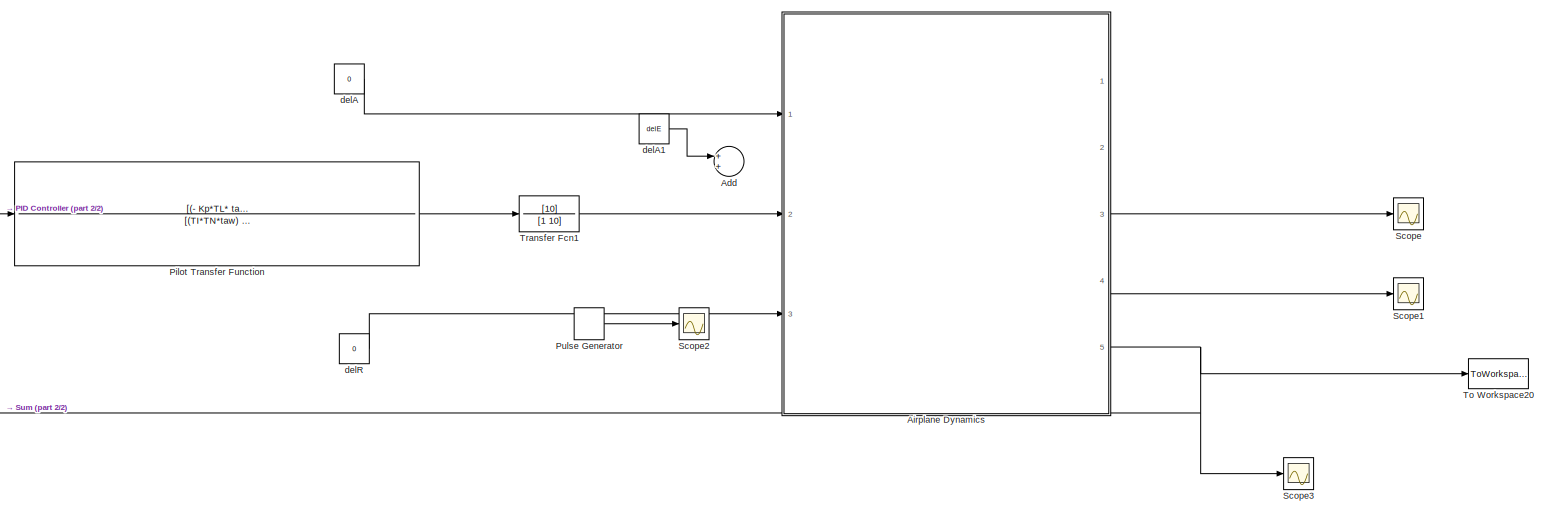
[diagram: root canvas - part 1/2, most of the canvas]
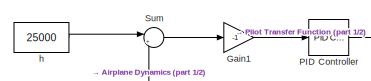
[diagram: root canvas - part 2/2, middle left region]
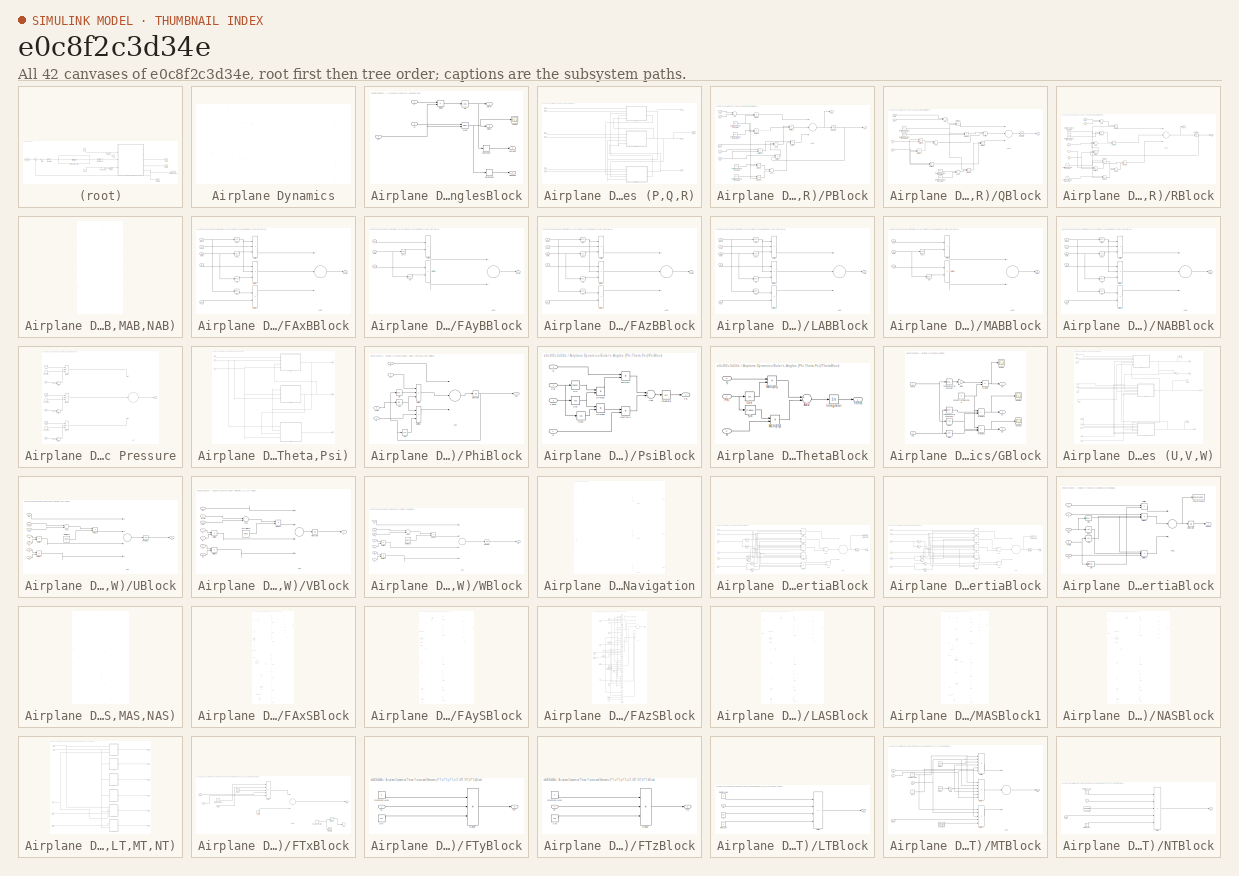
[diagram: thumbnail index - all 42 canvases of the model, root first then tree order]
MODEL slx_e0c8f2c3d34e
KIND model
CONFIG AbsTol = auto
CONFIG EnableMultiTasking = off
CONFIG FixedStep = 0.01
CONFIG InitFcn = Initial_Data_Altitude_Hold
CONFIG MaxStep = auto
CONFIG MinStep = auto
CONFIG RelTol = 1e-3
CONFIG SampleTimeConstraint = Unconstrained
CONFIG Solver = FixedStepAuto
CONFIG SolverName = FixedStepAuto
CONFIG StartTime = 0.0
CONFIG StopFcn = Plots_Altitude_Hold
CONFIG StopTime = 2144
BLOCK [Sum] Add
  InputSameDT = off
  OutDataTypeStr = Inherit: Inherit via internal rule
  Ports = [2, 1]
  SaturateOnIntegerOverflow = off
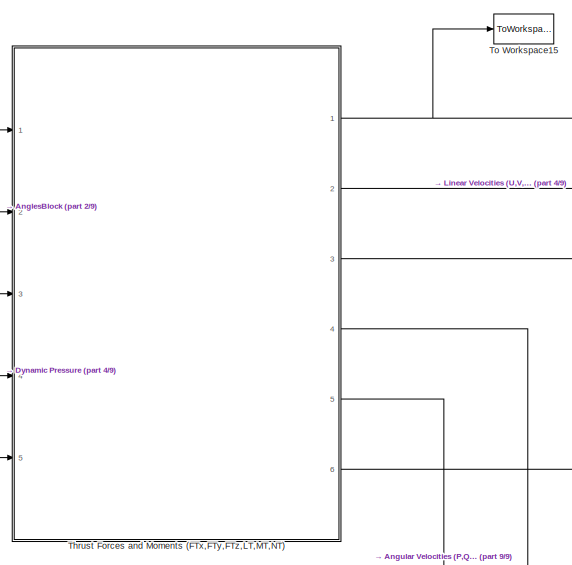
[diagram: Airplane Dynamics - part 1/9, top left region]
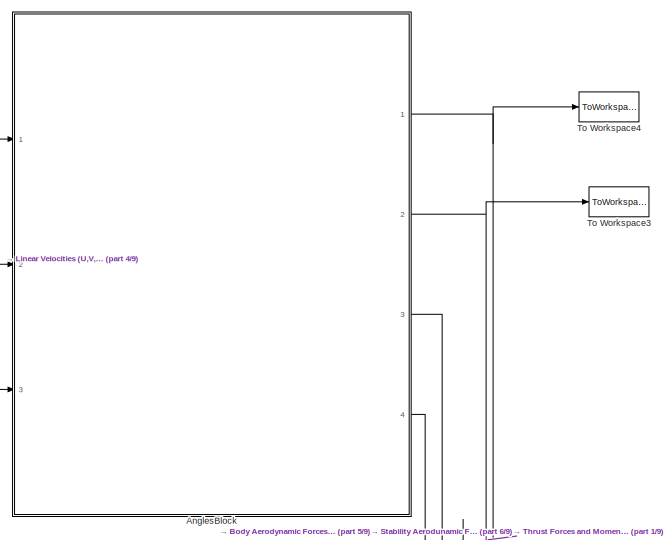
[diagram: Airplane Dynamics - part 2/9, top left region]
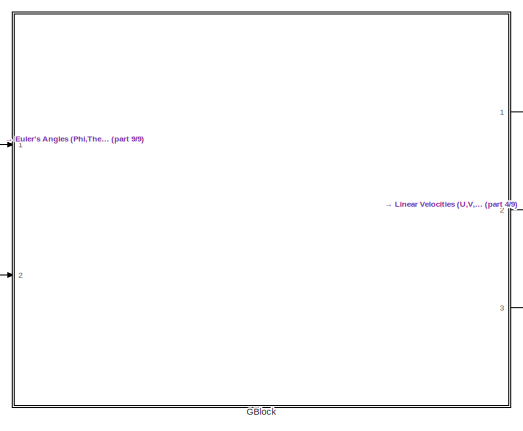
[diagram: Airplane Dynamics - part 3/9, top right region]
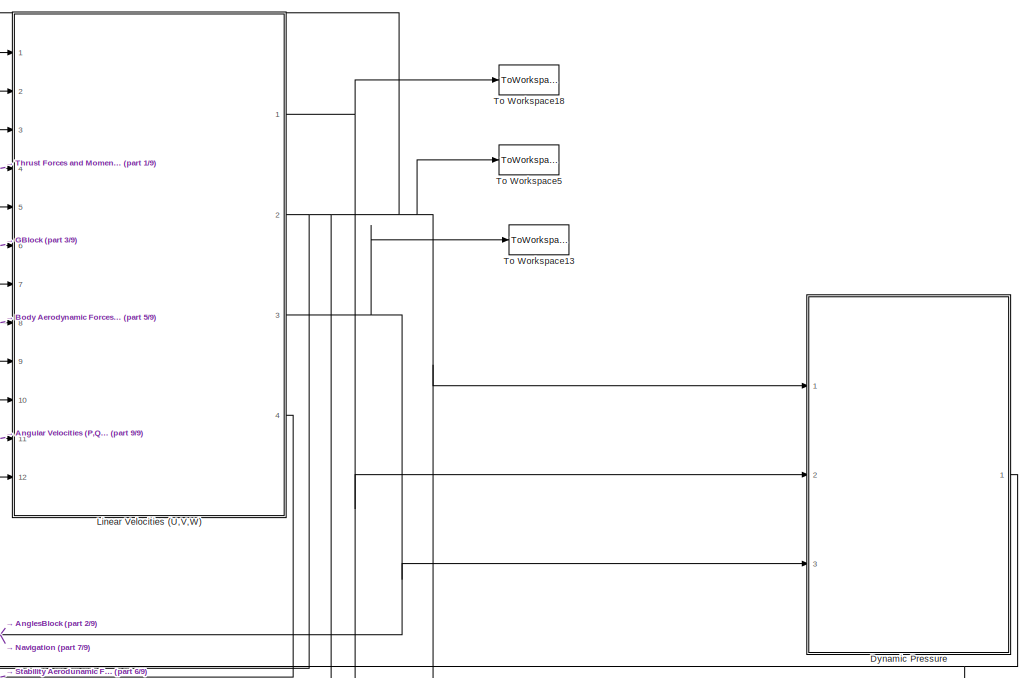
[diagram: Airplane Dynamics - part 4/9, top right region]
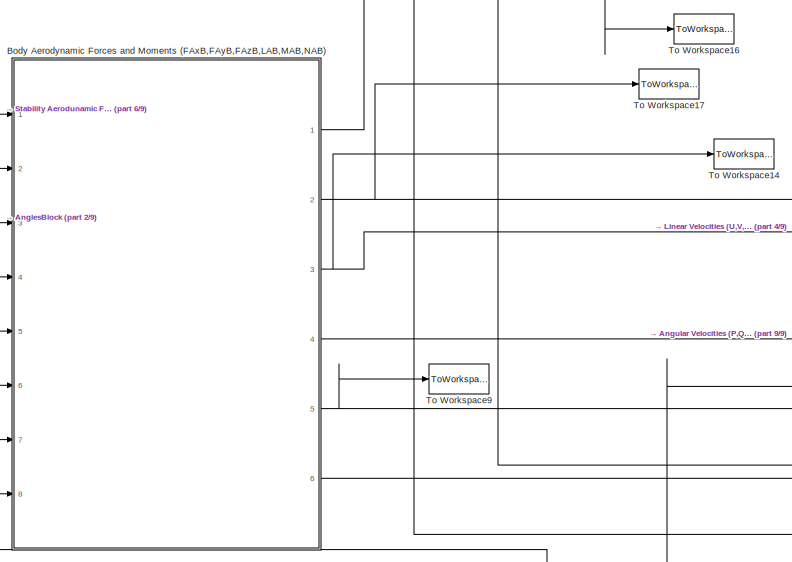
[diagram: Airplane Dynamics - part 5/9, top left region]
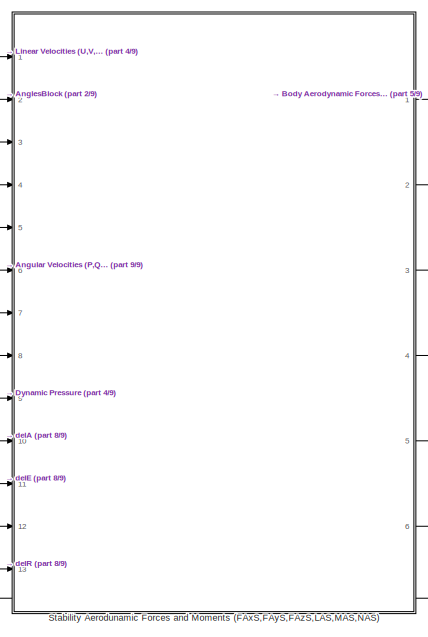
[diagram: Airplane Dynamics - part 6/9, middle left region]
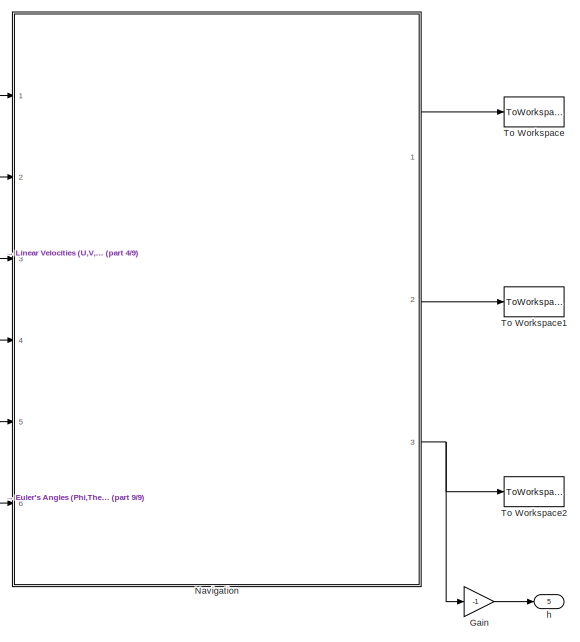
[diagram: Airplane Dynamics - part 7/9, middle right region]
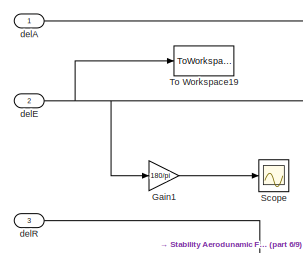
[diagram: Airplane Dynamics - part 8/9, middle left region]
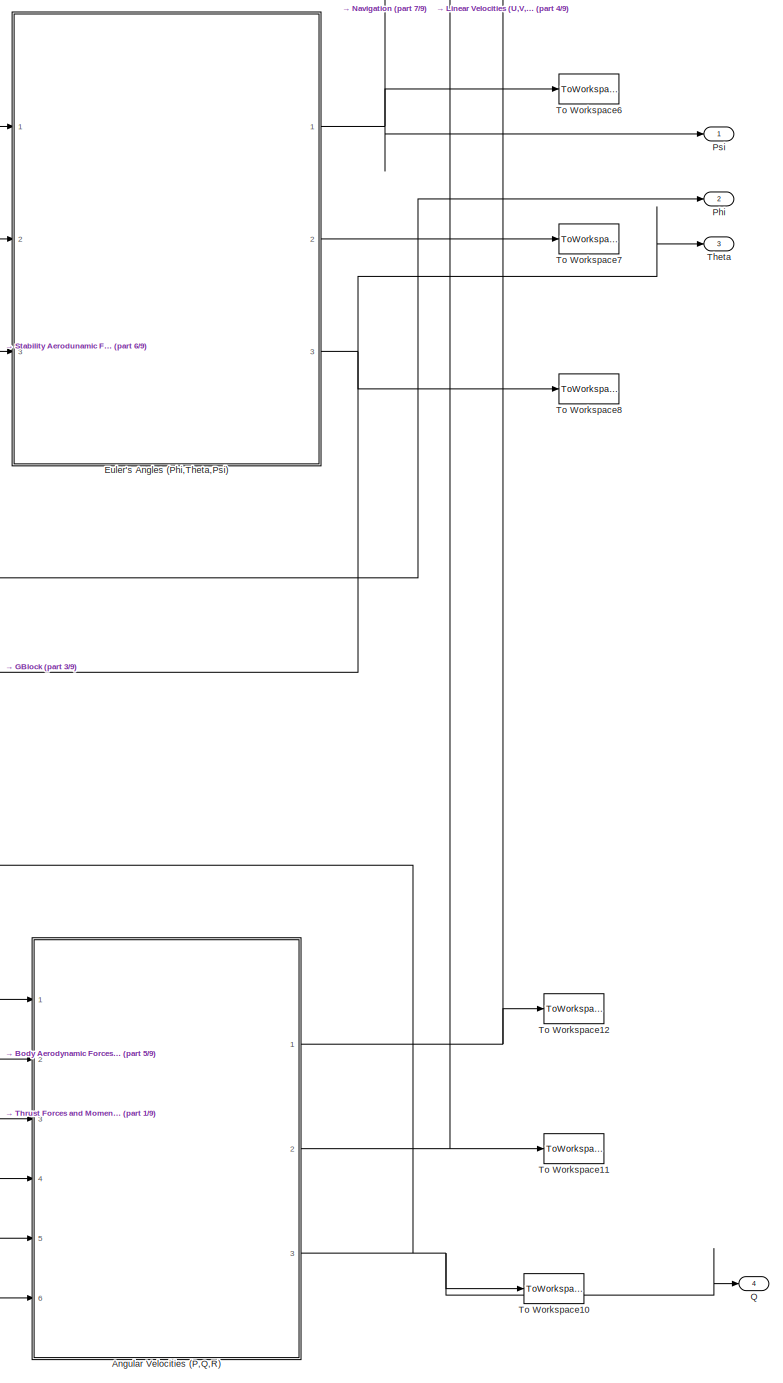
[diagram: Airplane Dynamics - part 9/9, bottom right region]
BLOCK [SubSystem] Airplane Dynamics
  Ports = [3, 5]
  RequestExecContextInheritance = off
BLOCK [SubSystem] Airplane Dynamics/AnglesBlock
  Ports = [3, 4]
  RequestExecContextInheritance = off
BLOCK [Trigonometry] Airplane Dynamics/AnglesBlock/Atan2
  Operator = atan2
  Ports = [2, 1]
BLOCK [Derivative] Airplane Dynamics/AnglesBlock/Derivative
BLOCK [Derivative] Airplane Dynamics/AnglesBlock/Derivative1
BLOCK [Product] Airplane Dynamics/AnglesBlock/Divide
  InputSameDT = off
  Inputs = */
  OutDataTypeStr = Inherit: Inherit via internal rule
  Ports = [2, 1]
  RndMeth = Floor
  SaturateOnIntegerOverflow = off
BLOCK [Scope] Airplane Dynamics/AnglesBlock/Scope
  Floating = off
  NumInputPorts = 1
  Ports = [1]
  ScopeSpecificationString = C++SS(StrPVP('Location','[188, 365, 512, 604]'),StrPVP('Open','off'),MxPVP('AxesTitles',53,'struct(''axes1'',''%<SignalLabel>'')'),StrPVP('ShowLegends','off'),StrPVP('LimitDataPoints','on'),StrPVP('DataFormat','Array'),StrPVP('Decimation','1'),StrPVP('BlockParamSampleInput','off'))  <repeated x9 — deduplicated; at blocks: Scope, Scope1, Scope2, Scope3>
BLOCK [Trigonometry] Airplane Dynamics/AnglesBlock/Sin
  Operator = asin
  Ports = [1, 1]
BLOCK [Inport] Airplane Dynamics/AnglesBlock/U
  IconDisplay = Port number
  Port = 3
BLOCK [Inport] Airplane Dynamics/AnglesBlock/V
  IconDisplay = Port number
BLOCK [Inport] Airplane Dynamics/AnglesBlock/W
  IconDisplay = Port number
  Port = 2
BLOCK [Outport] Airplane Dynamics/AnglesBlock/alpha
  IconDisplay = Port number
  Port = 2
BLOCK [Outport] Airplane Dynamics/AnglesBlock/alphadot
  IconDisplay = Port number
  Port = 4
BLOCK [Outport] Airplane Dynamics/AnglesBlock/beta 
  IconDisplay = Port number
BLOCK [Outport] Airplane Dynamics/AnglesBlock/betadot
  IconDisplay = Port number
  Port = 3
BLOCK [SubSystem] Airplane Dynamics/Angular Velocities (P,Q,R)
  Ports = [6, 3]
  RequestExecContextInheritance = off
BLOCK [Inport] Airplane Dynamics/Angular Velocities (P,Q,R)/LAB
  IconDisplay = Port number
  Port = 2
BLOCK [Inport] Airplane Dynamics/Angular Velocities (P,Q,R)/LT
  IconDisplay = Port number
BLOCK [Inport] Airplane Dynamics/Angular Velocities (P,Q,R)/MAB
  IconDisplay = Port number
  Port = 4
BLOCK [Inport] Airplane Dynamics/Angular Velocities (P,Q,R)/MT
  IconDisplay = Port number
  Port = 3
BLOCK [Inport] Airplane Dynamics/Angular Velocities (P,Q,R)/NAB
  IconDisplay = Port number
  Port = 6
BLOCK [Inport] Airplane Dynamics/Angular Velocities (P,Q,R)/NT
  IconDisplay = Port number
  Port = 5
BLOCK [Outport] Airplane Dynamics/Angular Velocities (P,Q,R)/P
  IconDisplay = Port number
BLOCK [SubSystem] Airplane Dynamics/Angular Velocities (P,Q,R)/PBlock
  Ports = [5, 2]
  RequestExecContextInheritance = off
BLOCK [Sum] Airplane Dynamics/Angular Velocities (P,Q,R)/PBlock/Add
  InputSameDT = off
  OutDataTypeStr = Inherit: Inherit via internal rule
  Ports = [2, 1]
  SaturateOnIntegerOverflow = off
BLOCK [Sum] Airplane Dynamics/Angular Velocities (P,Q,R)/PBlock/Add1
  InputSameDT = off
  OutDataTypeStr = Inherit: Inherit via internal rule
  Ports = [2, 1]
  SaturateOnIntegerOverflow = off
BLOCK [Sum] Airplane Dynamics/Angular Velocities (P,Q,R)/PBlock/Add2
  InputSameDT = off
  Inputs = +-
  OutDataTypeStr = Inherit: Inherit via internal rule
  Ports = [2, 1]
  SaturateOnIntegerOverflow = off
BLOCK [Sum] Airplane Dynamics/Angular Velocities (P,Q,R)/PBlock/Add3
  InputSameDT = off
  Inputs = ++-
  OutDataTypeStr = Inherit: Inherit via internal rule
  Ports = [3, 1]
  SaturateOnIntegerOverflow = off
BLOCK [Product] Airplane Dynamics/Angular Velocities (P,Q,R)/PBlock/Divide
  InputSameDT = off
  Inputs = */
  OutDataTypeStr = Inherit: Inherit via internal rule
  Ports = [2, 1]
  RndMeth = Floor
  SaturateOnIntegerOverflow = off
BLOCK [Product] Airplane Dynamics/Angular Velocities (P,Q,R)/PBlock/Divide1
  InputSameDT = off
  Inputs = */
  OutDataTypeStr = Inherit: Inherit via internal rule
  Ports = [2, 1]
  RndMeth = Floor
  SaturateOnIntegerOverflow = off
BLOCK [Product] Airplane Dynamics/Angular Velocities (P,Q,R)/PBlock/Divide2
  InputSameDT = off
  Inputs = */
  OutDataTypeStr = Inherit: Inherit via internal rule
  Ports = [2, 1]
  RndMeth = Floor
  SaturateOnIntegerOverflow = off
BLOCK [Product] Airplane Dynamics/Angular Velocities (P,Q,R)/PBlock/Divide3
  InputSameDT = off
  Inputs = */
  OutDataTypeStr = Inherit: Inherit via internal rule
  Ports = [2, 1]
  RndMeth = Floor
  SaturateOnIntegerOverflow = off
BLOCK [Constant] Airplane Dynamics/Angular Velocities (P,Q,R)/PBlock/Inertia Momentum about XB
  Value = Ixx
BLOCK [Constant] Airplane Dynamics/Angular Velocities (P,Q,R)/PBlock/Inertia Momentum about XZB
  Value = Ixz
BLOCK [Constant] Airplane Dynamics/Angular Velocities (P,Q,R)/PBlock/Inertia Momentum about YB
  Value = Iyy
BLOCK [Constant] Airplane Dynamics/Angular Velocities (P,Q,R)/PBlock/Inertia Momentum about ZB
  Value = Izz
BLOCK [Integrator] Airplane Dynamics/Angular Velocities (P,Q,R)/PBlock/Integrator
  Ports = [1, 1]
BLOCK [Inport] Airplane Dynamics/Angular Velocities (P,Q,R)/PBlock/LAB
  IconDisplay = Port number
BLOCK [Inport] Airplane Dynamics/Angular Velocities (P,Q,R)/PBlock/LT
  IconDisplay = Port number
  Port = 2
BLOCK [Product] Airplane Dynamics/Angular Velocities (P,Q,R)/PBlock/Multiply
  InputSameDT = off
  OutDataTypeStr = Inherit: Inherit via internal rule
  Ports = [2, 1]
  RndMeth = Floor
  SaturateOnIntegerOverflow = off
BLOCK [Product] Airplane Dynamics/Angular Velocities (P,Q,R)/PBlock/Multiply1
  InputSameDT = off
  OutDataTypeStr = Inherit: Inherit via internal rule
  Ports = [2, 1]
  RndMeth = Floor
  SaturateOnIntegerOverflow = off
BLOCK [Product] Airplane Dynamics/Angular Velocities (P,Q,R)/PBlock/Multiply2
  InputSameDT = off
  OutDataTypeStr = Inherit: Inherit via internal rule
  Ports = [2, 1]
  RndMeth = Floor
  SaturateOnIntegerOverflow = off
BLOCK [Product] Airplane Dynamics/Angular Velocities (P,Q,R)/PBlock/Multiply3
  InputSameDT = off
  OutDataTypeStr = Inherit: Inherit via internal rule
  Ports = [2, 1]
  RndMeth = Floor
  SaturateOnIntegerOverflow = off
BLOCK [Outport] Airplane Dynamics/Angular Velocities (P,Q,R)/PBlock/P
  IconDisplay = Port number
BLOCK [Outport] Airplane Dynamics/Angular Velocities (P,Q,R)/PBlock/Pdot
  IconDisplay = Port number
  Port = 2
BLOCK [Inport] Airplane Dynamics/Angular Velocities (P,Q,R)/PBlock/Q
  IconDisplay = Port number
  Port = 5
BLOCK [Inport] Airplane Dynamics/Angular Velocities (P,Q,R)/PBlock/R
  IconDisplay = Port number
  Port = 4
BLOCK [Inport] Airplane Dynamics/Angular Velocities (P,Q,R)/PBlock/Rdot
  IconDisplay = Port number
  Port = 3
BLOCK [Outport] Airplane Dynamics/Angular Velocities (P,Q,R)/Q
  IconDisplay = Port number
  Port = 3
BLOCK [SubSystem] Airplane Dynamics/Angular Velocities (P,Q,R)/QBlock
  Ports = [4, 1]
  RequestExecContextInheritance = off
BLOCK [Sum] Airplane Dynamics/Angular Velocities (P,Q,R)/QBlock/Add
  InputSameDT = off
  OutDataTypeStr = Inherit: Inherit via internal rule
  Ports = [2, 1]
  SaturateOnIntegerOverflow = off
BLOCK [Sum] Airplane Dynamics/Angular Velocities (P,Q,R)/QBlock/Add1
  InputSameDT = off
  Inputs = +-
  OutDataTypeStr = Inherit: Inherit via internal rule
  Ports = [2, 1]
  SaturateOnIntegerOverflow = off
BLOCK [Sum] Airplane Dynamics/Angular Velocities (P,Q,R)/QBlock/Add2
  InputSameDT = off
  Inputs = +-
  OutDataTypeStr = Inherit: Inherit via internal rule
  Ports = [2, 1]
  SaturateOnIntegerOverflow = off
BLOCK [Sum] Airplane Dynamics/Angular Velocities (P,Q,R)/QBlock/Add3
  InputSameDT = off
  Inputs = +--
  OutDataTypeStr = Inherit: Inherit via internal rule
  Ports = [3, 1]
  SaturateOnIntegerOverflow = off
BLOCK [Product] Airplane Dynamics/Angular Velocities (P,Q,R)/QBlock/Divide1
  InputSameDT = off
  Inputs = */
  OutDataTypeStr = Inherit: Inherit via internal rule
  Ports = [2, 1]
  RndMeth = Floor
  SaturateOnIntegerOverflow = off
BLOCK [Product] Airplane Dynamics/Angular Velocities (P,Q,R)/QBlock/Divide2
  InputSameDT = off
  Inputs = /*
  OutDataTypeStr = Inherit: Inherit via internal rule
  Ports = [2, 1]
  RndMeth = Floor
  SaturateOnIntegerOverflow = off
BLOCK [Product] Airplane Dynamics/Angular Velocities (P,Q,R)/QBlock/Divide3
  InputSameDT = off
  Inputs = /*
  OutDataTypeStr = Inherit: Inherit via internal rule
  Ports = [2, 1]
  RndMeth = Floor
  SaturateOnIntegerOverflow = off
BLOCK [Constant] Airplane Dynamics/Angular Velocities (P,Q,R)/QBlock/Inertia Momentum about XB
  Value = Ixx
BLOCK [Constant] Airplane Dynamics/Angular Velocities (P,Q,R)/QBlock/Inertia Momentum about XZB
  Value = Ixz
BLOCK [Constant] Airplane Dynamics/Angular Velocities (P,Q,R)/QBlock/Inertia Momentum about YB
  Value = Iyy
BLOCK [Constant] Airplane Dynamics/Angular Velocities (P,Q,R)/QBlock/Inertia Momentum about ZB
  Value = Izz
BLOCK [Integrator] Airplane Dynamics/Angular Velocities (P,Q,R)/QBlock/Integrator
  Ports = [1, 1]
BLOCK [Inport] Airplane Dynamics/Angular Velocities (P,Q,R)/QBlock/MAB
  IconDisplay = Port number
BLOCK [Inport] Airplane Dynamics/Angular Velocities (P,Q,R)/QBlock/MT
  IconDisplay = Port number
  Port = 2
BLOCK [Product] Airplane Dynamics/Angular Velocities (P,Q,R)/QBlock/Multiply
  InputSameDT = off
  OutDataTypeStr = Inherit: Inherit via internal rule
  Ports = [2, 1]
  RndMeth = Floor
  SaturateOnIntegerOverflow = off
BLOCK [Product] Airplane Dynamics/Angular Velocities (P,Q,R)/QBlock/Multiply1
  InputSameDT = off
  OutDataTypeStr = Inherit: Inherit via internal rule
  Ports = [2, 1]
  RndMeth = Floor
  SaturateOnIntegerOverflow = off
BLOCK [Product] Airplane Dynamics/Angular Velocities (P,Q,R)/QBlock/Multiply2
  InputSameDT = off
  OutDataTypeStr = Inherit: Inherit via internal rule
  Ports = [2, 1]
  RndMeth = Floor
  SaturateOnIntegerOverflow = off
BLOCK [Product] Airplane Dynamics/Angular Velocities (P,Q,R)/QBlock/Multiply3
  InputSameDT = off
  OutDataTypeStr = Inherit: Inherit via internal rule
  Ports = [2, 1]
  RndMeth = Floor
  SaturateOnIntegerOverflow = off
BLOCK [Product] Airplane Dynamics/Angular Velocities (P,Q,R)/QBlock/Multiply4
  InputSameDT = off
  OutDataTypeStr = Inherit: Inherit via internal rule
  Ports = [2, 1]
  RndMeth = Floor
  SaturateOnIntegerOverflow = off
BLOCK [Inport] Airplane Dynamics/Angular Velocities (P,Q,R)/QBlock/P
  IconDisplay = Port number
  Port = 3
BLOCK [Outport] Airplane Dynamics/Angular Velocities (P,Q,R)/QBlock/Q
  IconDisplay = Port number
BLOCK [Inport] Airplane Dynamics/Angular Velocities (P,Q,R)/QBlock/R
  IconDisplay = Port number
  Port = 4
BLOCK [Outport] Airplane Dynamics/Angular Velocities (P,Q,R)/R
  IconDisplay = Port number
  Port = 2
BLOCK [SubSystem] Airplane Dynamics/Angular Velocities (P,Q,R)/RBlock
  Ports = [5, 2]
  RequestExecContextInheritance = off
BLOCK [Sum] Airplane Dynamics/Angular Velocities (P,Q,R)/RBlock/Add
  InputSameDT = off
  OutDataTypeStr = Inherit: Inherit via internal rule
  Ports = [2, 1]
  SaturateOnIntegerOverflow = off
BLOCK [Sum] Airplane Dynamics/Angular Velocities (P,Q,R)/RBlock/Add1
  InputSameDT = off
  Inputs = +-
  OutDataTypeStr = Inherit: Inherit via internal rule
  Ports = [2, 1]
  SaturateOnIntegerOverflow = off
BLOCK [Sum] Airplane Dynamics/Angular Velocities (P,Q,R)/RBlock/Add2
  InputSameDT = off
  Inputs = +-
  OutDataTypeStr = Inherit: Inherit via internal rule
  Ports = [2, 1]
  SaturateOnIntegerOverflow = off
BLOCK [Sum] Airplane Dynamics/Angular Velocities (P,Q,R)/RBlock/Add3
  InputSameDT = off
  Inputs = +--
  OutDataTypeStr = Inherit: Inherit via internal rule
  Ports = [3, 1]
  SaturateOnIntegerOverflow = off
BLOCK [Product] Airplane Dynamics/Angular Velocities (P,Q,R)/RBlock/Divide
  InputSameDT = off
  Inputs = */
  OutDataTypeStr = Inherit: Inherit via internal rule
  Ports = [2, 1]
  RndMeth = Floor
  SaturateOnIntegerOverflow = off
BLOCK [Product] Airplane Dynamics/Angular Velocities (P,Q,R)/RBlock/Divide1
  InputSameDT = off
  Inputs = */
  OutDataTypeStr = Inherit: Inherit via internal rule
  Ports = [2, 1]
  RndMeth = Floor
  SaturateOnIntegerOverflow = off
BLOCK [Product] Airplane Dynamics/Angular Velocities (P,Q,R)/RBlock/Divide2
  InputSameDT = off
  Inputs = */
  OutDataTypeStr = Inherit: Inherit via internal rule
  Ports = [2, 1]
  RndMeth = Floor
  SaturateOnIntegerOverflow = off
BLOCK [Product] Airplane Dynamics/Angular Velocities (P,Q,R)/RBlock/Divide3
  InputSameDT = off
  Inputs = */
  OutDataTypeStr = Inherit: Inherit via internal rule
  Ports = [2, 1]
  RndMeth = Floor
  SaturateOnIntegerOverflow = off
BLOCK [Constant] Airplane Dynamics/Angular Velocities (P,Q,R)/RBlock/Inertia Momentum about XB
  Value = Ixx
BLOCK [Constant] Airplane Dynamics/Angular Velocities (P,Q,R)/RBlock/Inertia Momentum about XZB
  Value = Ixz
BLOCK [Constant] Airplane Dynamics/Angular Velocities (P,Q,R)/RBlock/Inertia Momentum about YB
  Value = Iyy
BLOCK [Constant] Airplane Dynamics/Angular Velocities (P,Q,R)/RBlock/Inertia Momentum about ZB
  Value = Izz
BLOCK [Integrator] Airplane Dynamics/Angular Velocities (P,Q,R)/RBlock/Integrator
  Ports = [1, 1]
BLOCK [Product] Airplane Dynamics/Angular Velocities (P,Q,R)/RBlock/Multiply
  InputSameDT = off
  OutDataTypeStr = Inherit: Inherit via internal rule
  Ports = [2, 1]
  RndMeth = Floor
  SaturateOnIntegerOverflow = off
BLOCK [Product] Airplane Dynamics/Angular Velocities (P,Q,R)/RBlock/Multiply1
  InputSameDT = off
  OutDataTypeStr = Inherit: Inherit via internal rule
  Ports = [2, 1]
  RndMeth = Floor
  SaturateOnIntegerOverflow = off
BLOCK [Product] Airplane Dynamics/Angular Velocities (P,Q,R)/RBlock/Multiply2
  InputSameDT = off
  OutDataTypeStr = Inherit: Inherit via internal rule
  Ports = [2, 1]
  RndMeth = Floor
  SaturateOnIntegerOverflow = off
BLOCK [Product] Airplane Dynamics/Angular Velocities (P,Q,R)/RBlock/Multiply3
  InputSameDT = off
  OutDataTypeStr = Inherit: Inherit via internal rule
  Ports = [2, 1]
  RndMeth = Floor
  SaturateOnIntegerOverflow = off
BLOCK [Inport] Airplane Dynamics/Angular Velocities (P,Q,R)/RBlock/NAB
  IconDisplay = Port number
BLOCK [Inport] Airplane Dynamics/Angular Velocities (P,Q,R)/RBlock/NT
  IconDisplay = Port number
  Port = 2
BLOCK [Inport] Airplane Dynamics/Angular Velocities (P,Q,R)/RBlock/P
  IconDisplay = Port number
  Port = 5
BLOCK [Inport] Airplane Dynamics/Angular Velocities (P,Q,R)/RBlock/Pdot
  IconDisplay = Port number
  Port = 3
BLOCK [Inport] Airplane Dynamics/Angular Velocities (P,Q,R)/RBlock/Q
  IconDisplay = Port number
  Port = 4
BLOCK [Outport] Airplane Dynamics/Angular Velocities (P,Q,R)/RBlock/R
  IconDisplay = Port number
BLOCK [Outport] Airplane Dynamics/Angular Velocities (P,Q,R)/RBlock/Rdot 
  IconDisplay = Port number
  Port = 2
BLOCK [Scope] Airplane Dynamics/Angular Velocities (P,Q,R)/Scope
  Floating = off
  NumInputPorts = 1
  Ports = [1]
BLOCK [SubSystem] Airplane Dynamics/Body Aerodynamic Forces and Moments (FAxB,FAyB,FAzB,LAB,MAB,NAB)
  Ports = [8, 6]
  RequestExecContextInheritance = off
BLOCK [Outport] Airplane Dynamics/Body Aerodynamic Forces and Moments (FAxB,FAyB,FAzB,LAB,MAB,NAB)/FAxB
  IconDisplay = Port number
BLOCK [SubSystem] Airplane Dynamics/Body Aerodynamic Forces and Moments (FAxB,FAyB,FAzB,LAB,MAB,NAB)/FAxBBlock
  Ports = [5, 1]
  RequestExecContextInheritance = off
BLOCK [Sum] Airplane Dynamics/Body Aerodynamic Forces and Moments (FAxB,FAyB,FAzB,LAB,MAB,NAB)/FAxBBlock/Add1
  InputSameDT = off
  Inputs = +--
  OutDataTypeStr = Inherit: Inherit via internal rule
  Ports = [3, 1]
  SaturateOnIntegerOverflow = off
BLOCK [Trigonometry] Airplane Dynamics/Body Aerodynamic Forces and Moments (FAxB,FAyB,FAzB,LAB,MAB,NAB)/FAxBBlock/Cos
  Operator = cos
  Ports = [1, 1]
BLOCK [Trigonometry] Airplane Dynamics/Body Aerodynamic Forces and Moments (FAxB,FAyB,FAzB,LAB,MAB,NAB)/FAxBBlock/Cos1
  Operator = cos
  Ports = [1, 1]
BLOCK [Outport] Airplane Dynamics/Body Aerodynamic Forces and Moments (FAxB,FAyB,FAzB,LAB,MAB,NAB)/FAxBBlock/FAxB
  IconDisplay = Port number
BLOCK [Inport] Airplane Dynamics/Body Aerodynamic Forces and Moments (FAxB,FAyB,FAzB,LAB,MAB,NAB)/FAxBBlock/FAxS
  IconDisplay = Port number
BLOCK [Inport] Airplane Dynamics/Body Aerodynamic Forces and Moments (FAxB,FAyB,FAzB,LAB,MAB,NAB)/FAxBBlock/FAyS
  IconDisplay = Port number
  Port = 2
BLOCK [Inport] Airplane Dynamics/Body Aerodynamic Forces and Moments (FAxB,FAyB,FAzB,LAB,MAB,NAB)/FAxBBlock/FAzS
  IconDisplay = Port number
  Port = 3
BLOCK [Product] Airplane Dynamics/Body Aerodynamic Forces and Moments (FAxB,FAyB,FAzB,LAB,MAB,NAB)/FAxBBlock/Multiply
  InputSameDT = off
  Inputs = ***
  OutDataTypeStr = Inherit: Inherit via internal rule
  Ports = [3, 1]
  RndMeth = Floor
  SaturateOnIntegerOverflow = off
BLOCK [Product] Airplane Dynamics/Body Aerodynamic Forces and Moments (FAxB,FAyB,FAzB,LAB,MAB,NAB)/FAxBBlock/Multiply1
  InputSameDT = off
  Inputs = ***
  OutDataTypeStr = Inherit: Inherit via internal rule
  Ports = [3, 1]
  RndMeth = Floor
  SaturateOnIntegerOverflow = off
BLOCK [Product] Airplane Dynamics/Body Aerodynamic Forces and Moments (FAxB,FAyB,FAzB,LAB,MAB,NAB)/FAxBBlock/Multiply2
  InputSameDT = off
  Inputs = **
  OutDataTypeStr = Inherit: Inherit via internal rule
  Ports = [2, 1]
  RndMeth = Floor
  SaturateOnIntegerOverflow = off
BLOCK [Trigonometry] Airplane Dynamics/Body Aerodynamic Forces and Moments (FAxB,FAyB,FAzB,LAB,MAB,NAB)/FAxBBlock/Sin
  Ports = [1, 1]
BLOCK [Trigonometry] Airplane Dynamics/Body Aerodynamic Forces and Moments (FAxB,FAyB,FAzB,LAB,MAB,NAB)/FAxBBlock/Sin1
  Ports = [1, 1]
BLOCK [Inport] Airplane Dynamics/Body Aerodynamic Forces and Moments (FAxB,FAyB,FAzB,LAB,MAB,NAB)/FAxBBlock/alpha
  IconDisplay = Port number
  Port = 4
BLOCK [Inport] Airplane Dynamics/Body Aerodynamic Forces and Moments (FAxB,FAyB,FAzB,LAB,MAB,NAB)/FAxBBlock/beta
  IconDisplay = Port number
  Port = 5
BLOCK [Inport] Airplane Dynamics/Body Aerodynamic Forces and Moments (FAxB,FAyB,FAzB,LAB,MAB,NAB)/FAxS
  IconDisplay = Port number
BLOCK [Outport] Airplane Dynamics/Body Aerodynamic Forces and Moments (FAxB,FAyB,FAzB,LAB,MAB,NAB)/FAyB
  IconDisplay = Port number
  Port = 2
BLOCK [SubSystem] Airplane Dynamics/Body Aerodynamic Forces and Moments (FAxB,FAyB,FAzB,LAB,MAB,NAB)/FAyBBlock
  Ports = [3, 1]
  RequestExecContextInheritance = off
BLOCK [Sum] Airplane Dynamics/Body Aerodynamic Forces and Moments (FAxB,FAyB,FAzB,LAB,MAB,NAB)/FAyBBlock/Add1
  InputSameDT = off
  OutDataTypeStr = Inherit: Inherit via internal rule
  Ports = [2, 1]
  SaturateOnIntegerOverflow = off
BLOCK [Trigonometry] Airplane Dynamics/Body Aerodynamic Forces and Moments (FAxB,FAyB,FAzB,LAB,MAB,NAB)/FAyBBlock/Cos1
  Operator = cos
  Ports = [1, 1]
BLOCK [Inport] Airplane Dynamics/Body Aerodynamic Forces and Moments (FAxB,FAyB,FAzB,LAB,MAB,NAB)/FAyBBlock/FAxS
  IconDisplay = Port number
BLOCK [Outport] Airplane Dynamics/Body Aerodynamic Forces and Moments (FAxB,FAyB,FAzB,LAB,MAB,NAB)/FAyBBlock/FAyB
  IconDisplay = Port number
BLOCK [Inport] Airplane Dynamics/Body Aerodynamic Forces and Moments (FAxB,FAyB,FAzB,LAB,MAB,NAB)/FAyBBlock/FAyS
  IconDisplay = Port number
  Port = 2
BLOCK [Product] Airplane Dynamics/Body Aerodynamic Forces and Moments (FAxB,FAyB,FAzB,LAB,MAB,NAB)/FAyBBlock/Multiply
  InputSameDT = off
  Inputs = **
  OutDataTypeStr = Inherit: Inherit via internal rule
  Ports = [2, 1]
  RndMeth = Floor
  SaturateOnIntegerOverflow = off
BLOCK [Product] Airplane Dynamics/Body Aerodynamic Forces and Moments (FAxB,FAyB,FAzB,LAB,MAB,NAB)/FAyBBlock/Multiply1
  InputSameDT = off
  Inputs = **
  OutDataTypeStr = Inherit: Inherit via internal rule
  Ports = [2, 1]
  RndMeth = Floor
  SaturateOnIntegerOverflow = off
BLOCK [Trigonometry] Airplane Dynamics/Body Aerodynamic Forces and Moments (FAxB,FAyB,FAzB,LAB,MAB,NAB)/FAyBBlock/Sin
  Ports = [1, 1]
BLOCK [Inport] Airplane Dynamics/Body Aerodynamic Forces and Moments (FAxB,FAyB,FAzB,LAB,MAB,NAB)/FAyBBlock/beta
  IconDisplay = Port number
  Port = 3
BLOCK [Inport] Airplane Dynamics/Body Aerodynamic Forces and Moments (FAxB,FAyB,FAzB,LAB,MAB,NAB)/FAyS
  IconDisplay = Port number
  Port = 2
BLOCK [Outport] Airplane Dynamics/Body Aerodynamic Forces and Moments (FAxB,FAyB,FAzB,LAB,MAB,NAB)/FAzB
  IconDisplay = Port number
  Port = 3
BLOCK [SubSystem] Airplane Dynamics/Body Aerodynamic Forces and Moments (FAxB,FAyB,FAzB,LAB,MAB,NAB)/FAzBBlock
  Ports = [5, 1]
  RequestExecContextInheritance = off
BLOCK [Sum] Airplane Dynamics/Body Aerodynamic Forces and Moments (FAxB,FAyB,FAzB,LAB,MAB,NAB)/FAzBBlock/Add1
  InputSameDT = off
  Inputs = +-+
  OutDataTypeStr = Inherit: Inherit via internal rule
  Ports = [3, 1]
  SaturateOnIntegerOverflow = off
BLOCK [Trigonometry] Airplane Dynamics/Body Aerodynamic Forces and Moments (FAxB,FAyB,FAzB,LAB,MAB,NAB)/FAzBBlock/Cos
  Operator = cos
  Ports = [1, 1]
BLOCK [Trigonometry] Airplane Dynamics/Body Aerodynamic Forces and Moments (FAxB,FAyB,FAzB,LAB,MAB,NAB)/FAzBBlock/Cos1
  Operator = cos
  Ports = [1, 1]
BLOCK [Inport] Airplane Dynamics/Body Aerodynamic Forces and Moments (FAxB,FAyB,FAzB,LAB,MAB,NAB)/FAzBBlock/FAxS
  IconDisplay = Port number
BLOCK [Inport] Airplane Dynamics/Body Aerodynamic Forces and Moments (FAxB,FAyB,FAzB,LAB,MAB,NAB)/FAzBBlock/FAyS
  IconDisplay = Port number
  Port = 2
BLOCK [Outport] Airplane Dynamics/Body Aerodynamic Forces and Moments (FAxB,FAyB,FAzB,LAB,MAB,NAB)/FAzBBlock/FAzB
  IconDisplay = Port number
BLOCK [Inport] Airplane Dynamics/Body Aerodynamic Forces and Moments (FAxB,FAyB,FAzB,LAB,MAB,NAB)/FAzBBlock/FAzS
  IconDisplay = Port number
  Port = 3
BLOCK [Product] Airplane Dynamics/Body Aerodynamic Forces and Moments (FAxB,FAyB,FAzB,LAB,MAB,NAB)/FAzBBlock/Multiply
  InputSameDT = off
  Inputs = ***
  OutDataTypeStr = Inherit: Inherit via internal rule
  Ports = [3, 1]
  RndMeth = Floor
  SaturateOnIntegerOverflow = off
BLOCK [Product] Airplane Dynamics/Body Aerodynamic Forces and Moments (FAxB,FAyB,FAzB,LAB,MAB,NAB)/FAzBBlock/Multiply1
  InputSameDT = off
  Inputs = ***
  OutDataTypeStr = Inherit: Inherit via internal rule
  Ports = [3, 1]
  RndMeth = Floor
  SaturateOnIntegerOverflow = off
BLOCK [Product] Airplane Dynamics/Body Aerodynamic Forces and Moments (FAxB,FAyB,FAzB,LAB,MAB,NAB)/FAzBBlock/Multiply2
  InputSameDT = off
  Inputs = **
  OutDataTypeStr = Inherit: Inherit via internal rule
  Ports = [2, 1]
  RndMeth = Floor
  SaturateOnIntegerOverflow = off
BLOCK [Trigonometry] Airplane Dynamics/Body Aerodynamic Forces and Moments (FAxB,FAyB,FAzB,LAB,MAB,NAB)/FAzBBlock/Sin
  Ports = [1, 1]
BLOCK [Trigonometry] Airplane Dynamics/Body Aerodynamic Forces and Moments (FAxB,FAyB,FAzB,LAB,MAB,NAB)/FAzBBlock/Sin2
  Ports = [1, 1]
BLOCK [Inport] Airplane Dynamics/Body Aerodynamic Forces and Moments (FAxB,FAyB,FAzB,LAB,MAB,NAB)/FAzBBlock/alpha
  IconDisplay = Port number
  Port = 4
BLOCK [Inport] Airplane Dynamics/Body Aerodynamic Forces and Moments (FAxB,FAyB,FAzB,LAB,MAB,NAB)/FAzBBlock/beta
  IconDisplay = Port number
  Port = 5
BLOCK [Inport] Airplane Dynamics/Body Aerodynamic Forces and Moments (FAxB,FAyB,FAzB,LAB,MAB,NAB)/FAzS
  IconDisplay = Port number
  Port = 5
BLOCK [Outport] Airplane Dynamics/Body Aerodynamic Forces and Moments (FAxB,FAyB,FAzB,LAB,MAB,NAB)/LAB
  IconDisplay = Port number
  Port = 4
BLOCK [SubSystem] Airplane Dynamics/Body Aerodynamic Forces and Moments (FAxB,FAyB,FAzB,LAB,MAB,NAB)/LABBlock
  Ports = [5, 1]
  RequestExecContextInheritance = off
BLOCK [Sum] Airplane Dynamics/Body Aerodynamic Forces and Moments (FAxB,FAyB,FAzB,LAB,MAB,NAB)/LABBlock/Add1
  InputSameDT = off
  Inputs = +--
  OutDataTypeStr = Inherit: Inherit via internal rule
  Ports = [3, 1]
  SaturateOnIntegerOverflow = off
BLOCK [Trigonometry] Airplane Dynamics/Body Aerodynamic Forces and Moments (FAxB,FAyB,FAzB,LAB,MAB,NAB)/LABBlock/Cos
  Operator = cos
  Ports = [1, 1]
BLOCK [Trigonometry] Airplane Dynamics/Body Aerodynamic Forces and Moments (FAxB,FAyB,FAzB,LAB,MAB,NAB)/LABBlock/Cos1
  Operator = cos
  Ports = [1, 1]
BLOCK [Outport] Airplane Dynamics/Body Aerodynamic Forces and Moments (FAxB,FAyB,FAzB,LAB,MAB,NAB)/LABBlock/LAB
  IconDisplay = Port number
BLOCK [Inport] Airplane Dynamics/Body Aerodynamic Forces and Moments (FAxB,FAyB,FAzB,LAB,MAB,NAB)/LABBlock/LAS
  IconDisplay = Port number
BLOCK [Inport] Airplane Dynamics/Body Aerodynamic Forces and Moments (FAxB,FAyB,FAzB,LAB,MAB,NAB)/LABBlock/MAS
  IconDisplay = Port number
  Port = 2
BLOCK [Product] Airplane Dynamics/Body Aerodynamic Forces and Moments (FAxB,FAyB,FAzB,LAB,MAB,NAB)/LABBlock/Multiply
  InputSameDT = off
  Inputs = ***
  OutDataTypeStr = Inherit: Inherit via internal rule
  Ports = [3, 1]
  RndMeth = Floor
  SaturateOnIntegerOverflow = off
BLOCK [Product] Airplane Dynamics/Body Aerodynamic Forces and Moments (FAxB,FAyB,FAzB,LAB,MAB,NAB)/LABBlock/Multiply1
  InputSameDT = off
  Inputs = ***
  OutDataTypeStr = Inherit: Inherit via internal rule
  Ports = [3, 1]
  RndMeth = Floor
  SaturateOnIntegerOverflow = off
BLOCK [Product] Airplane Dynamics/Body Aerodynamic Forces and Moments (FAxB,FAyB,FAzB,LAB,MAB,NAB)/LABBlock/Multiply2
  InputSameDT = off
  Inputs = **
  OutDataTypeStr = Inherit: Inherit via internal rule
  Ports = [2, 1]
  RndMeth = Floor
  SaturateOnIntegerOverflow = off
BLOCK [Inport] Airplane Dynamics/Body Aerodynamic Forces and Moments (FAxB,FAyB,FAzB,LAB,MAB,NAB)/LABBlock/NAS
  IconDisplay = Port number
  Port = 3
BLOCK [Trigonometry] Airplane Dynamics/Body Aerodynamic Forces and Moments (FAxB,FAyB,FAzB,LAB,MAB,NAB)/LABBlock/Sin
  Ports = [1, 1]
BLOCK [Trigonometry] Airplane Dynamics/Body Aerodynamic Forces and Moments (FAxB,FAyB,FAzB,LAB,MAB,NAB)/LABBlock/Sin1
  Ports = [1, 1]
BLOCK [Inport] Airplane Dynamics/Body Aerodynamic Forces and Moments (FAxB,FAyB,FAzB,LAB,MAB,NAB)/LABBlock/alpha
  IconDisplay = Port number
  Port = 4
BLOCK [Inport] Airplane Dynamics/Body Aerodynamic Forces and Moments (FAxB,FAyB,FAzB,LAB,MAB,NAB)/LABBlock/beta
  IconDisplay = Port number
  Port = 5
BLOCK [Inport] Airplane Dynamics/Body Aerodynamic Forces and Moments (FAxB,FAyB,FAzB,LAB,MAB,NAB)/LAS
  IconDisplay = Port number
  Port = 6
BLOCK [Outport] Airplane Dynamics/Body Aerodynamic Forces and Moments (FAxB,FAyB,FAzB,LAB,MAB,NAB)/MAB
  IconDisplay = Port number
  Port = 5
BLOCK [SubSystem] Airplane Dynamics/Body Aerodynamic Forces and Moments (FAxB,FAyB,FAzB,LAB,MAB,NAB)/MABBlock
  Ports = [3, 1]
  RequestExecContextInheritance = off
BLOCK [Sum] Airplane Dynamics/Body Aerodynamic Forces and Moments (FAxB,FAyB,FAzB,LAB,MAB,NAB)/MABBlock/Add1
  InputSameDT = off
  OutDataTypeStr = Inherit: Inherit via internal rule
  Ports = [2, 1]
  SaturateOnIntegerOverflow = off
BLOCK [Trigonometry] Airplane Dynamics/Body Aerodynamic Forces and Moments (FAxB,FAyB,FAzB,LAB,MAB,NAB)/MABBlock/Cos1
  Operator = cos
  Ports = [1, 1]
BLOCK [Inport] Airplane Dynamics/Body Aerodynamic Forces and Moments (FAxB,FAyB,FAzB,LAB,MAB,NAB)/MABBlock/LAS
  IconDisplay = Port number
BLOCK [Outport] Airplane Dynamics/Body Aerodynamic Forces and Moments (FAxB,FAyB,FAzB,LAB,MAB,NAB)/MABBlock/MAB
  IconDisplay = Port number
BLOCK [Inport] Airplane Dynamics/Body Aerodynamic Forces and Moments (FAxB,FAyB,FAzB,LAB,MAB,NAB)/MABBlock/MAS
  IconDisplay = Port number
  Port = 2
BLOCK [Product] Airplane Dynamics/Body Aerodynamic Forces and Moments (FAxB,FAyB,FAzB,LAB,MAB,NAB)/MABBlock/Multiply
  InputSameDT = off
  Inputs = **
  OutDataTypeStr = Inherit: Inherit via internal rule
  Ports = [2, 1]
  RndMeth = Floor
  SaturateOnIntegerOverflow = off
BLOCK [Product] Airplane Dynamics/Body Aerodynamic Forces and Moments (FAxB,FAyB,FAzB,LAB,MAB,NAB)/MABBlock/Multiply1
  InputSameDT = off
  Inputs = **
  OutDataTypeStr = Inherit: Inherit via internal rule
  Ports = [2, 1]
  RndMeth = Floor
  SaturateOnIntegerOverflow = off
BLOCK [Trigonometry] Airplane Dynamics/Body Aerodynamic Forces and Moments (FAxB,FAyB,FAzB,LAB,MAB,NAB)/MABBlock/Sin
  Ports = [1, 1]
BLOCK [Inport] Airplane Dynamics/Body Aerodynamic Forces and Moments (FAxB,FAyB,FAzB,LAB,MAB,NAB)/MABBlock/beta
  IconDisplay = Port number
  Port = 3
BLOCK [Inport] Airplane Dynamics/Body Aerodynamic Forces and Moments (FAxB,FAyB,FAzB,LAB,MAB,NAB)/MAS
  IconDisplay = Port number
  Port = 7
BLOCK [Outport] Airplane Dynamics/Body Aerodynamic Forces and Moments (FAxB,FAyB,FAzB,LAB,MAB,NAB)/NAB
  IconDisplay = Port number
  Port = 6
BLOCK [SubSystem] Airplane Dynamics/Body Aerodynamic Forces and Moments (FAxB,FAyB,FAzB,LAB,MAB,NAB)/NABBlock
  Ports = [5, 1]
  RequestExecContextInheritance = off
BLOCK [Sum] Airplane Dynamics/Body Aerodynamic Forces and Moments (FAxB,FAyB,FAzB,LAB,MAB,NAB)/NABBlock/Add1
  InputSameDT = off
  Inputs = +-+
  OutDataTypeStr = Inherit: Inherit via internal rule
  Ports = [3, 1]
  SaturateOnIntegerOverflow = off
BLOCK [Trigonometry] Airplane Dynamics/Body Aerodynamic Forces and Moments (FAxB,FAyB,FAzB,LAB,MAB,NAB)/NABBlock/Cos
  Operator = cos
  Ports = [1, 1]
BLOCK [Trigonometry] Airplane Dynamics/Body Aerodynamic Forces and Moments (FAxB,FAyB,FAzB,LAB,MAB,NAB)/NABBlock/Cos1
  Operator = cos
  Ports = [1, 1]
BLOCK [Inport] Airplane Dynamics/Body Aerodynamic Forces and Moments (FAxB,FAyB,FAzB,LAB,MAB,NAB)/NABBlock/LAS
  IconDisplay = Port number
BLOCK [Inport] Airplane Dynamics/Body Aerodynamic Forces and Moments (FAxB,FAyB,FAzB,LAB,MAB,NAB)/NABBlock/MAS
  IconDisplay = Port number
  Port = 2
BLOCK [Product] Airplane Dynamics/Body Aerodynamic Forces and Moments (FAxB,FAyB,FAzB,LAB,MAB,NAB)/NABBlock/Multiply
  InputSameDT = off
  Inputs = ***
  OutDataTypeStr = Inherit: Inherit via internal rule
  Ports = [3, 1]
  RndMeth = Floor
  SaturateOnIntegerOverflow = off
BLOCK [Product] Airplane Dynamics/Body Aerodynamic Forces and Moments (FAxB,FAyB,FAzB,LAB,MAB,NAB)/NABBlock/Multiply1
  InputSameDT = off
  Inputs = ***
  OutDataTypeStr = Inherit: Inherit via internal rule
  Ports = [3, 1]
  RndMeth = Floor
  SaturateOnIntegerOverflow = off
BLOCK [Product] Airplane Dynamics/Body Aerodynamic Forces and Moments (FAxB,FAyB,FAzB,LAB,MAB,NAB)/NABBlock/Multiply2
  InputSameDT = off
  Inputs = **
  OutDataTypeStr = Inherit: Inherit via internal rule
  Ports = [2, 1]
  RndMeth = Floor
  SaturateOnIntegerOverflow = off
BLOCK [Outport] Airplane Dynamics/Body Aerodynamic Forces and Moments (FAxB,FAyB,FAzB,LAB,MAB,NAB)/NABBlock/NAB
  IconDisplay = Port number
BLOCK [Inport] Airplane Dynamics/Body Aerodynamic Forces and Moments (FAxB,FAyB,FAzB,LAB,MAB,NAB)/NABBlock/NAS
  IconDisplay = Port number
  Port = 3
BLOCK [Trigonometry] Airplane Dynamics/Body Aerodynamic Forces and Moments (FAxB,FAyB,FAzB,LAB,MAB,NAB)/NABBlock/Sin
  Ports = [1, 1]
BLOCK [Trigonometry] Airplane Dynamics/Body Aerodynamic Forces and Moments (FAxB,FAyB,FAzB,LAB,MAB,NAB)/NABBlock/Sin2
  Ports = [1, 1]
BLOCK [Inport] Airplane Dynamics/Body Aerodynamic Forces and Moments (FAxB,FAyB,FAzB,LAB,MAB,NAB)/NABBlock/alpha
  IconDisplay = Port number
  Port = 4
BLOCK [Inport] Airplane Dynamics/Body Aerodynamic Forces and Moments (FAxB,FAyB,FAzB,LAB,MAB,NAB)/NABBlock/beta
  IconDisplay = Port number
  Port = 5
BLOCK [Inport] Airplane Dynamics/Body Aerodynamic Forces and Moments (FAxB,FAyB,FAzB,LAB,MAB,NAB)/NAS
  IconDisplay = Port number
  Port = 8
BLOCK [Inport] Airplane Dynamics/Body Aerodynamic Forces and Moments (FAxB,FAyB,FAzB,LAB,MAB,NAB)/alpha
  IconDisplay = Port number
  Port = 3
BLOCK [Inport] Airplane Dynamics/Body Aerodynamic Forces and Moments (FAxB,FAyB,FAzB,LAB,MAB,NAB)/beta
  IconDisplay = Port number
  Port = 4
BLOCK [SubSystem] Airplane Dynamics/Dynamic Pressure
  Ports = [3, 1]
  RequestExecContextInheritance = off
BLOCK [Sum] Airplane Dynamics/Dynamic Pressure/Add
  InputSameDT = off
  Inputs = +++
  OutDataTypeStr = Inherit: Inherit via internal rule
  Ports = [3, 1]
  SaturateOnIntegerOverflow = off
BLOCK [Constant] Airplane Dynamics/Dynamic Pressure/Constant
  Value = 2
BLOCK [Constant] Airplane Dynamics/Dynamic Pressure/Constant1
  Value = 2
BLOCK [Constant] Airplane Dynamics/Dynamic Pressure/Constant2
  Value = 2
BLOCK [Product] Airplane Dynamics/Dynamic Pressure/Divide
  InputSameDT = off
  Inputs = **/
  OutDataTypeStr = Inherit: Inherit via internal rule
  Ports = [3, 1]
  RndMeth = Floor
  SaturateOnIntegerOverflow = off
BLOCK [Product] Airplane Dynamics/Dynamic Pressure/Divide1
  InputSameDT = off
  Inputs = **/
  OutDataTypeStr = Inherit: Inherit via internal rule
  Ports = [3, 1]
  RndMeth = Floor
  SaturateOnIntegerOverflow = off
BLOCK [Product] Airplane Dynamics/Dynamic Pressure/Divide2
  InputSameDT = off
  Inputs = **/
  OutDataTypeStr = Inherit: Inherit via internal rule
  Ports = [3, 1]
  RndMeth = Floor
  SaturateOnIntegerOverflow = off
BLOCK [Product] Airplane Dynamics/Dynamic Pressure/Multiply
  InputSameDT = off
  OutDataTypeStr = Inherit: Inherit via internal rule
  Ports = [2, 1]
  RndMeth = Floor
  SaturateOnIntegerOverflow = off
BLOCK [Product] Airplane Dynamics/Dynamic Pressure/Multiply1
  InputSameDT = off
  OutDataTypeStr = Inherit: Inherit via internal rule
  Ports = [2, 1]
  RndMeth = Floor
  SaturateOnIntegerOverflow = off
BLOCK [Product] Airplane Dynamics/Dynamic Pressure/Multiply2
  InputSameDT = off
  OutDataTypeStr = Inherit: Inherit via internal rule
  Ports = [2, 1]
  RndMeth = Floor
  SaturateOnIntegerOverflow = off
BLOCK [Constant] Airplane Dynamics/Dynamic Pressure/Ro
  Value = Ro
BLOCK [Constant] Airplane Dynamics/Dynamic Pressure/Ro1
  Value = Ro
BLOCK [Constant] Airplane Dynamics/Dynamic Pressure/Ro2
  Value = Ro
BLOCK [Inport] Airplane Dynamics/Dynamic Pressure/U
  IconDisplay = Port number
BLOCK [Inport] Airplane Dynamics/Dynamic Pressure/V
  IconDisplay = Port number
  Port = 2
BLOCK [Inport] Airplane Dynamics/Dynamic Pressure/W
  IconDisplay = Port number
  Port = 3
BLOCK [Outport] Airplane Dynamics/Dynamic Pressure/q1
  IconDisplay = Port number
BLOCK [SubSystem] Airplane Dynamics/Euler's Angles (Phi,Theta,Psi)
  Ports = [3, 3]
  RequestExecContextInheritance = off
BLOCK [Inport] Airplane Dynamics/Euler's Angles (Phi,Theta,Psi)/P
  IconDisplay = Port number
  Port = 3
BLOCK [Outport] Airplane Dynamics/Euler's Angles (Phi,Theta,Psi)/Phi
  IconDisplay = Port number
  Port = 2
BLOCK [SubSystem] Airplane Dynamics/Euler's Angles (Phi,Theta,Psi)/PhiBlock
  Ports = [4, 1]
  RequestExecContextInheritance = off
BLOCK [Sum] Airplane Dynamics/Euler's Angles (Phi,Theta,Psi)/PhiBlock/Add
  InputSameDT = off
  Inputs = +++
  OutDataTypeStr = Inherit: Inherit via internal rule
  Ports = [3, 1]
  SaturateOnIntegerOverflow = off
BLOCK [Trigonometry] Airplane Dynamics/Euler's Angles (Phi,Theta,Psi)/PhiBlock/Cos
  Operator = cos
  Ports = [1, 1]
BLOCK [Integrator] Airplane Dynamics/Euler's Angles (Phi,Theta,Psi)/PhiBlock/Integrator
  Ports = [1, 1]
BLOCK [Product] Airplane Dynamics/Euler's Angles (Phi,Theta,Psi)/PhiBlock/Multiply
  InputSameDT = off
  Inputs = 3
  OutDataTypeStr = Inherit: Inherit via internal rule
  Ports = [3, 1]
  RndMeth = Floor
  SaturateOnIntegerOverflow = off
BLOCK [Product] Airplane Dynamics/Euler's Angles (Phi,Theta,Psi)/PhiBlock/Multiply1
  InputSameDT = off
  Inputs = 3
  OutDataTypeStr = Inherit: Inherit via internal rule
  Ports = [3, 1]
  RndMeth = Floor
  SaturateOnIntegerOverflow = off
BLOCK [Inport] Airplane Dynamics/Euler's Angles (Phi,Theta,Psi)/PhiBlock/P
  IconDisplay = Port number
BLOCK [Outport] Airplane Dynamics/Euler's Angles (Phi,Theta,Psi)/PhiBlock/Phi
  IconDisplay = Port number
BLOCK [Inport] Airplane Dynamics/Euler's Angles (Phi,Theta,Psi)/PhiBlock/Q
  IconDisplay = Port number
  Port = 2
BLOCK [Inport] Airplane Dynamics/Euler's Angles (Phi,Theta,Psi)/PhiBlock/R
  IconDisplay = Port number
  Port = 4
BLOCK [Trigonometry] Airplane Dynamics/Euler's Angles (Phi,Theta,Psi)/PhiBlock/Sin
  Ports = [1, 1]
BLOCK [Trigonometry] Airplane Dynamics/Euler's Angles (Phi,Theta,Psi)/PhiBlock/Tan
  Operator = tan
  Ports = [1, 1]
BLOCK [Inport] Airplane Dynamics/Euler's Angles (Phi,Theta,Psi)/PhiBlock/Theta
  IconDisplay = Port number
  Port = 3
BLOCK [Outport] Airplane Dynamics/Euler's Angles (Phi,Theta,Psi)/Psi
  IconDisplay = Port number
BLOCK [SubSystem] Airplane Dynamics/Euler's Angles (Phi,Theta,Psi)/PsiBlock
  Ports = [4, 1]
  RequestExecContextInheritance = off
BLOCK [Sum] Airplane Dynamics/Euler's Angles (Phi,Theta,Psi)/PsiBlock/Add
  InputSameDT = off
  OutDataTypeStr = Inherit: Inherit via internal rule
  Ports = [2, 1]
  SaturateOnIntegerOverflow = off
BLOCK [Trigonometry] Airplane Dynamics/Euler's Angles (Phi,Theta,Psi)/PsiBlock/Cos
  Operator = cos
  Ports = [1, 1]
BLOCK [Trigonometry] Airplane Dynamics/Euler's Angles (Phi,Theta,Psi)/PsiBlock/Cos1
  Operator = cos
  Ports = [1, 1]
BLOCK [Product] Airplane Dynamics/Euler's Angles (Phi,Theta,Psi)/PsiBlock/Divide1
  InputSameDT = off
  Inputs = */
  OutDataTypeStr = Inherit: Inherit via internal rule
  Ports = [2, 1]
  RndMeth = Floor
  SaturateOnIntegerOverflow = off
BLOCK [Product] Airplane Dynamics/Euler's Angles (Phi,Theta,Psi)/PsiBlock/Divide2
  InputSameDT = off
  Inputs = /*
  OutDataTypeStr = Inherit: Inherit via internal rule
  Ports = [2, 1]
  RndMeth = Floor
  SaturateOnIntegerOverflow = off
BLOCK [Integrator] Airplane Dynamics/Euler's Angles (Phi,Theta,Psi)/PsiBlock/Integrator
  Ports = [1, 1]
BLOCK [Product] Airplane Dynamics/Euler's Angles (Phi,Theta,Psi)/PsiBlock/Multiply
  InputSameDT = off
  OutDataTypeStr = Inherit: Inherit via internal rule
  Ports = [2, 1]
  RndMeth = Floor
  SaturateOnIntegerOverflow = off
BLOCK [Product] Airplane Dynamics/Euler's Angles (Phi,Theta,Psi)/PsiBlock/Multiply1
  InputSameDT = off
  OutDataTypeStr = Inherit: Inherit via internal rule
  Ports = [2, 1]
  RndMeth = Floor
  SaturateOnIntegerOverflow = off
BLOCK [Inport] Airplane Dynamics/Euler's Angles (Phi,Theta,Psi)/PsiBlock/Phi 
  IconDisplay = Port number
  Port = 2
BLOCK [Outport] Airplane Dynamics/Euler's Angles (Phi,Theta,Psi)/PsiBlock/Psi
  IconDisplay = Port number
BLOCK [Inport] Airplane Dynamics/Euler's Angles (Phi,Theta,Psi)/PsiBlock/Q
  IconDisplay = Port number
BLOCK [Inport] Airplane Dynamics/Euler's Angles (Phi,Theta,Psi)/PsiBlock/R 
  IconDisplay = Port number
  Port = 4
BLOCK [Trigonometry] Airplane Dynamics/Euler's Angles (Phi,Theta,Psi)/PsiBlock/Sin
  Ports = [1, 1]
BLOCK [Inport] Airplane Dynamics/Euler's Angles (Phi,Theta,Psi)/PsiBlock/Theta 
  IconDisplay = Port number
  Port = 3
BLOCK [Inport] Airplane Dynamics/Euler's Angles (Phi,Theta,Psi)/Q
  IconDisplay = Port number
  Port = 2
BLOCK [Inport] Airplane Dynamics/Euler's Angles (Phi,Theta,Psi)/R
  IconDisplay = Port number
BLOCK [Outport] Airplane Dynamics/Euler's Angles (Phi,Theta,Psi)/Theta
  IconDisplay = Port number
  Port = 3
BLOCK [SubSystem] Airplane Dynamics/Euler's Angles (Phi,Theta,Psi)/ThetaBlock
  Ports = [3, 1]
  RequestExecContextInheritance = off
BLOCK [Sum] Airplane Dynamics/Euler's Angles (Phi,Theta,Psi)/ThetaBlock/Add
  InputSameDT = off
  Inputs = +-
  OutDataTypeStr = Inherit: Inherit via internal rule
  Ports = [2, 1]
  SaturateOnIntegerOverflow = off
BLOCK [Trigonometry] Airplane Dynamics/Euler's Angles (Phi,Theta,Psi)/ThetaBlock/Cos
  Operator = cos
  Ports = [1, 1]
BLOCK [Integrator] Airplane Dynamics/Euler's Angles (Phi,Theta,Psi)/ThetaBlock/Integrator
  Ports = [1, 1]
BLOCK [Product] Airplane Dynamics/Euler's Angles (Phi,Theta,Psi)/ThetaBlock/Multiply
  InputSameDT = off
  OutDataTypeStr = Inherit: Inherit via internal rule
  Ports = [2, 1]
  RndMeth = Floor
  SaturateOnIntegerOverflow = off
BLOCK [Product] Airplane Dynamics/Euler's Angles (Phi,Theta,Psi)/ThetaBlock/Multiply1
  InputSameDT = off
  OutDataTypeStr = Inherit: Inherit via internal rule
  Ports = [2, 1]
  RndMeth = Floor
  SaturateOnIntegerOverflow = off
BLOCK [Inport] Airplane Dynamics/Euler's Angles (Phi,Theta,Psi)/ThetaBlock/Phi
  IconDisplay = Port number
BLOCK [Inport] Airplane Dynamics/Euler's Angles (Phi,Theta,Psi)/ThetaBlock/Q
  IconDisplay = Port number
  Port = 3
BLOCK [Inport] Airplane Dynamics/Euler's Angles (Phi,Theta,Psi)/ThetaBlock/R
  IconDisplay = Port number
  Port = 2
BLOCK [Trigonometry] Airplane Dynamics/Euler's Angles (Phi,Theta,Psi)/ThetaBlock/Sin
  Ports = [1, 1]
BLOCK [Outport] Airplane Dynamics/Euler's Angles (Phi,Theta,Psi)/ThetaBlock/Theta
  IconDisplay = Port number
BLOCK [SubSystem] Airplane Dynamics/GBlock
  Ports = [2, 3]
  RequestExecContextInheritance = off
BLOCK [Trigonometry] Airplane Dynamics/GBlock/Cos
  Operator = cos
  Ports = [1, 1]
BLOCK [Trigonometry] Airplane Dynamics/GBlock/Cos1
  Operator = cos
  Ports = [1, 1]
BLOCK [Gain] Airplane Dynamics/GBlock/Gain
  Gain = -1
  OutDataTypeStr = Inherit: Inherit via internal rule
  ParamDataTypeStr = Inherit: Inherit via internal rule
  SaturateOnIntegerOverflow = off
BLOCK [Constant] Airplane Dynamics/GBlock/Gravityl Acceleration 
  Value = g
BLOCK [Product] Airplane Dynamics/GBlock/Multiply
  InputSameDT = off
  OutDataTypeStr = Inherit: Inherit via internal rule
  Ports = [2, 1]
  RndMeth = Floor
  SaturateOnIntegerOverflow = off
BLOCK [Product] Airplane Dynamics/GBlock/Multiply1
  InputSameDT = off
  Inputs = 3
  OutDataTypeStr = Inherit: Inherit via internal rule
  Ports = [3, 1]
  RndMeth = Floor
  SaturateOnIntegerOverflow = off
BLOCK [Product] Airplane Dynamics/GBlock/Multiply2
  InputSameDT = off
  Inputs = 3
  OutDataTypeStr = Inherit: Inherit via internal rule
  Ports = [3, 1]
  RndMeth = Floor
  SaturateOnIntegerOverflow = off
BLOCK [Inport] Airplane Dynamics/GBlock/Phi 
  IconDisplay = Port number
  Port = 2
BLOCK [Scope] Airplane Dynamics/GBlock/Scope
  Floating = off
  NumInputPorts = 1
  Ports = [1]
BLOCK [Scope] Airplane Dynamics/GBlock/Scope1
  Floating = off
  NumInputPorts = 1
  Ports = [1]
BLOCK [Scope] Airplane Dynamics/GBlock/Scope2
  Floating = off
  NumInputPorts = 1
  Ports = [1]
BLOCK [Inport] Airplane Dynamics/GBlock/Theta
  IconDisplay = Port number
BLOCK [Trigonometry] Airplane Dynamics/GBlock/Trigonometric Function
  Ports = [1, 1]
BLOCK [Trigonometry] Airplane Dynamics/GBlock/Trigonometric Function1
  Ports = [1, 1]
BLOCK [Outport] Airplane Dynamics/GBlock/gx
  IconDisplay = Port number
BLOCK [Outport] Airplane Dynamics/GBlock/gy
  IconDisplay = Port number
  Port = 2
BLOCK [Outport] Airplane Dynamics/GBlock/gz
  IconDisplay = Port number
  Port = 3
BLOCK [Gain] Airplane Dynamics/Gain
  Gain = -1
  OutDataTypeStr = Inherit: Inherit via internal rule
  ParamDataTypeStr = Inherit: Inherit via internal rule
  SaturateOnIntegerOverflow = off
BLOCK [Gain] Airplane Dynamics/Gain1
  Gain = 180/pi
  OutDataTypeStr = Inherit: Inherit via internal rule
  ParamDataTypeStr = Inherit: Inherit via internal rule
  SaturateOnIntegerOverflow = off
BLOCK [SubSystem] Airplane Dynamics/Linear Velocities (U,V,W)
  Ports = [12, 4]
  RequestExecContextInheritance = off
BLOCK [Sum] Airplane Dynamics/Linear Velocities (U,V,W)/Add
  InputSameDT = off
  Inputs = +-
  OutDataTypeStr = Inherit: Inherit via internal rule
  Ports = [2, 1]
  SaturateOnIntegerOverflow = off
BLOCK [Inport] Airplane Dynamics/Linear Velocities (U,V,W)/FAxB
  IconDisplay = Port number
BLOCK [Inport] Airplane Dynamics/Linear Velocities (U,V,W)/FAyB
  IconDisplay = Port number
  Port = 3
BLOCK [Inport] Airplane Dynamics/Linear Velocities (U,V,W)/FAzB
  IconDisplay = Port number
  Port = 8
BLOCK [Inport] Airplane Dynamics/Linear Velocities (U,V,W)/FTx
  IconDisplay = Port number
  Port = 2
BLOCK [Inport] Airplane Dynamics/Linear Velocities (U,V,W)/FTy
  IconDisplay = Port number
  Port = 4
BLOCK [Inport] Airplane Dynamics/Linear Velocities (U,V,W)/FTz
  IconDisplay = Port number
  Port = 9
BLOCK [Inport] Airplane Dynamics/Linear Velocities (U,V,W)/P
  IconDisplay = Port number
  Port = 11
BLOCK [Inport] Airplane Dynamics/Linear Velocities (U,V,W)/Q
  IconDisplay = Port number
  Port = 12
BLOCK [Inport] Airplane Dynamics/Linear Velocities (U,V,W)/R
  IconDisplay = Port number
  Port = 10
BLOCK [Scope] Airplane Dynamics/Linear Velocities (U,V,W)/Scope
  Floating = off
  NumInputPorts = 1
  Ports = [1]
BLOCK [Scope] Airplane Dynamics/Linear Velocities (U,V,W)/Scope2
  Floating = off
  NumInputPorts = 1
  Ports = [1]
BLOCK [Scope] Airplane Dynamics/Linear Velocities (U,V,W)/Scope3
  Floating = off
  NumInputPorts = 1
  Ports = [1]
BLOCK [Outport] Airplane Dynamics/Linear Velocities (U,V,W)/U
  IconDisplay = Port number
  Port = 2
BLOCK [SubSystem] Airplane Dynamics/Linear Velocities (U,V,W)/UBlock
  Ports = [7, 1]
  RequestExecContextInheritance = off
BLOCK [Sum] Airplane Dynamics/Linear Velocities (U,V,W)/UBlock/Add
  InputSameDT = off
  Inputs = ++-+
  OutDataTypeStr = Inherit: Inherit via internal rule
  Ports = [4, 1]
  SaturateOnIntegerOverflow = off
BLOCK [Sum] Airplane Dynamics/Linear Velocities (U,V,W)/UBlock/Add1
  InputSameDT = off
  OutDataTypeStr = Inherit: Inherit via internal rule
  Ports = [2, 1]
  SaturateOnIntegerOverflow = off
BLOCK [Constant] Airplane Dynamics/Linear Velocities (U,V,W)/UBlock/Aircraft Mass 
  SampleTime = -1
  Value = mass
BLOCK [Product] Airplane Dynamics/Linear Velocities (U,V,W)/UBlock/Divide1
  InputSameDT = off
  Inputs = */
  OutDataTypeStr = Inherit: Inherit via internal rule
  Ports = [2, 1]
  RndMeth = Floor
  SaturateOnIntegerOverflow = off
BLOCK [Inport] Airplane Dynamics/Linear Velocities (U,V,W)/UBlock/FAxB 
  IconDisplay = Port number
  Port = 2
BLOCK [Inport] Airplane Dynamics/Linear Velocities (U,V,W)/UBlock/FTx 
  IconDisplay = Port number
  Port = 3
BLOCK [Integrator] Airplane Dynamics/Linear Velocities (U,V,W)/UBlock/Integrator
  InitialCondition = 450
  Ports = [1, 1]
BLOCK [Product] Airplane Dynamics/Linear Velocities (U,V,W)/UBlock/Multiply
  InputSameDT = off
  OutDataTypeStr = Inherit: Inherit via internal rule
  Ports = [2, 1]
  RndMeth = Floor
  SaturateOnIntegerOverflow = off
BLOCK [Product] Airplane Dynamics/Linear Velocities (U,V,W)/UBlock/Multiply1
  InputSameDT = off
  OutDataTypeStr = Inherit: Inherit via internal rule
  Ports = [2, 1]
  RndMeth = Floor
  SaturateOnIntegerOverflow = off
BLOCK [Inport] Airplane Dynamics/Linear Velocities (U,V,W)/UBlock/Q 
  IconDisplay = Port number
  Port = 4
BLOCK [Inport] Airplane Dynamics/Linear Velocities (U,V,W)/UBlock/R 
  IconDisplay = Port number
  Port = 6
BLOCK [Outport] Airplane Dynamics/Linear Velocities (U,V,W)/UBlock/U
  IconDisplay = Port number
BLOCK [Inport] Airplane Dynamics/Linear Velocities (U,V,W)/UBlock/V
  IconDisplay = Port number
  Port = 7
BLOCK [Inport] Airplane Dynamics/Linear Velocities (U,V,W)/UBlock/W
  IconDisplay = Port number
  Port = 5
BLOCK [Inport] Airplane Dynamics/Linear Velocities (U,V,W)/UBlock/gx
  IconDisplay = Port number
BLOCK [Outport] Airplane Dynamics/Linear Velocities (U,V,W)/V
  IconDisplay = Port number
BLOCK [SubSystem] Airplane Dynamics/Linear Velocities (U,V,W)/VBlock
  Ports = [7, 1]
  RequestExecContextInheritance = off
BLOCK [Sum] Airplane Dynamics/Linear Velocities (U,V,W)/VBlock/Add
  InputSameDT = off
  Inputs = ++-+
  OutDataTypeStr = Inherit: Inherit via internal rule
  Ports = [4, 1]
  SaturateOnIntegerOverflow = off
BLOCK [Sum] Airplane Dynamics/Linear Velocities (U,V,W)/VBlock/Add1
  InputSameDT = off
  OutDataTypeStr = Inherit: Inherit via internal rule
  Ports = [2, 1]
  SaturateOnIntegerOverflow = off
BLOCK [Constant] Airplane Dynamics/Linear Velocities (U,V,W)/VBlock/Aircraft Mass
  SampleTime = -1
  Value = mass
BLOCK [Product] Airplane Dynamics/Linear Velocities (U,V,W)/VBlock/Divide1
  InputSameDT = off
  Inputs = */
  OutDataTypeStr = Inherit: Inherit via internal rule
  Ports = [2, 1]
  RndMeth = Floor
  SaturateOnIntegerOverflow = off
BLOCK [Inport] Airplane Dynamics/Linear Velocities (U,V,W)/VBlock/FAyB 
  IconDisplay = Port number
  Port = 2
BLOCK [Inport] Airplane Dynamics/Linear Velocities (U,V,W)/VBlock/FTy 
  IconDisplay = Port number
  Port = 3
BLOCK [Integrator] Airplane Dynamics/Linear Velocities (U,V,W)/VBlock/Integrator
  Ports = [1, 1]
BLOCK [Product] Airplane Dynamics/Linear Velocities (U,V,W)/VBlock/Multiply
  InputSameDT = off
  OutDataTypeStr = Inherit: Inherit via internal rule
  Ports = [2, 1]
  RndMeth = Floor
  SaturateOnIntegerOverflow = off
BLOCK [Product] Airplane Dynamics/Linear Velocities (U,V,W)/VBlock/Multiply1
  InputSameDT = off
  OutDataTypeStr = Inherit: Inherit via internal rule
  Ports = [2, 1]
  RndMeth = Floor
  SaturateOnIntegerOverflow = off
BLOCK [Inport] Airplane Dynamics/Linear Velocities (U,V,W)/VBlock/P 
  IconDisplay = Port number
  Port = 6
BLOCK [Inport] Airplane Dynamics/Linear Velocities (U,V,W)/VBlock/R
  IconDisplay = Port number
  Port = 5
BLOCK [Inport] Airplane Dynamics/Linear Velocities (U,V,W)/VBlock/U 
  IconDisplay = Port number
  Port = 4
BLOCK [Outport] Airplane Dynamics/Linear Velocities (U,V,W)/VBlock/V
  IconDisplay = Port number
BLOCK [Inport] Airplane Dynamics/Linear Velocities (U,V,W)/VBlock/W
  IconDisplay = Port number
  Port = 7
BLOCK [Inport] Airplane Dynamics/Linear Velocities (U,V,W)/VBlock/gy
  IconDisplay = Port number
BLOCK [Outport] Airplane Dynamics/Linear Velocities (U,V,W)/W
  IconDisplay = Port number
  Port = 3
BLOCK [SubSystem] Airplane Dynamics/Linear Velocities (U,V,W)/WBlock
  Ports = [7, 1]
  RequestExecContextInheritance = off
BLOCK [Sum] Airplane Dynamics/Linear Velocities (U,V,W)/WBlock/Add
  InputSameDT = off
  Inputs = ++-+
  OutDataTypeStr = Inherit: Inherit via internal rule
  Ports = [4, 1]
  SaturateOnIntegerOverflow = off
BLOCK [Sum] Airplane Dynamics/Linear Velocities (U,V,W)/WBlock/Add1
  InputSameDT = off
  OutDataTypeStr = Inherit: Inherit via internal rule
  Ports = [2, 1]
  SaturateOnIntegerOverflow = off
BLOCK [Constant] Airplane Dynamics/Linear Velocities (U,V,W)/WBlock/Aircraft Mass
  SampleTime = -1
  Value = mass
BLOCK [Product] Airplane Dynamics/Linear Velocities (U,V,W)/WBlock/Divide1
  InputSameDT = off
  Inputs = */
  OutDataTypeStr = Inherit: Inherit via internal rule
  Ports = [2, 1]
  RndMeth = Floor
  SaturateOnIntegerOverflow = off
BLOCK [Inport] Airplane Dynamics/Linear Velocities (U,V,W)/WBlock/FAzB 
  IconDisplay = Port number
  Port = 2
BLOCK [Inport] Airplane Dynamics/Linear Velocities (U,V,W)/WBlock/FTz 
  IconDisplay = Port number
  Port = 3
BLOCK [Integrator] Airplane Dynamics/Linear Velocities (U,V,W)/WBlock/Integrator
  InitialCondition = 0.00031937779982
  Ports = [1, 1]
BLOCK [Product] Airplane Dynamics/Linear Velocities (U,V,W)/WBlock/Multiply
  InputSameDT = off
  OutDataTypeStr = Inherit: Inherit via internal rule
  Ports = [2, 1]
  RndMeth = Floor
  SaturateOnIntegerOverflow = off
BLOCK [Product] Airplane Dynamics/Linear Velocities (U,V,W)/WBlock/Multiply1
  InputSameDT = off
  OutDataTypeStr = Inherit: Inherit via internal rule
  Ports = [2, 1]
  RndMeth = Floor
  SaturateOnIntegerOverflow = off
BLOCK [Inport] Airplane Dynamics/Linear Velocities (U,V,W)/WBlock/P 
  IconDisplay = Port number
  Port = 4
BLOCK [Inport] Airplane Dynamics/Linear Velocities (U,V,W)/WBlock/Q 
  IconDisplay = Port number
  Port = 6
BLOCK [Inport] Airplane Dynamics/Linear Velocities (U,V,W)/WBlock/U 
  IconDisplay = Port number
  Port = 7
BLOCK [Inport] Airplane Dynamics/Linear Velocities (U,V,W)/WBlock/V
  IconDisplay = Port number
  Port = 5
BLOCK [Outport] Airplane Dynamics/Linear Velocities (U,V,W)/WBlock/W
  IconDisplay = Port number
BLOCK [Inport] Airplane Dynamics/Linear Velocities (U,V,W)/WBlock/gz
  IconDisplay = Port number
BLOCK [Outport] Airplane Dynamics/Linear Velocities (U,V,W)/delU
  IconDisplay = Port number
  Port = 4
BLOCK [Inport] Airplane Dynamics/Linear Velocities (U,V,W)/gx
  IconDisplay = Port number
  Port = 5
BLOCK [Inport] Airplane Dynamics/Linear Velocities (U,V,W)/gy
  IconDisplay = Port number
  Port = 6
BLOCK [Inport] Airplane Dynamics/Linear Velocities (U,V,W)/gz
  IconDisplay = Port number
  Port = 7
BLOCK [SubSystem] Airplane Dynamics/Navigation
  Ports = [6, 3]
  RequestExecContextInheritance = off
BLOCK [Inport] Airplane Dynamics/Navigation/Phi
  IconDisplay = Port number
  Port = 4
BLOCK [Inport] Airplane Dynamics/Navigation/Psi
  IconDisplay = Port number
  Port = 6
BLOCK [Inport] Airplane Dynamics/Navigation/Theta
  IconDisplay = Port number
  Port = 5
BLOCK [Inport] Airplane Dynamics/Navigation/U
  IconDisplay = Port number
BLOCK [Inport] Airplane Dynamics/Navigation/V
  IconDisplay = Port number
  Port = 2
BLOCK [Inport] Airplane Dynamics/Navigation/W
  IconDisplay = Port number
  Port = 3
BLOCK [Outport] Airplane Dynamics/Navigation/XInertia
  IconDisplay = Port number
BLOCK [SubSystem] Airplane Dynamics/Navigation/XInertiaBlock
  Ports = [6, 1]
  RequestExecContextInheritance = off
BLOCK [Sum] Airplane Dynamics/Navigation/XInertiaBlock/Add1
  InputSameDT = off
  Inputs = +++
  OutDataTypeStr = Inherit: Inherit via internal rule
  Ports = [3, 1]
  SaturateOnIntegerOverflow = off
BLOCK [Sum] Airplane Dynamics/Navigation/XInertiaBlock/Add2
  InputSameDT = off
  Inputs = -+
  OutDataTypeStr = Inherit: Inherit via internal rule
  Ports = [2, 1]
  SaturateOnIntegerOverflow = off
BLOCK [Sum] Airplane Dynamics/Navigation/XInertiaBlock/Add3
  InputSameDT = off
  OutDataTypeStr = Inherit: Inherit via internal rule
  Ports = [2, 1]
  SaturateOnIntegerOverflow = off
BLOCK [Trigonometry] Airplane Dynamics/Navigation/XInertiaBlock/Cos
  Operator = cos
  Ports = [1, 1]
BLOCK [Trigonometry] Airplane Dynamics/Navigation/XInertiaBlock/Cos1
  Operator = cos
  Ports = [1, 1]
BLOCK [Trigonometry] Airplane Dynamics/Navigation/XInertiaBlock/Cos2
  Operator = cos
  Ports = [1, 1]
BLOCK [Integrator] Airplane Dynamics/Navigation/XInertiaBlock/Integrator
  Ports = [1, 1]
BLOCK [Product] Airplane Dynamics/Navigation/XInertiaBlock/Multiply
  InputSameDT = off
  Inputs = ***
  OutDataTypeStr = Inherit: Inherit via internal rule
  Ports = [3, 1]
  RndMeth = Floor
  SaturateOnIntegerOverflow = off
BLOCK [Product] Airplane Dynamics/Navigation/XInertiaBlock/Multiply1
  InputSameDT = off
  Inputs = ****
  OutDataTypeStr = Inherit: Inherit via internal rule
  Ports = [4, 1]
  RndMeth = Floor
  SaturateOnIntegerOverflow = off
BLOCK [Product] Airplane Dynamics/Navigation/XInertiaBlock/Multiply2
  InputSameDT = off
  Inputs = ***
  OutDataTypeStr = Inherit: Inherit via internal rule
  Ports = [3, 1]
  RndMeth = Floor
  SaturateOnIntegerOverflow = off
BLOCK [Product] Airplane Dynamics/Navigation/XInertiaBlock/Multiply3
  InputSameDT = off
  Inputs = ****
  OutDataTypeStr = Inherit: Inherit via internal rule
  Ports = [4, 1]
  RndMeth = Floor
  SaturateOnIntegerOverflow = off
BLOCK [Product] Airplane Dynamics/Navigation/XInertiaBlock/Multiply4
  InputSameDT = off
  Inputs = ***
  OutDataTypeStr = Inherit: Inherit via internal rule
  Ports = [3, 1]
  RndMeth = Floor
  SaturateOnIntegerOverflow = off
BLOCK [Inport] Airplane Dynamics/Navigation/XInertiaBlock/Phi
  IconDisplay = Port number
  Port = 4
BLOCK [Inport] Airplane Dynamics/Navigation/XInertiaBlock/Psi
  IconDisplay = Port number
  Port = 6
BLOCK [Trigonometry] Airplane Dynamics/Navigation/XInertiaBlock/Sin
  Ports = [1, 1]
BLOCK [Trigonometry] Airplane Dynamics/Navigation/XInertiaBlock/Sin1
  Ports = [1, 1]
BLOCK [Trigonometry] Airplane Dynamics/Navigation/XInertiaBlock/Sin2
  Ports = [1, 1]
BLOCK [Inport] Airplane Dynamics/Navigation/XInertiaBlock/Theta
  IconDisplay = Port number
  Port = 5
BLOCK [ToWorkspace] Airplane Dynamics/Navigation/XInertiaBlock/To Workspace
  FixptAsFi = on
  MaxDataPoints = inf
  Ports = [1]
  SampleTime = -1
  VariableName = XdotInertia
BLOCK [Inport] Airplane Dynamics/Navigation/XInertiaBlock/U
  IconDisplay = Port number
BLOCK [Inport] Airplane Dynamics/Navigation/XInertiaBlock/V
  IconDisplay = Port number
  Port = 2
BLOCK [Inport] Airplane Dynamics/Navigation/XInertiaBlock/W
  IconDisplay = Port number
  Port = 3
BLOCK [Outport] Airplane Dynamics/Navigation/XInertiaBlock/XInertia
  IconDisplay = Port number
BLOCK [Outport] Airplane Dynamics/Navigation/YInertia
  IconDisplay = Port number
  Port = 2
BLOCK [SubSystem] Airplane Dynamics/Navigation/YInertiaBlock
  Ports = [6, 1]
  RequestExecContextInheritance = off
BLOCK [Sum] Airplane Dynamics/Navigation/YInertiaBlock/Add1
  InputSameDT = off
  Inputs = +++
  OutDataTypeStr = Inherit: Inherit via internal rule
  Ports = [3, 1]
  SaturateOnIntegerOverflow = off
BLOCK [Sum] Airplane Dynamics/Navigation/YInertiaBlock/Add2
  InputSameDT = off
  OutDataTypeStr = Inherit: Inherit via internal rule
  Ports = [2, 1]
  SaturateOnIntegerOverflow = off
BLOCK [Sum] Airplane Dynamics/Navigation/YInertiaBlock/Add3
  InputSameDT = off
  Inputs = +-
  OutDataTypeStr = Inherit: Inherit via internal rule
  Ports = [2, 1]
  SaturateOnIntegerOverflow = off
BLOCK [Trigonometry] Airplane Dynamics/Navigation/YInertiaBlock/Cos
  Operator = cos
  Ports = [1, 1]
BLOCK [Trigonometry] Airplane Dynamics/Navigation/YInertiaBlock/Cos1
  Operator = cos
  Ports = [1, 1]
BLOCK [Trigonometry] Airplane Dynamics/Navigation/YInertiaBlock/Cos2
  Operator = cos
  Ports = [1, 1]
BLOCK [Integrator] Airplane Dynamics/Navigation/YInertiaBlock/Integrator
  Ports = [1, 1]
BLOCK [Product] Airplane Dynamics/Navigation/YInertiaBlock/Multiply
  InputSameDT = off
  Inputs = ***
  OutDataTypeStr = Inherit: Inherit via internal rule
  Ports = [3, 1]
  RndMeth = Floor
  SaturateOnIntegerOverflow = off
BLOCK [Product] Airplane Dynamics/Navigation/YInertiaBlock/Multiply1
  InputSameDT = off
  Inputs = ****
  OutDataTypeStr = Inherit: Inherit via internal rule
  Ports = [4, 1]
  RndMeth = Floor
  SaturateOnIntegerOverflow = off
BLOCK [Product] Airplane Dynamics/Navigation/YInertiaBlock/Multiply2
  InputSameDT = off
  Inputs = ***
  OutDataTypeStr = Inherit: Inherit via internal rule
  Ports = [3, 1]
  RndMeth = Floor
  SaturateOnIntegerOverflow = off
BLOCK [Product] Airplane Dynamics/Navigation/YInertiaBlock/Multiply3
  InputSameDT = off
  Inputs = ****
  OutDataTypeStr = Inherit: Inherit via internal rule
  Ports = [4, 1]
  RndMeth = Floor
  SaturateOnIntegerOverflow = off
BLOCK [Product] Airplane Dynamics/Navigation/YInertiaBlock/Multiply4
  InputSameDT = off
  Inputs = ***
  OutDataTypeStr = Inherit: Inherit via internal rule
  Ports = [3, 1]
  RndMeth = Floor
  SaturateOnIntegerOverflow = off
BLOCK [Inport] Airplane Dynamics/Navigation/YInertiaBlock/Phi
  IconDisplay = Port number
  Port = 4
BLOCK [Inport] Airplane Dynamics/Navigation/YInertiaBlock/Psi
  IconDisplay = Port number
  Port = 6
BLOCK [Trigonometry] Airplane Dynamics/Navigation/YInertiaBlock/Sin
  Ports = [1, 1]
BLOCK [Trigonometry] Airplane Dynamics/Navigation/YInertiaBlock/Sin1
  Ports = [1, 1]
BLOCK [Trigonometry] Airplane Dynamics/Navigation/YInertiaBlock/Sin2
  Ports = [1, 1]
BLOCK [Inport] Airplane Dynamics/Navigation/YInertiaBlock/Theta
  IconDisplay = Port number
  Port = 5
BLOCK [ToWorkspace] Airplane Dynamics/Navigation/YInertiaBlock/To Workspace
  FixptAsFi = on
  MaxDataPoints = inf
  Ports = [1]
  SampleTime = -1
  VariableName = YdotInertia
BLOCK [Inport] Airplane Dynamics/Navigation/YInertiaBlock/U
  IconDisplay = Port number
BLOCK [Inport] Airplane Dynamics/Navigation/YInertiaBlock/V
  IconDisplay = Port number
  Port = 2
BLOCK [Inport] Airplane Dynamics/Navigation/YInertiaBlock/W
  IconDisplay = Port number
  Port = 3
BLOCK [Outport] Airplane Dynamics/Navigation/YInertiaBlock/YInertia
  IconDisplay = Port number
BLOCK [Outport] Airplane Dynamics/Navigation/ZInertia
  IconDisplay = Port number
  Port = 3
BLOCK [SubSystem] Airplane Dynamics/Navigation/ZInertiaBlock
  Ports = [5, 1]
  RequestExecContextInheritance = off
BLOCK [Sum] Airplane Dynamics/Navigation/ZInertiaBlock/Add1
  InputSameDT = off
  Inputs = -++
  OutDataTypeStr = Inherit: Inherit via internal rule
  Ports = [3, 1]
  SaturateOnIntegerOverflow = off
BLOCK [Trigonometry] Airplane Dynamics/Navigation/ZInertiaBlock/Cos
  Operator = cos
  Ports = [1, 1]
BLOCK [Trigonometry] Airplane Dynamics/Navigation/ZInertiaBlock/Cos1
  Operator = cos
  Ports = [1, 1]
BLOCK [Integrator] Airplane Dynamics/Navigation/ZInertiaBlock/Integrator
  InitialCondition = -20000
  Ports = [1, 1]
BLOCK [Product] Airplane Dynamics/Navigation/ZInertiaBlock/Multiply
  InputSameDT = off
  OutDataTypeStr = Inherit: Inherit via internal rule
  Ports = [2, 1]
  RndMeth = Floor
  SaturateOnIntegerOverflow = off
BLOCK [Product] Airplane Dynamics/Navigation/ZInertiaBlock/Multiply1
  InputSameDT = off
  Inputs = ***
  OutDataTypeStr = Inherit: Inherit via internal rule
  Ports = [3, 1]
  RndMeth = Floor
  SaturateOnIntegerOverflow = off
BLOCK [Product] Airplane Dynamics/Navigation/ZInertiaBlock/Multiply2
  InputSameDT = off
  Inputs = ***
  OutDataTypeStr = Inherit: Inherit via internal rule
  Ports = [3, 1]
  RndMeth = Floor
  SaturateOnIntegerOverflow = off
BLOCK [Inport] Airplane Dynamics/Navigation/ZInertiaBlock/Phi
  IconDisplay = Port number
  Port = 4
BLOCK [Trigonometry] Airplane Dynamics/Navigation/ZInertiaBlock/Sin
  Ports = [1, 1]
BLOCK [Trigonometry] Airplane Dynamics/Navigation/ZInertiaBlock/Sin1
  Ports = [1, 1]
BLOCK [Inport] Airplane Dynamics/Navigation/ZInertiaBlock/Theta
  IconDisplay = Port number
  Port = 5
BLOCK [ToWorkspace] Airplane Dynamics/Navigation/ZInertiaBlock/To Workspace
  FixptAsFi = on
  MaxDataPoints = inf
  Ports = [1]
  SampleTime = -1
  VariableName = ZdotInertia
BLOCK [Inport] Airplane Dynamics/Navigation/ZInertiaBlock/U
  IconDisplay = Port number
BLOCK [Inport] Airplane Dynamics/Navigation/ZInertiaBlock/V
  IconDisplay = Port number
  Port = 2
BLOCK [Inport] Airplane Dynamics/Navigation/ZInertiaBlock/W
  IconDisplay = Port number
  Port = 3
BLOCK [Outport] Airplane Dynamics/Navigation/ZInertiaBlock/ZInertia
  IconDisplay = Port number
BLOCK [Outport] Airplane Dynamics/Phi
  IconDisplay = Port number
  Port = 2
BLOCK [Outport] Airplane Dynamics/Psi
  IconDisplay = Port number
BLOCK [Outport] Airplane Dynamics/Q
  IconDisplay = Port number
  Port = 4
BLOCK [Scope] Airplane Dynamics/Scope
  Floating = off
  NumInputPorts = 1
  Ports = [1]
  ScopeSpecificationString = Simulink.scopes.TimeScopeBlockCfg('CurrentConfiguration', extmgr.ConfigurationSet(extmgr.Configuration('Core','General UI',true),extmgr.Configuration('Core','Source UI',true),extmgr.Configuration('Sources','WiredSimulink',true,'DataLoggingVariableName','ScopeData1'),extmgr.Configuration('Visuals','Time Domain',true,'SerializedDisplays',{struct('MinYLimReal','-150.72757','MaxYLimReal','17.5022','YL...<+1393ch>
BLOCK [SubSystem] Airplane Dynamics/Stability Aerodunamic Forces and Moments (FAxS,FAyS,FAzS,LAS,MAS,NAS)
  Ports = [13, 6]
  RequestExecContextInheritance = off
BLOCK [Outport] Airplane Dynamics/Stability Aerodunamic Forces and Moments (FAxS,FAyS,FAzS,LAS,MAS,NAS)/FAxS
  IconDisplay = Port number
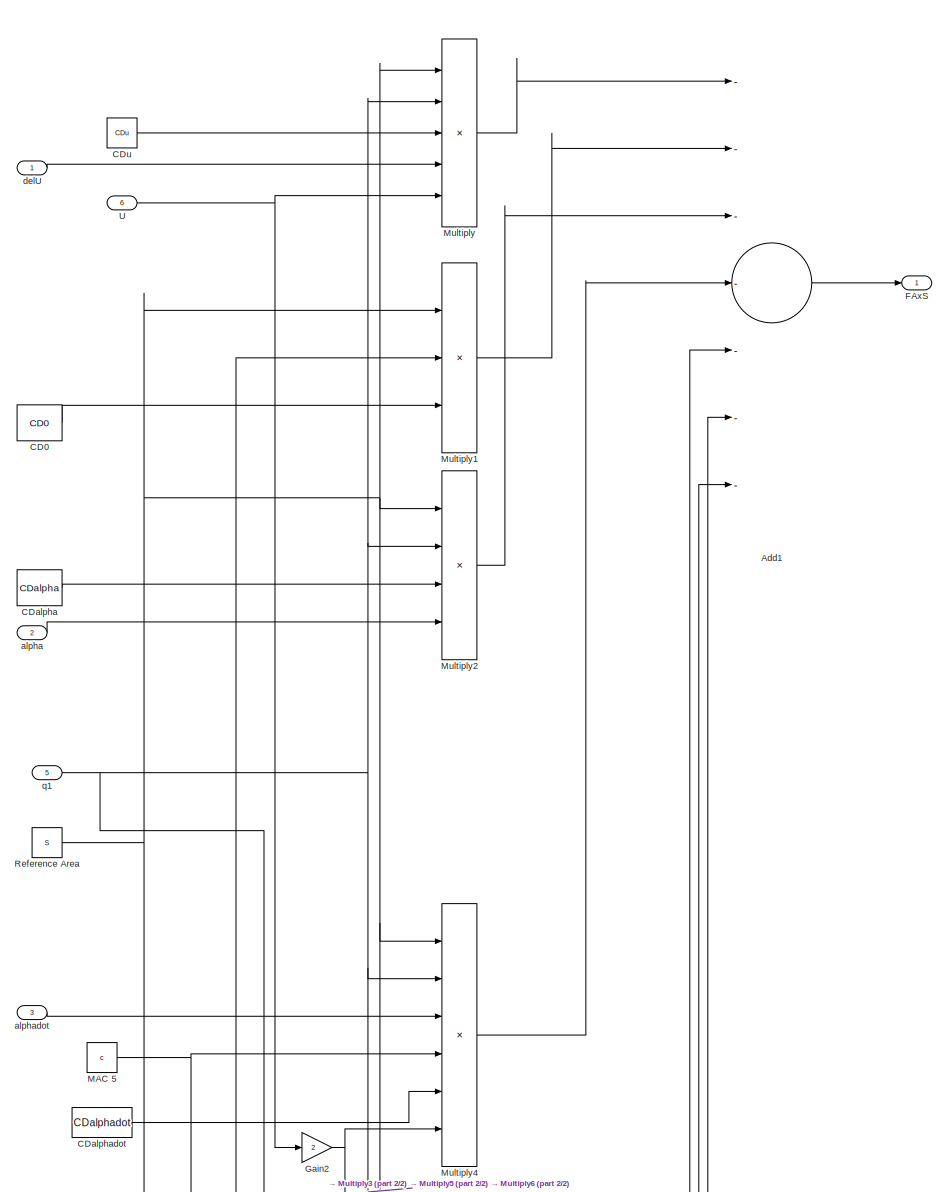
[diagram: Airplane Dynamics/Stability Aerodunamic Forces and Moments (FAxS,FAyS,FAzS,LAS,MAS,NAS)/FAxSBlock - part 1/2, full width, top band]
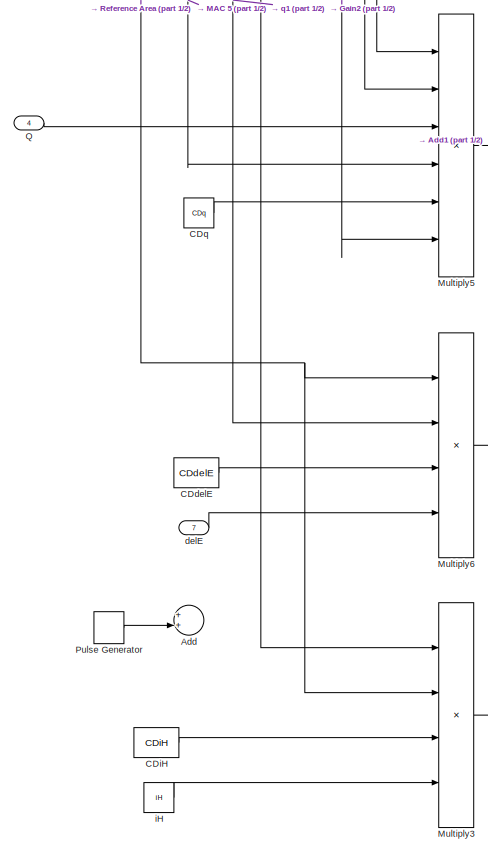
[diagram: Airplane Dynamics/Stability Aerodunamic Forces and Moments (FAxS,FAyS,FAzS,LAS,MAS,NAS)/FAxSBlock - part 2/2, bottom left region]
BLOCK [SubSystem] Airplane Dynamics/Stability Aerodunamic Forces and Moments (FAxS,FAyS,FAzS,LAS,MAS,NAS)/FAxSBlock
  Ports = [7, 1]
  RequestExecContextInheritance = off
BLOCK [Sum] Airplane Dynamics/Stability Aerodunamic Forces and Moments (FAxS,FAyS,FAzS,LAS,MAS,NAS)/FAxSBlock/Add
  InputSameDT = off
  OutDataTypeStr = Inherit: Inherit via internal rule
  Ports = [2, 1]
  SaturateOnIntegerOverflow = off
BLOCK [Sum] Airplane Dynamics/Stability Aerodunamic Forces and Moments (FAxS,FAyS,FAzS,LAS,MAS,NAS)/FAxSBlock/Add1
  InputSameDT = off
  Inputs = -------
  OutDataTypeStr = Inherit: Inherit via internal rule
  Ports = [7, 1]
  SaturateOnIntegerOverflow = off
BLOCK [Constant] Airplane Dynamics/Stability Aerodunamic Forces and Moments (FAxS,FAyS,FAzS,LAS,MAS,NAS)/FAxSBlock/CD0
  Value = CD0
BLOCK [Constant] Airplane Dynamics/Stability Aerodunamic Forces and Moments (FAxS,FAyS,FAzS,LAS,MAS,NAS)/FAxSBlock/CDalpha
  Value = CDalpha
BLOCK [Constant] Airplane Dynamics/Stability Aerodunamic Forces and Moments (FAxS,FAyS,FAzS,LAS,MAS,NAS)/FAxSBlock/CDalphadot
  Value = CDalphadot
BLOCK [Constant] Airplane Dynamics/Stability Aerodunamic Forces and Moments (FAxS,FAyS,FAzS,LAS,MAS,NAS)/FAxSBlock/CDdelE
  Value = CDdelE
BLOCK [Constant] Airplane Dynamics/Stability Aerodunamic Forces and Moments (FAxS,FAyS,FAzS,LAS,MAS,NAS)/FAxSBlock/CDiH
  Value = CDiH
BLOCK [Constant] Airplane Dynamics/Stability Aerodunamic Forces and Moments (FAxS,FAyS,FAzS,LAS,MAS,NAS)/FAxSBlock/CDq
  Value = CDq
BLOCK [Constant] Airplane Dynamics/Stability Aerodunamic Forces and Moments (FAxS,FAyS,FAzS,LAS,MAS,NAS)/FAxSBlock/CDu
  Value = CDu
BLOCK [Outport] Airplane Dynamics/Stability Aerodunamic Forces and Moments (FAxS,FAyS,FAzS,LAS,MAS,NAS)/FAxSBlock/FAxS
  IconDisplay = Port number
BLOCK [Gain] Airplane Dynamics/Stability Aerodunamic Forces and Moments (FAxS,FAyS,FAzS,LAS,MAS,NAS)/FAxSBlock/Gain2
  Gain = 2
  OutDataTypeStr = Inherit: Inherit via internal rule
  ParamDataTypeStr = Inherit: Inherit via internal rule
  SaturateOnIntegerOverflow = off
BLOCK [Constant] Airplane Dynamics/Stability Aerodunamic Forces and Moments (FAxS,FAyS,FAzS,LAS,MAS,NAS)/FAxSBlock/MAC 5
  Value = c
BLOCK [Product] Airplane Dynamics/Stability Aerodunamic Forces and Moments (FAxS,FAyS,FAzS,LAS,MAS,NAS)/FAxSBlock/Multiply
  InputSameDT = off
  Inputs = ****/
  OutDataTypeStr = Inherit: Inherit via internal rule
  Ports = [5, 1]
  RndMeth = Floor
  SaturateOnIntegerOverflow = off
BLOCK [Product] Airplane Dynamics/Stability Aerodunamic Forces and Moments (FAxS,FAyS,FAzS,LAS,MAS,NAS)/FAxSBlock/Multiply1
  InputSameDT = off
  Inputs = ***
  OutDataTypeStr = Inherit: Inherit via internal rule
  Ports = [3, 1]
  RndMeth = Floor
  SaturateOnIntegerOverflow = off
BLOCK [Product] Airplane Dynamics/Stability Aerodunamic Forces and Moments (FAxS,FAyS,FAzS,LAS,MAS,NAS)/FAxSBlock/Multiply2
  InputSameDT = off
  Inputs = ****
  OutDataTypeStr = Inherit: Inherit via internal rule
  Ports = [4, 1]
  RndMeth = Floor
  SaturateOnIntegerOverflow = off
BLOCK [Product] Airplane Dynamics/Stability Aerodunamic Forces and Moments (FAxS,FAyS,FAzS,LAS,MAS,NAS)/FAxSBlock/Multiply3
  InputSameDT = off
  Inputs = ****
  OutDataTypeStr = Inherit: Inherit via internal rule
  Ports = [4, 1]
  RndMeth = Floor
  SaturateOnIntegerOverflow = off
BLOCK [Product] Airplane Dynamics/Stability Aerodunamic Forces and Moments (FAxS,FAyS,FAzS,LAS,MAS,NAS)/FAxSBlock/Multiply4
  InputSameDT = off
  Inputs = *****/
  OutDataTypeStr = Inherit: Inherit via internal rule
  Ports = [6, 1]
  RndMeth = Floor
  SaturateOnIntegerOverflow = off
BLOCK [Product] Airplane Dynamics/Stability Aerodunamic Forces and Moments (FAxS,FAyS,FAzS,LAS,MAS,NAS)/FAxSBlock/Multiply5
  InputSameDT = off
  Inputs = *****/
  OutDataTypeStr = Inherit: Inherit via internal rule
  Ports = [6, 1]
  RndMeth = Floor
  SaturateOnIntegerOverflow = off
BLOCK [Product] Airplane Dynamics/Stability Aerodunamic Forces and Moments (FAxS,FAyS,FAzS,LAS,MAS,NAS)/FAxSBlock/Multiply6
  InputSameDT = off
  Inputs = ****
  OutDataTypeStr = Inherit: Inherit via internal rule
  Ports = [4, 1]
  RndMeth = Floor
  SaturateOnIntegerOverflow = off
BLOCK [DiscretePulseGenerator] Airplane Dynamics/Stability Aerodunamic Forces and Moments (FAxS,FAyS,FAzS,LAS,MAS,NAS)/FAxSBlock/Pulse Generator
  Amplitude = 0.035
  Period = 2000
  Ports = [0, 1]
  PulseType = Time based
  PulseWidth = 0.05
BLOCK [Inport] Airplane Dynamics/Stability Aerodunamic Forces and Moments (FAxS,FAyS,FAzS,LAS,MAS,NAS)/FAxSBlock/Q
  IconDisplay = Port number
  Port = 4
BLOCK [Constant] Airplane Dynamics/Stability Aerodunamic Forces and Moments (FAxS,FAyS,FAzS,LAS,MAS,NAS)/FAxSBlock/Reference Area 
  Value = S
BLOCK [Inport] Airplane Dynamics/Stability Aerodunamic Forces and Moments (FAxS,FAyS,FAzS,LAS,MAS,NAS)/FAxSBlock/U
  IconDisplay = Port number
  Port = 6
BLOCK [Inport] Airplane Dynamics/Stability Aerodunamic Forces and Moments (FAxS,FAyS,FAzS,LAS,MAS,NAS)/FAxSBlock/alpha
  IconDisplay = Port number
  Port = 2
BLOCK [Inport] Airplane Dynamics/Stability Aerodunamic Forces and Moments (FAxS,FAyS,FAzS,LAS,MAS,NAS)/FAxSBlock/alphadot
  IconDisplay = Port number
  Port = 3
BLOCK [Inport] Airplane Dynamics/Stability Aerodunamic Forces and Moments (FAxS,FAyS,FAzS,LAS,MAS,NAS)/FAxSBlock/delE
  IconDisplay = Port number
  Port = 7
BLOCK [Inport] Airplane Dynamics/Stability Aerodunamic Forces and Moments (FAxS,FAyS,FAzS,LAS,MAS,NAS)/FAxSBlock/delU
  IconDisplay = Port number
BLOCK [Constant] Airplane Dynamics/Stability Aerodunamic Forces and Moments (FAxS,FAyS,FAzS,LAS,MAS,NAS)/FAxSBlock/iH
  Value = iH
BLOCK [Inport] Airplane Dynamics/Stability Aerodunamic Forces and Moments (FAxS,FAyS,FAzS,LAS,MAS,NAS)/FAxSBlock/q1
  IconDisplay = Port number
  Port = 5
BLOCK [Outport] Airplane Dynamics/Stability Aerodunamic Forces and Moments (FAxS,FAyS,FAzS,LAS,MAS,NAS)/FAyS
  IconDisplay = Port number
  Port = 2
BLOCK [SubSystem] Airplane Dynamics/Stability Aerodunamic Forces and Moments (FAxS,FAyS,FAzS,LAS,MAS,NAS)/FAySBlock
  Ports = [8, 1]
  RequestExecContextInheritance = off
BLOCK [Sum] Airplane Dynamics/Stability Aerodunamic Forces and Moments (FAxS,FAyS,FAzS,LAS,MAS,NAS)/FAySBlock/Add1
  InputSameDT = off
  Inputs = ++++++
  OutDataTypeStr = Inherit: Inherit via internal rule
  Ports = [6, 1]
  SaturateOnIntegerOverflow = off
BLOCK [Constant] Airplane Dynamics/Stability Aerodunamic Forces and Moments (FAxS,FAyS,FAzS,LAS,MAS,NAS)/FAySBlock/Cybeta
  Value = Cybeta
BLOCK [Constant] Airplane Dynamics/Stability Aerodunamic Forces and Moments (FAxS,FAyS,FAzS,LAS,MAS,NAS)/FAySBlock/Cybetadot
  Value = Cybetadot
BLOCK [Constant] Airplane Dynamics/Stability Aerodunamic Forces and Moments (FAxS,FAyS,FAzS,LAS,MAS,NAS)/FAySBlock/CydelA
  Value = CydelA
BLOCK [Constant] Airplane Dynamics/Stability Aerodunamic Forces and Moments (FAxS,FAyS,FAzS,LAS,MAS,NAS)/FAySBlock/CydelR
  Value = CydelR
BLOCK [Constant] Airplane Dynamics/Stability Aerodunamic Forces and Moments (FAxS,FAyS,FAzS,LAS,MAS,NAS)/FAySBlock/Cyp
  Value = Cyp
BLOCK [Constant] Airplane Dynamics/Stability Aerodunamic Forces and Moments (FAxS,FAyS,FAzS,LAS,MAS,NAS)/FAySBlock/Cyr
  Value = Cyr
BLOCK [Outport] Airplane Dynamics/Stability Aerodunamic Forces and Moments (FAxS,FAyS,FAzS,LAS,MAS,NAS)/FAySBlock/FAyS
  IconDisplay = Port number
BLOCK [Gain] Airplane Dynamics/Stability Aerodunamic Forces and Moments (FAxS,FAyS,FAzS,LAS,MAS,NAS)/FAySBlock/Gain
  Gain = 2
  OutDataTypeStr = Inherit: Inherit via internal rule
  ParamDataTypeStr = Inherit: Inherit via internal rule
  SaturateOnIntegerOverflow = off
BLOCK [Product] Airplane Dynamics/Stability Aerodunamic Forces and Moments (FAxS,FAyS,FAzS,LAS,MAS,NAS)/FAySBlock/Multiply
  InputSameDT = off
  Inputs = ****
  OutDataTypeStr = Inherit: Inherit via internal rule
  Ports = [4, 1]
  RndMeth = Floor
  SaturateOnIntegerOverflow = off
BLOCK [Product] Airplane Dynamics/Stability Aerodunamic Forces and Moments (FAxS,FAyS,FAzS,LAS,MAS,NAS)/FAySBlock/Multiply1
  InputSameDT = off
  Inputs = *****/
  OutDataTypeStr = Inherit: Inherit via internal rule
  Ports = [6, 1]
  RndMeth = Floor
  SaturateOnIntegerOverflow = off
BLOCK [Product] Airplane Dynamics/Stability Aerodunamic Forces and Moments (FAxS,FAyS,FAzS,LAS,MAS,NAS)/FAySBlock/Multiply2
  InputSameDT = off
  Inputs = *****/
  OutDataTypeStr = Inherit: Inherit via internal rule
  Ports = [6, 1]
  RndMeth = Floor
  SaturateOnIntegerOverflow = off
BLOCK [Product] Airplane Dynamics/Stability Aerodunamic Forces and Moments (FAxS,FAyS,FAzS,LAS,MAS,NAS)/FAySBlock/Multiply3
  InputSameDT = off
  Inputs = *****/
  OutDataTypeStr = Inherit: Inherit via internal rule
  Ports = [6, 1]
  RndMeth = Floor
  SaturateOnIntegerOverflow = off
BLOCK [Product] Airplane Dynamics/Stability Aerodunamic Forces and Moments (FAxS,FAyS,FAzS,LAS,MAS,NAS)/FAySBlock/Multiply4
  InputSameDT = off
  Inputs = ****
  OutDataTypeStr = Inherit: Inherit via internal rule
  Ports = [4, 1]
  RndMeth = Floor
  SaturateOnIntegerOverflow = off
BLOCK [Product] Airplane Dynamics/Stability Aerodunamic Forces and Moments (FAxS,FAyS,FAzS,LAS,MAS,NAS)/FAySBlock/Multiply5
  InputSameDT = off
  Inputs = ****
  OutDataTypeStr = Inherit: Inherit via internal rule
  Ports = [4, 1]
  RndMeth = Floor
  SaturateOnIntegerOverflow = off
BLOCK [Inport] Airplane Dynamics/Stability Aerodunamic Forces and Moments (FAxS,FAyS,FAzS,LAS,MAS,NAS)/FAySBlock/P
  IconDisplay = Port number
  Port = 3
BLOCK [Inport] Airplane Dynamics/Stability Aerodunamic Forces and Moments (FAxS,FAyS,FAzS,LAS,MAS,NAS)/FAySBlock/R
  IconDisplay = Port number
  Port = 4
BLOCK [Constant] Airplane Dynamics/Stability Aerodunamic Forces and Moments (FAxS,FAyS,FAzS,LAS,MAS,NAS)/FAySBlock/Reference Area
  Value = S
BLOCK [Inport] Airplane Dynamics/Stability Aerodunamic Forces and Moments (FAxS,FAyS,FAzS,LAS,MAS,NAS)/FAySBlock/U
  IconDisplay = Port number
  Port = 6
BLOCK [Constant] Airplane Dynamics/Stability Aerodunamic Forces and Moments (FAxS,FAyS,FAzS,LAS,MAS,NAS)/FAySBlock/Wing span
  Value = b
BLOCK [Inport] Airplane Dynamics/Stability Aerodunamic Forces and Moments (FAxS,FAyS,FAzS,LAS,MAS,NAS)/FAySBlock/beta
  IconDisplay = Port number
BLOCK [Inport] Airplane Dynamics/Stability Aerodunamic Forces and Moments (FAxS,FAyS,FAzS,LAS,MAS,NAS)/FAySBlock/betadot
  IconDisplay = Port number
  Port = 2
BLOCK [Inport] Airplane Dynamics/Stability Aerodunamic Forces and Moments (FAxS,FAyS,FAzS,LAS,MAS,NAS)/FAySBlock/delA
  IconDisplay = Port number
  Port = 7
BLOCK [Inport] Airplane Dynamics/Stability Aerodunamic Forces and Moments (FAxS,FAyS,FAzS,LAS,MAS,NAS)/FAySBlock/delR
  IconDisplay = Port number
  Port = 8
BLOCK [Inport] Airplane Dynamics/Stability Aerodunamic Forces and Moments (FAxS,FAyS,FAzS,LAS,MAS,NAS)/FAySBlock/q1
  IconDisplay = Port number
  Port = 5
BLOCK [Outport] Airplane Dynamics/Stability Aerodunamic Forces and Moments (FAxS,FAyS,FAzS,LAS,MAS,NAS)/FAzS
  IconDisplay = Port number
  Port = 3
BLOCK [SubSystem] Airplane Dynamics/Stability Aerodunamic Forces and Moments (FAxS,FAyS,FAzS,LAS,MAS,NAS)/FAzSBlock
  Ports = [7, 1]
  RequestExecContextInheritance = off
BLOCK [Sum] Airplane Dynamics/Stability Aerodunamic Forces and Moments (FAxS,FAyS,FAzS,LAS,MAS,NAS)/FAzSBlock/Add1
  InputSameDT = off
  Inputs = -------
  OutDataTypeStr = Inherit: Inherit via internal rule
  Ports = [7, 1]
  SaturateOnIntegerOverflow = off
BLOCK [Constant] Airplane Dynamics/Stability Aerodunamic Forces and Moments (FAxS,FAyS,FAzS,LAS,MAS,NAS)/FAzSBlock/CL0
  Value = CL0
BLOCK [Constant] Airplane Dynamics/Stability Aerodunamic Forces and Moments (FAxS,FAyS,FAzS,LAS,MAS,NAS)/FAzSBlock/CLalpha
  Value = CLalpha
BLOCK [Constant] Airplane Dynamics/Stability Aerodunamic Forces and Moments (FAxS,FAyS,FAzS,LAS,MAS,NAS)/FAzSBlock/CLalphadot
  Value = CLalphadot
BLOCK [Constant] Airplane Dynamics/Stability Aerodunamic Forces and Moments (FAxS,FAyS,FAzS,LAS,MAS,NAS)/FAzSBlock/CLdelE
  Value = CLdelE
BLOCK [Constant] Airplane Dynamics/Stability Aerodunamic Forces and Moments (FAxS,FAyS,FAzS,LAS,MAS,NAS)/FAzSBlock/CLiH
  Value = CLiH
BLOCK [Constant] Airplane Dynamics/Stability Aerodunamic Forces and Moments (FAxS,FAyS,FAzS,LAS,MAS,NAS)/FAzSBlock/CLq
  Value = CLq
BLOCK [Constant] Airplane Dynamics/Stability Aerodunamic Forces and Moments (FAxS,FAyS,FAzS,LAS,MAS,NAS)/FAzSBlock/CLu
  Value = CLu
BLOCK [Outport] Airplane Dynamics/Stability Aerodunamic Forces and Moments (FAxS,FAyS,FAzS,LAS,MAS,NAS)/FAzSBlock/FAzS
  IconDisplay = Port number
BLOCK [Gain] Airplane Dynamics/Stability Aerodunamic Forces and Moments (FAxS,FAyS,FAzS,LAS,MAS,NAS)/FAzSBlock/Gain2
  Gain = 2
  OutDataTypeStr = Inherit: Inherit via internal rule
  ParamDataTypeStr = Inherit: Inherit via internal rule
  SaturateOnIntegerOverflow = off
BLOCK [Constant] Airplane Dynamics/Stability Aerodunamic Forces and Moments (FAxS,FAyS,FAzS,LAS,MAS,NAS)/FAzSBlock/MAC 5
  Value = c
BLOCK [Product] Airplane Dynamics/Stability Aerodunamic Forces and Moments (FAxS,FAyS,FAzS,LAS,MAS,NAS)/FAzSBlock/Multiply
  InputSameDT = off
  Inputs = ****/
  OutDataTypeStr = Inherit: Inherit via internal rule
  Ports = [5, 1]
  RndMeth = Floor
  SaturateOnIntegerOverflow = off
BLOCK [Product] Airplane Dynamics/Stability Aerodunamic Forces and Moments (FAxS,FAyS,FAzS,LAS,MAS,NAS)/FAzSBlock/Multiply1
  InputSameDT = off
  Inputs = ***
  OutDataTypeStr = Inherit: Inherit via internal rule
  Ports = [3, 1]
  RndMeth = Floor
  SaturateOnIntegerOverflow = off
BLOCK [Product] Airplane Dynamics/Stability Aerodunamic Forces and Moments (FAxS,FAyS,FAzS,LAS,MAS,NAS)/FAzSBlock/Multiply2
  InputSameDT = off
  Inputs = ****
  OutDataTypeStr = Inherit: Inherit via internal rule
  Ports = [4, 1]
  RndMeth = Floor
  SaturateOnIntegerOverflow = off
BLOCK [Product] Airplane Dynamics/Stability Aerodunamic Forces and Moments (FAxS,FAyS,FAzS,LAS,MAS,NAS)/FAzSBlock/Multiply3
  InputSameDT = off
  Inputs = ****
  OutDataTypeStr = Inherit: Inherit via internal rule
  Ports = [4, 1]
  RndMeth = Floor
  SaturateOnIntegerOverflow = off
BLOCK [Product] Airplane Dynamics/Stability Aerodunamic Forces and Moments (FAxS,FAyS,FAzS,LAS,MAS,NAS)/FAzSBlock/Multiply4
  InputSameDT = off
  Inputs = *****/
  OutDataTypeStr = Inherit: Inherit via internal rule
  Ports = [6, 1]
  RndMeth = Floor
  SaturateOnIntegerOverflow = off
BLOCK [Product] Airplane Dynamics/Stability Aerodunamic Forces and Moments (FAxS,FAyS,FAzS,LAS,MAS,NAS)/FAzSBlock/Multiply5
  InputSameDT = off
  Inputs = *****/
  OutDataTypeStr = Inherit: Inherit via internal rule
  Ports = [6, 1]
  RndMeth = Floor
  SaturateOnIntegerOverflow = off
BLOCK [Product] Airplane Dynamics/Stability Aerodunamic Forces and Moments (FAxS,FAyS,FAzS,LAS,MAS,NAS)/FAzSBlock/Multiply6
  InputSameDT = off
  Inputs = ****
  OutDataTypeStr = Inherit: Inherit via internal rule
  Ports = [4, 1]
  RndMeth = Floor
  SaturateOnIntegerOverflow = off
BLOCK [Inport] Airplane Dynamics/Stability Aerodunamic Forces and Moments (FAxS,FAyS,FAzS,LAS,MAS,NAS)/FAzSBlock/Q
  IconDisplay = Port number
  Port = 4
BLOCK [Constant] Airplane Dynamics/Stability Aerodunamic Forces and Moments (FAxS,FAyS,FAzS,LAS,MAS,NAS)/FAzSBlock/Reference Area 
  Value = S
BLOCK [Inport] Airplane Dynamics/Stability Aerodunamic Forces and Moments (FAxS,FAyS,FAzS,LAS,MAS,NAS)/FAzSBlock/U
  IconDisplay = Port number
  Port = 6
BLOCK [Inport] Airplane Dynamics/Stability Aerodunamic Forces and Moments (FAxS,FAyS,FAzS,LAS,MAS,NAS)/FAzSBlock/alpha
  IconDisplay = Port number
  Port = 2
BLOCK [Inport] Airplane Dynamics/Stability Aerodunamic Forces and Moments (FAxS,FAyS,FAzS,LAS,MAS,NAS)/FAzSBlock/alphadot
  IconDisplay = Port number
  Port = 3
BLOCK [Inport] Airplane Dynamics/Stability Aerodunamic Forces and Moments (FAxS,FAyS,FAzS,LAS,MAS,NAS)/FAzSBlock/delE
  IconDisplay = Port number
  Port = 7
BLOCK [Inport] Airplane Dynamics/Stability Aerodunamic Forces and Moments (FAxS,FAyS,FAzS,LAS,MAS,NAS)/FAzSBlock/delU
  IconDisplay = Port number
BLOCK [Constant] Airplane Dynamics/Stability Aerodunamic Forces and Moments (FAxS,FAyS,FAzS,LAS,MAS,NAS)/FAzSBlock/iH
  Value = iH
BLOCK [Inport] Airplane Dynamics/Stability Aerodunamic Forces and Moments (FAxS,FAyS,FAzS,LAS,MAS,NAS)/FAzSBlock/q1
  IconDisplay = Port number
  Port = 5
BLOCK [Outport] Airplane Dynamics/Stability Aerodunamic Forces and Moments (FAxS,FAyS,FAzS,LAS,MAS,NAS)/LAS
  IconDisplay = Port number
  Port = 4
BLOCK [SubSystem] Airplane Dynamics/Stability Aerodunamic Forces and Moments (FAxS,FAyS,FAzS,LAS,MAS,NAS)/LASBlock
  Ports = [8, 1]
  RequestExecContextInheritance = off
BLOCK [Sum] Airplane Dynamics/Stability Aerodunamic Forces and Moments (FAxS,FAyS,FAzS,LAS,MAS,NAS)/LASBlock/Add1
  InputSameDT = off
  Inputs = ++++++
  OutDataTypeStr = Inherit: Inherit via internal rule
  Ports = [6, 1]
  SaturateOnIntegerOverflow = off
BLOCK [Constant] Airplane Dynamics/Stability Aerodunamic Forces and Moments (FAxS,FAyS,FAzS,LAS,MAS,NAS)/LASBlock/Clbeta
  Value = Clbeta
BLOCK [Constant] Airplane Dynamics/Stability Aerodunamic Forces and Moments (FAxS,FAyS,FAzS,LAS,MAS,NAS)/LASBlock/Clbetadot
  Value = Clbetadot
BLOCK [Constant] Airplane Dynamics/Stability Aerodunamic Forces and Moments (FAxS,FAyS,FAzS,LAS,MAS,NAS)/LASBlock/CldelA
  Value = CldelA
BLOCK [Constant] Airplane Dynamics/Stability Aerodunamic Forces and Moments (FAxS,FAyS,FAzS,LAS,MAS,NAS)/LASBlock/CldelR
  Value = CldelR
BLOCK [Constant] Airplane Dynamics/Stability Aerodunamic Forces and Moments (FAxS,FAyS,FAzS,LAS,MAS,NAS)/LASBlock/Clp
  Value = Clp
BLOCK [Constant] Airplane Dynamics/Stability Aerodunamic Forces and Moments (FAxS,FAyS,FAzS,LAS,MAS,NAS)/LASBlock/Clr
  Value = Clr
BLOCK [Gain] Airplane Dynamics/Stability Aerodunamic Forces and Moments (FAxS,FAyS,FAzS,LAS,MAS,NAS)/LASBlock/Gain
  Gain = 2
  OutDataTypeStr = Inherit: Inherit via internal rule
  ParamDataTypeStr = Inherit: Inherit via internal rule
  SaturateOnIntegerOverflow = off
BLOCK [Outport] Airplane Dynamics/Stability Aerodunamic Forces and Moments (FAxS,FAyS,FAzS,LAS,MAS,NAS)/LASBlock/LAS
  IconDisplay = Port number
BLOCK [Product] Airplane Dynamics/Stability Aerodunamic Forces and Moments (FAxS,FAyS,FAzS,LAS,MAS,NAS)/LASBlock/Multiply
  InputSameDT = off
  Inputs = *****
  OutDataTypeStr = Inherit: Inherit via internal rule
  Ports = [5, 1]
  RndMeth = Floor
  SaturateOnIntegerOverflow = off
BLOCK [Product] Airplane Dynamics/Stability Aerodunamic Forces and Moments (FAxS,FAyS,FAzS,LAS,MAS,NAS)/LASBlock/Multiply1
  InputSameDT = off
  Inputs = ******/
  OutDataTypeStr = Inherit: Inherit via internal rule
  Ports = [7, 1]
  RndMeth = Floor
  SaturateOnIntegerOverflow = off
BLOCK [Product] Airplane Dynamics/Stability Aerodunamic Forces and Moments (FAxS,FAyS,FAzS,LAS,MAS,NAS)/LASBlock/Multiply2
  InputSameDT = off
  Inputs = ******/
  OutDataTypeStr = Inherit: Inherit via internal rule
  Ports = [7, 1]
  RndMeth = Floor
  SaturateOnIntegerOverflow = off
BLOCK [Product] Airplane Dynamics/Stability Aerodunamic Forces and Moments (FAxS,FAyS,FAzS,LAS,MAS,NAS)/LASBlock/Multiply3
  InputSameDT = off
  Inputs = ******/
  OutDataTypeStr = Inherit: Inherit via internal rule
  Ports = [7, 1]
  RndMeth = Floor
  SaturateOnIntegerOverflow = off
BLOCK [Product] Airplane Dynamics/Stability Aerodunamic Forces and Moments (FAxS,FAyS,FAzS,LAS,MAS,NAS)/LASBlock/Multiply4
  InputSameDT = off
  Inputs = *****
  OutDataTypeStr = Inherit: Inherit via internal rule
  Ports = [5, 1]
  RndMeth = Floor
  SaturateOnIntegerOverflow = off
BLOCK [Product] Airplane Dynamics/Stability Aerodunamic Forces and Moments (FAxS,FAyS,FAzS,LAS,MAS,NAS)/LASBlock/Multiply5
  InputSameDT = off
  Inputs = *****
  OutDataTypeStr = Inherit: Inherit via internal rule
  Ports = [5, 1]
  RndMeth = Floor
  SaturateOnIntegerOverflow = off
BLOCK [Inport] Airplane Dynamics/Stability Aerodunamic Forces and Moments (FAxS,FAyS,FAzS,LAS,MAS,NAS)/LASBlock/P
  IconDisplay = Port number
  Port = 3
BLOCK [Inport] Airplane Dynamics/Stability Aerodunamic Forces and Moments (FAxS,FAyS,FAzS,LAS,MAS,NAS)/LASBlock/R
  IconDisplay = Port number
  Port = 4
BLOCK [Constant] Airplane Dynamics/Stability Aerodunamic Forces and Moments (FAxS,FAyS,FAzS,LAS,MAS,NAS)/LASBlock/Reference Area
  Value = S
BLOCK [Inport] Airplane Dynamics/Stability Aerodunamic Forces and Moments (FAxS,FAyS,FAzS,LAS,MAS,NAS)/LASBlock/U
  IconDisplay = Port number
  Port = 6
BLOCK [Constant] Airplane Dynamics/Stability Aerodunamic Forces and Moments (FAxS,FAyS,FAzS,LAS,MAS,NAS)/LASBlock/Wing span
  Value = b
BLOCK [Inport] Airplane Dynamics/Stability Aerodunamic Forces and Moments (FAxS,FAyS,FAzS,LAS,MAS,NAS)/LASBlock/beta
  IconDisplay = Port number
BLOCK [Inport] Airplane Dynamics/Stability Aerodunamic Forces and Moments (FAxS,FAyS,FAzS,LAS,MAS,NAS)/LASBlock/betadot
  IconDisplay = Port number
  Port = 2
BLOCK [Inport] Airplane Dynamics/Stability Aerodunamic Forces and Moments (FAxS,FAyS,FAzS,LAS,MAS,NAS)/LASBlock/delA
  IconDisplay = Port number
  Port = 7
BLOCK [Inport] Airplane Dynamics/Stability Aerodunamic Forces and Moments (FAxS,FAyS,FAzS,LAS,MAS,NAS)/LASBlock/delR
  IconDisplay = Port number
  Port = 8
BLOCK [Inport] Airplane Dynamics/Stability Aerodunamic Forces and Moments (FAxS,FAyS,FAzS,LAS,MAS,NAS)/LASBlock/q1
  IconDisplay = Port number
  Port = 5
BLOCK [Outport] Airplane Dynamics/Stability Aerodunamic Forces and Moments (FAxS,FAyS,FAzS,LAS,MAS,NAS)/MAS
  IconDisplay = Port number
  Port = 5
BLOCK [SubSystem] Airplane Dynamics/Stability Aerodunamic Forces and Moments (FAxS,FAyS,FAzS,LAS,MAS,NAS)/MASBlock1
  Ports = [7, 1]
  RequestExecContextInheritance = off
BLOCK [Sum] Airplane Dynamics/Stability Aerodunamic Forces and Moments (FAxS,FAyS,FAzS,LAS,MAS,NAS)/MASBlock1/Add
  InputSameDT = off
  OutDataTypeStr = Inherit: Inherit via internal rule
  Ports = [2, 1]
  SaturateOnIntegerOverflow = off
BLOCK [Sum] Airplane Dynamics/Stability Aerodunamic Forces and Moments (FAxS,FAyS,FAzS,LAS,MAS,NAS)/MASBlock1/Add1
  InputSameDT = off
  Inputs = +++++++
  OutDataTypeStr = Inherit: Inherit via internal rule
  Ports = [7, 1]
  SaturateOnIntegerOverflow = off
BLOCK [Constant] Airplane Dynamics/Stability Aerodunamic Forces and Moments (FAxS,FAyS,FAzS,LAS,MAS,NAS)/MASBlock1/Cm0
  Value = Cm0
BLOCK [Constant] Airplane Dynamics/Stability Aerodunamic Forces and Moments (FAxS,FAyS,FAzS,LAS,MAS,NAS)/MASBlock1/Cmalpha
  Value = Cmalpha
BLOCK [Constant] Airplane Dynamics/Stability Aerodunamic Forces and Moments (FAxS,FAyS,FAzS,LAS,MAS,NAS)/MASBlock1/Cmalphadot
  Value = Cmalphadot
BLOCK [Constant] Airplane Dynamics/Stability Aerodunamic Forces and Moments (FAxS,FAyS,FAzS,LAS,MAS,NAS)/MASBlock1/CmdelE
  Value = CmdelE
BLOCK [Constant] Airplane Dynamics/Stability Aerodunamic Forces and Moments (FAxS,FAyS,FAzS,LAS,MAS,NAS)/MASBlock1/Cmq
  Value = Cmq
BLOCK [Constant] Airplane Dynamics/Stability Aerodunamic Forces and Moments (FAxS,FAyS,FAzS,LAS,MAS,NAS)/MASBlock1/Cmu
  Value = Cmu
BLOCK [Gain] Airplane Dynamics/Stability Aerodunamic Forces and Moments (FAxS,FAyS,FAzS,LAS,MAS,NAS)/MASBlock1/Gain2
  Gain = 2
  OutDataTypeStr = Inherit: Inherit via internal rule
  ParamDataTypeStr = Inherit: Inherit via internal rule
  SaturateOnIntegerOverflow = off
BLOCK [Constant] Airplane Dynamics/Stability Aerodunamic Forces and Moments (FAxS,FAyS,FAzS,LAS,MAS,NAS)/MASBlock1/MAC 5
  Value = c
BLOCK [Outport] Airplane Dynamics/Stability Aerodunamic Forces and Moments (FAxS,FAyS,FAzS,LAS,MAS,NAS)/MASBlock1/MAS
  IconDisplay = Port number
BLOCK [Product] Airplane Dynamics/Stability Aerodunamic Forces and Moments (FAxS,FAyS,FAzS,LAS,MAS,NAS)/MASBlock1/Multiply
  InputSameDT = off
  Inputs = *****/
  OutDataTypeStr = Inherit: Inherit via internal rule
  Ports = [6, 1]
  RndMeth = Floor
  SaturateOnIntegerOverflow = off
BLOCK [Product] Airplane Dynamics/Stability Aerodunamic Forces and Moments (FAxS,FAyS,FAzS,LAS,MAS,NAS)/MASBlock1/Multiply1
  InputSameDT = off
  Inputs = ****
  OutDataTypeStr = Inherit: Inherit via internal rule
  Ports = [4, 1]
  RndMeth = Floor
  SaturateOnIntegerOverflow = off
BLOCK [Product] Airplane Dynamics/Stability Aerodunamic Forces and Moments (FAxS,FAyS,FAzS,LAS,MAS,NAS)/MASBlock1/Multiply2
  InputSameDT = off
  Inputs = *****
  OutDataTypeStr = Inherit: Inherit via internal rule
  Ports = [5, 1]
  RndMeth = Floor
  SaturateOnIntegerOverflow = off
BLOCK [Product] Airplane Dynamics/Stability Aerodunamic Forces and Moments (FAxS,FAyS,FAzS,LAS,MAS,NAS)/MASBlock1/Multiply3
  InputSameDT = off
  Inputs = *****
  OutDataTypeStr = Inherit: Inherit via internal rule
  Ports = [5, 1]
  RndMeth = Floor
  SaturateOnIntegerOverflow = off
BLOCK [Product] Airplane Dynamics/Stability Aerodunamic Forces and Moments (FAxS,FAyS,FAzS,LAS,MAS,NAS)/MASBlock1/Multiply4
  InputSameDT = off
  Inputs = ******/
  OutDataTypeStr = Inherit: Inherit via internal rule
  Ports = [7, 1]
  RndMeth = Floor
  SaturateOnIntegerOverflow = off
BLOCK [Product] Airplane Dynamics/Stability Aerodunamic Forces and Moments (FAxS,FAyS,FAzS,LAS,MAS,NAS)/MASBlock1/Multiply5
  InputSameDT = off
  Inputs = ******/
  OutDataTypeStr = Inherit: Inherit via internal rule
  Ports = [7, 1]
  RndMeth = Floor
  SaturateOnIntegerOverflow = off
BLOCK [Product] Airplane Dynamics/Stability Aerodunamic Forces and Moments (FAxS,FAyS,FAzS,LAS,MAS,NAS)/MASBlock1/Multiply6
  InputSameDT = off
  Inputs = *****
  OutDataTypeStr = Inherit: Inherit via internal rule
  Ports = [5, 1]
  RndMeth = Floor
  SaturateOnIntegerOverflow = off
BLOCK [DiscretePulseGenerator] Airplane Dynamics/Stability Aerodunamic Forces and Moments (FAxS,FAyS,FAzS,LAS,MAS,NAS)/MASBlock1/Pulse Generator
  Amplitude = 0.035
  Period = 2000
  Ports = [0, 1]
  PulseType = Time based
  PulseWidth = 0.05
BLOCK [Inport] Airplane Dynamics/Stability Aerodunamic Forces and Moments (FAxS,FAyS,FAzS,LAS,MAS,NAS)/MASBlock1/Q
  IconDisplay = Port number
  Port = 4
BLOCK [Constant] Airplane Dynamics/Stability Aerodunamic Forces and Moments (FAxS,FAyS,FAzS,LAS,MAS,NAS)/MASBlock1/Reference Area 
  Value = S
BLOCK [Inport] Airplane Dynamics/Stability Aerodunamic Forces and Moments (FAxS,FAyS,FAzS,LAS,MAS,NAS)/MASBlock1/U
  IconDisplay = Port number
  Port = 6
BLOCK [Inport] Airplane Dynamics/Stability Aerodunamic Forces and Moments (FAxS,FAyS,FAzS,LAS,MAS,NAS)/MASBlock1/alpha
  IconDisplay = Port number
  Port = 2
BLOCK [Inport] Airplane Dynamics/Stability Aerodunamic Forces and Moments (FAxS,FAyS,FAzS,LAS,MAS,NAS)/MASBlock1/alphadot
  IconDisplay = Port number
  Port = 3
BLOCK [Constant] Airplane Dynamics/Stability Aerodunamic Forces and Moments (FAxS,FAyS,FAzS,LAS,MAS,NAS)/MASBlock1/cmiH
  Value = cmiH
BLOCK [Inport] Airplane Dynamics/Stability Aerodunamic Forces and Moments (FAxS,FAyS,FAzS,LAS,MAS,NAS)/MASBlock1/delE
  IconDisplay = Port number
  Port = 7
BLOCK [Inport] Airplane Dynamics/Stability Aerodunamic Forces and Moments (FAxS,FAyS,FAzS,LAS,MAS,NAS)/MASBlock1/delU
  IconDisplay = Port number
BLOCK [Constant] Airplane Dynamics/Stability Aerodunamic Forces and Moments (FAxS,FAyS,FAzS,LAS,MAS,NAS)/MASBlock1/iH
  Value = iH
BLOCK [Inport] Airplane Dynamics/Stability Aerodunamic Forces and Moments (FAxS,FAyS,FAzS,LAS,MAS,NAS)/MASBlock1/q1
  IconDisplay = Port number
  Port = 5
BLOCK [Outport] Airplane Dynamics/Stability Aerodunamic Forces and Moments (FAxS,FAyS,FAzS,LAS,MAS,NAS)/NAS
  IconDisplay = Port number
  Port = 6
BLOCK [SubSystem] Airplane Dynamics/Stability Aerodunamic Forces and Moments (FAxS,FAyS,FAzS,LAS,MAS,NAS)/NASBlock
  Ports = [8, 1]
  RequestExecContextInheritance = off
BLOCK [Sum] Airplane Dynamics/Stability Aerodunamic Forces and Moments (FAxS,FAyS,FAzS,LAS,MAS,NAS)/NASBlock/Add1
  InputSameDT = off
  Inputs = ++++++
  OutDataTypeStr = Inherit: Inherit via internal rule
  Ports = [6, 1]
  SaturateOnIntegerOverflow = off
BLOCK [Constant] Airplane Dynamics/Stability Aerodunamic Forces and Moments (FAxS,FAyS,FAzS,LAS,MAS,NAS)/NASBlock/Cnbeta
  Value = Cnbeta
BLOCK [Constant] Airplane Dynamics/Stability Aerodunamic Forces and Moments (FAxS,FAyS,FAzS,LAS,MAS,NAS)/NASBlock/Cnbetadot
  Value = Cnbetadot
BLOCK [Constant] Airplane Dynamics/Stability Aerodunamic Forces and Moments (FAxS,FAyS,FAzS,LAS,MAS,NAS)/NASBlock/CndelA
  Value = CndelA
BLOCK [Constant] Airplane Dynamics/Stability Aerodunamic Forces and Moments (FAxS,FAyS,FAzS,LAS,MAS,NAS)/NASBlock/CndelR
  Value = CndelR
BLOCK [Constant] Airplane Dynamics/Stability Aerodunamic Forces and Moments (FAxS,FAyS,FAzS,LAS,MAS,NAS)/NASBlock/Cnp
  Value = Cnp
BLOCK [Constant] Airplane Dynamics/Stability Aerodunamic Forces and Moments (FAxS,FAyS,FAzS,LAS,MAS,NAS)/NASBlock/Cnr
  Value = Cnr
BLOCK [Gain] Airplane Dynamics/Stability Aerodunamic Forces and Moments (FAxS,FAyS,FAzS,LAS,MAS,NAS)/NASBlock/Gain
  Gain = 2
  OutDataTypeStr = Inherit: Inherit via internal rule
  ParamDataTypeStr = Inherit: Inherit via internal rule
  SaturateOnIntegerOverflow = off
BLOCK [Product] Airplane Dynamics/Stability Aerodunamic Forces and Moments (FAxS,FAyS,FAzS,LAS,MAS,NAS)/NASBlock/Multiply
  InputSameDT = off
  Inputs = *****
  OutDataTypeStr = Inherit: Inherit via internal rule
  Ports = [5, 1]
  RndMeth = Floor
  SaturateOnIntegerOverflow = off
BLOCK [Product] Airplane Dynamics/Stability Aerodunamic Forces and Moments (FAxS,FAyS,FAzS,LAS,MAS,NAS)/NASBlock/Multiply1
  InputSameDT = off
  Inputs = ******/
  OutDataTypeStr = Inherit: Inherit via internal rule
  Ports = [7, 1]
  RndMeth = Floor
  SaturateOnIntegerOverflow = off
BLOCK [Product] Airplane Dynamics/Stability Aerodunamic Forces and Moments (FAxS,FAyS,FAzS,LAS,MAS,NAS)/NASBlock/Multiply2
  InputSameDT = off
  Inputs = ******/
  OutDataTypeStr = Inherit: Inherit via internal rule
  Ports = [7, 1]
  RndMeth = Floor
  SaturateOnIntegerOverflow = off
BLOCK [Product] Airplane Dynamics/Stability Aerodunamic Forces and Moments (FAxS,FAyS,FAzS,LAS,MAS,NAS)/NASBlock/Multiply3
  InputSameDT = off
  Inputs = ******/
  OutDataTypeStr = Inherit: Inherit via internal rule
  Ports = [7, 1]
  RndMeth = Floor
  SaturateOnIntegerOverflow = off
BLOCK [Product] Airplane Dynamics/Stability Aerodunamic Forces and Moments (FAxS,FAyS,FAzS,LAS,MAS,NAS)/NASBlock/Multiply4
  InputSameDT = off
  Inputs = *****
  OutDataTypeStr = Inherit: Inherit via internal rule
  Ports = [5, 1]
  RndMeth = Floor
  SaturateOnIntegerOverflow = off
BLOCK [Product] Airplane Dynamics/Stability Aerodunamic Forces and Moments (FAxS,FAyS,FAzS,LAS,MAS,NAS)/NASBlock/Multiply5
  InputSameDT = off
  Inputs = *****
  OutDataTypeStr = Inherit: Inherit via internal rule
  Ports = [5, 1]
  RndMeth = Floor
  SaturateOnIntegerOverflow = off
BLOCK [Outport] Airplane Dynamics/Stability Aerodunamic Forces and Moments (FAxS,FAyS,FAzS,LAS,MAS,NAS)/NASBlock/NAS
  IconDisplay = Port number
BLOCK [Inport] Airplane Dynamics/Stability Aerodunamic Forces and Moments (FAxS,FAyS,FAzS,LAS,MAS,NAS)/NASBlock/P
  IconDisplay = Port number
  Port = 3
BLOCK [Inport] Airplane Dynamics/Stability Aerodunamic Forces and Moments (FAxS,FAyS,FAzS,LAS,MAS,NAS)/NASBlock/R
  IconDisplay = Port number
  Port = 4
BLOCK [Constant] Airplane Dynamics/Stability Aerodunamic Forces and Moments (FAxS,FAyS,FAzS,LAS,MAS,NAS)/NASBlock/Reference Area
  Value = S
BLOCK [Inport] Airplane Dynamics/Stability Aerodunamic Forces and Moments (FAxS,FAyS,FAzS,LAS,MAS,NAS)/NASBlock/U
  IconDisplay = Port number
  Port = 6
BLOCK [Constant] Airplane Dynamics/Stability Aerodunamic Forces and Moments (FAxS,FAyS,FAzS,LAS,MAS,NAS)/NASBlock/Wing span
  Value = b
BLOCK [Inport] Airplane Dynamics/Stability Aerodunamic Forces and Moments (FAxS,FAyS,FAzS,LAS,MAS,NAS)/NASBlock/beta
  IconDisplay = Port number
BLOCK [Inport] Airplane Dynamics/Stability Aerodunamic Forces and Moments (FAxS,FAyS,FAzS,LAS,MAS,NAS)/NASBlock/betadot
  IconDisplay = Port number
  Port = 2
BLOCK [Inport] Airplane Dynamics/Stability Aerodunamic Forces and Moments (FAxS,FAyS,FAzS,LAS,MAS,NAS)/NASBlock/delA
  IconDisplay = Port number
  Port = 7
BLOCK [Inport] Airplane Dynamics/Stability Aerodunamic Forces and Moments (FAxS,FAyS,FAzS,LAS,MAS,NAS)/NASBlock/delR
  IconDisplay = Port number
  Port = 8
BLOCK [Inport] Airplane Dynamics/Stability Aerodunamic Forces and Moments (FAxS,FAyS,FAzS,LAS,MAS,NAS)/NASBlock/q1
  IconDisplay = Port number
  Port = 5
BLOCK [Inport] Airplane Dynamics/Stability Aerodunamic Forces and Moments (FAxS,FAyS,FAzS,LAS,MAS,NAS)/P
  IconDisplay = Port number
  Port = 6
BLOCK [Inport] Airplane Dynamics/Stability Aerodunamic Forces and Moments (FAxS,FAyS,FAzS,LAS,MAS,NAS)/Q
  IconDisplay = Port number
  Port = 7
BLOCK [Inport] Airplane Dynamics/Stability Aerodunamic Forces and Moments (FAxS,FAyS,FAzS,LAS,MAS,NAS)/R
  IconDisplay = Port number
  Port = 8
BLOCK [Inport] Airplane Dynamics/Stability Aerodunamic Forces and Moments (FAxS,FAyS,FAzS,LAS,MAS,NAS)/U
  IconDisplay = Port number
  Port = 12
BLOCK [Inport] Airplane Dynamics/Stability Aerodunamic Forces and Moments (FAxS,FAyS,FAzS,LAS,MAS,NAS)/alpha
  IconDisplay = Port number
  Port = 2
BLOCK [Inport] Airplane Dynamics/Stability Aerodunamic Forces and Moments (FAxS,FAyS,FAzS,LAS,MAS,NAS)/alphadot
  IconDisplay = Port number
  Port = 5
BLOCK [Inport] Airplane Dynamics/Stability Aerodunamic Forces and Moments (FAxS,FAyS,FAzS,LAS,MAS,NAS)/beta
  IconDisplay = Port number
  Port = 3
BLOCK [Inport] Airplane Dynamics/Stability Aerodunamic Forces and Moments (FAxS,FAyS,FAzS,LAS,MAS,NAS)/betadot 
  IconDisplay = Port number
  Port = 4
BLOCK [Inport] Airplane Dynamics/Stability Aerodunamic Forces and Moments (FAxS,FAyS,FAzS,LAS,MAS,NAS)/delA
  IconDisplay = Port number
  Port = 10
BLOCK [Inport] Airplane Dynamics/Stability Aerodunamic Forces and Moments (FAxS,FAyS,FAzS,LAS,MAS,NAS)/delE
  IconDisplay = Port number
  Port = 11
BLOCK [Inport] Airplane Dynamics/Stability Aerodunamic Forces and Moments (FAxS,FAyS,FAzS,LAS,MAS,NAS)/delR
  IconDisplay = Port number
  Port = 13
BLOCK [Inport] Airplane Dynamics/Stability Aerodunamic Forces and Moments (FAxS,FAyS,FAzS,LAS,MAS,NAS)/delU
  IconDisplay = Port number
BLOCK [Inport] Airplane Dynamics/Stability Aerodunamic Forces and Moments (FAxS,FAyS,FAzS,LAS,MAS,NAS)/q1
  IconDisplay = Port number
  Port = 9
BLOCK [Outport] Airplane Dynamics/Theta
  IconDisplay = Port number
  Port = 3
BLOCK [SubSystem] Airplane Dynamics/Thrust Forces and Moments (FTx,FTy,FTz,LT,MT,NT)
  Ports = [5, 6]
  RequestExecContextInheritance = off
BLOCK [Outport] Airplane Dynamics/Thrust Forces and Moments (FTx,FTy,FTz,LT,MT,NT)/FTx
  IconDisplay = Port number
BLOCK [SubSystem] Airplane Dynamics/Thrust Forces and Moments (FTx,FTy,FTz,LT,MT,NT)/FTxBlock
  Ports = [3, 1]
  RequestExecContextInheritance = off
BLOCK [Sum] Airplane Dynamics/Thrust Forces and Moments (FTx,FTy,FTz,LT,MT,NT)/FTxBlock/Add
  InputSameDT = off
  OutDataTypeStr = Inherit: Inherit via internal rule
  Ports = [2, 1]
  SaturateOnIntegerOverflow = off
BLOCK [Sum] Airplane Dynamics/Thrust Forces and Moments (FTx,FTy,FTz,LT,MT,NT)/FTxBlock/Add1
  InputSameDT = off
  OutDataTypeStr = Inherit: Inherit via internal rule
  Ports = [2, 1]
  SaturateOnIntegerOverflow = off
BLOCK [Constant] Airplane Dynamics/Thrust Forces and Moments (FTx,FTy,FTz,LT,MT,NT)/FTxBlock/CTxu
  Value = CTxu
BLOCK [Outport] Airplane Dynamics/Thrust Forces and Moments (FTx,FTy,FTz,LT,MT,NT)/FTxBlock/FTx
  IconDisplay = Port number
BLOCK [Product] Airplane Dynamics/Thrust Forces and Moments (FTx,FTy,FTz,LT,MT,NT)/FTxBlock/Multiply
  InputSameDT = off
  Inputs = ****/
  OutDataTypeStr = Inherit: Inherit via internal rule
  Ports = [5, 1]
  RndMeth = Floor
  SaturateOnIntegerOverflow = off
BLOCK [Product] Airplane Dynamics/Thrust Forces and Moments (FTx,FTy,FTz,LT,MT,NT)/FTxBlock/Multiply1
  InputSameDT = off
  OutDataTypeStr = Inherit: Inherit via internal rule
  Ports = [2, 1]
  RndMeth = Floor
  SaturateOnIntegerOverflow = off
BLOCK [DiscretePulseGenerator] Airplane Dynamics/Thrust Forces and Moments (FTx,FTy,FTz,LT,MT,NT)/FTxBlock/Pulse Generator
  Amplitude = 0.05
  Period = 2000
  Ports = [0, 1]
  PulseType = Time based
  PulseWidth = 0.05
BLOCK [Constant] Airplane Dynamics/Thrust Forces and Moments (FTx,FTy,FTz,LT,MT,NT)/FTxBlock/Refernce Area
  Value = S
BLOCK [Scope] Airplane Dynamics/Thrust Forces and Moments (FTx,FTy,FTz,LT,MT,NT)/FTxBlock/Scope
  Floating = off
  NumInputPorts = 1
  Ports = [1]
BLOCK [Constant] Airplane Dynamics/Thrust Forces and Moments (FTx,FTy,FTz,LT,MT,NT)/FTxBlock/T_trim
  Value = T1
BLOCK [Inport] Airplane Dynamics/Thrust Forces and Moments (FTx,FTy,FTz,LT,MT,NT)/FTxBlock/U
  IconDisplay = Port number
  Port = 3
BLOCK [Inport] Airplane Dynamics/Thrust Forces and Moments (FTx,FTy,FTz,LT,MT,NT)/FTxBlock/delU
  IconDisplay = Port number
BLOCK [Inport] Airplane Dynamics/Thrust Forces and Moments (FTx,FTy,FTz,LT,MT,NT)/FTxBlock/q1
  IconDisplay = Port number
  Port = 2
BLOCK [Outport] Airplane Dynamics/Thrust Forces and Moments (FTx,FTy,FTz,LT,MT,NT)/FTy
  IconDisplay = Port number
  Port = 2
BLOCK [SubSystem] Airplane Dynamics/Thrust Forces and Moments (FTx,FTy,FTz,LT,MT,NT)/FTyBlock
  Ports = [1, 1]
  RequestExecContextInheritance = off
BLOCK [Constant] Airplane Dynamics/Thrust Forces and Moments (FTx,FTy,FTz,LT,MT,NT)/FTyBlock/CTy
  Value = CTy
BLOCK [Outport] Airplane Dynamics/Thrust Forces and Moments (FTx,FTy,FTz,LT,MT,NT)/FTyBlock/FTy
  IconDisplay = Port number
BLOCK [Product] Airplane Dynamics/Thrust Forces and Moments (FTx,FTy,FTz,LT,MT,NT)/FTyBlock/Multiply
  InputSameDT = off
  Inputs = ***
  OutDataTypeStr = Inherit: Inherit via internal rule
  Ports = [3, 1]
  RndMeth = Floor
  SaturateOnIntegerOverflow = off
BLOCK [Constant] Airplane Dynamics/Thrust Forces and Moments (FTx,FTy,FTz,LT,MT,NT)/FTyBlock/Refernce Area
  Value = S
BLOCK [Inport] Airplane Dynamics/Thrust Forces and Moments (FTx,FTy,FTz,LT,MT,NT)/FTyBlock/q1
  IconDisplay = Port number
BLOCK [Outport] Airplane Dynamics/Thrust Forces and Moments (FTx,FTy,FTz,LT,MT,NT)/FTz
  IconDisplay = Port number
  Port = 3
BLOCK [SubSystem] Airplane Dynamics/Thrust Forces and Moments (FTx,FTy,FTz,LT,MT,NT)/FTzBlock
  Ports = [1, 1]
  RequestExecContextInheritance = off
BLOCK [Constant] Airplane Dynamics/Thrust Forces and Moments (FTx,FTy,FTz,LT,MT,NT)/FTzBlock/CTz
  Value = CTz
BLOCK [Outport] Airplane Dynamics/Thrust Forces and Moments (FTx,FTy,FTz,LT,MT,NT)/FTzBlock/FTz
  IconDisplay = Port number
BLOCK [Product] Airplane Dynamics/Thrust Forces and Moments (FTx,FTy,FTz,LT,MT,NT)/FTzBlock/Multiply
  InputSameDT = off
  Inputs = ***
  OutDataTypeStr = Inherit: Inherit via internal rule
  Ports = [3, 1]
  RndMeth = Floor
  SaturateOnIntegerOverflow = off
BLOCK [Constant] Airplane Dynamics/Thrust Forces and Moments (FTx,FTy,FTz,LT,MT,NT)/FTzBlock/Refernce Area
  Value = S
BLOCK [Inport] Airplane Dynamics/Thrust Forces and Moments (FTx,FTy,FTz,LT,MT,NT)/FTzBlock/q1
  IconDisplay = Port number
BLOCK [Outport] Airplane Dynamics/Thrust Forces and Moments (FTx,FTy,FTz,LT,MT,NT)/LT
  IconDisplay = Port number
  Port = 4
BLOCK [SubSystem] Airplane Dynamics/Thrust Forces and Moments (FTx,FTy,FTz,LT,MT,NT)/LTBlock
  Ports = [1, 1]
  RequestExecContextInheritance = off
BLOCK [Constant] Airplane Dynamics/Thrust Forces and Moments (FTx,FTy,FTz,LT,MT,NT)/LTBlock/ClT
  Value = ClT
BLOCK [Outport] Airplane Dynamics/Thrust Forces and Moments (FTx,FTy,FTz,LT,MT,NT)/LTBlock/LT
  IconDisplay = Port number
BLOCK [Product] Airplane Dynamics/Thrust Forces and Moments (FTx,FTy,FTz,LT,MT,NT)/LTBlock/Multiply
  InputSameDT = off
  Inputs = ****
  OutDataTypeStr = Inherit: Inherit via internal rule
  Ports = [4, 1]
  RndMeth = Floor
  SaturateOnIntegerOverflow = off
BLOCK [Constant] Airplane Dynamics/Thrust Forces and Moments (FTx,FTy,FTz,LT,MT,NT)/LTBlock/Refernce Area
  Value = S
BLOCK [Constant] Airplane Dynamics/Thrust Forces and Moments (FTx,FTy,FTz,LT,MT,NT)/LTBlock/Wing span
  Value = b
BLOCK [Inport] Airplane Dynamics/Thrust Forces and Moments (FTx,FTy,FTz,LT,MT,NT)/LTBlock/q1
  IconDisplay = Port number
BLOCK [Outport] Airplane Dynamics/Thrust Forces and Moments (FTx,FTy,FTz,LT,MT,NT)/MT
  IconDisplay = Port number
  Port = 5
BLOCK [SubSystem] Airplane Dynamics/Thrust Forces and Moments (FTx,FTy,FTz,LT,MT,NT)/MTBlock
  Ports = [4, 1]
  RequestExecContextInheritance = off
BLOCK [Sum] Airplane Dynamics/Thrust Forces and Moments (FTx,FTy,FTz,LT,MT,NT)/MTBlock/Add1
  InputSameDT = off
  Inputs = +++
  OutDataTypeStr = Inherit: Inherit via internal rule
  Ports = [3, 1]
  SaturateOnIntegerOverflow = off
BLOCK [Constant] Airplane Dynamics/Thrust Forces and Moments (FTx,FTy,FTz,LT,MT,NT)/MTBlock/CmT1
  Value = CmT1
BLOCK [Constant] Airplane Dynamics/Thrust Forces and Moments (FTx,FTy,FTz,LT,MT,NT)/MTBlock/CmTalpha
  Value = CmTalpha
BLOCK [Constant] Airplane Dynamics/Thrust Forces and Moments (FTx,FTy,FTz,LT,MT,NT)/MTBlock/CmTu
  Value = CmTu
BLOCK [Gain] Airplane Dynamics/Thrust Forces and Moments (FTx,FTy,FTz,LT,MT,NT)/MTBlock/Gain
  Gain = 2
  OutDataTypeStr = Inherit: Inherit via internal rule
  ParamDataTypeStr = Inherit: Inherit via internal rule
  SaturateOnIntegerOverflow = off
BLOCK [Constant] Airplane Dynamics/Thrust Forces and Moments (FTx,FTy,FTz,LT,MT,NT)/MTBlock/MAC
  Value = c
BLOCK [Outport] Airplane Dynamics/Thrust Forces and Moments (FTx,FTy,FTz,LT,MT,NT)/MTBlock/MT
  IconDisplay = Port number
BLOCK [Product] Airplane Dynamics/Thrust Forces and Moments (FTx,FTy,FTz,LT,MT,NT)/MTBlock/Multiply
  InputSameDT = off
  Inputs = *****/
  OutDataTypeStr = Inherit: Inherit via internal rule
  Ports = [6, 1]
  RndMeth = Floor
  SaturateOnIntegerOverflow = off
BLOCK [Product] Airplane Dynamics/Thrust Forces and Moments (FTx,FTy,FTz,LT,MT,NT)/MTBlock/Multiply1
  InputSameDT = off
  Inputs = *****/
  OutDataTypeStr = Inherit: Inherit via internal rule
  Ports = [6, 1]
  RndMeth = Floor
  SaturateOnIntegerOverflow = off
BLOCK [Product] Airplane Dynamics/Thrust Forces and Moments (FTx,FTy,FTz,LT,MT,NT)/MTBlock/Multiply2
  InputSameDT = off
  Inputs = *****
  OutDataTypeStr = Inherit: Inherit via internal rule
  Ports = [5, 1]
  RndMeth = Floor
  SaturateOnIntegerOverflow = off
BLOCK [Constant] Airplane Dynamics/Thrust Forces and Moments (FTx,FTy,FTz,LT,MT,NT)/MTBlock/Refernce Area
  Value = S
BLOCK [Inport] Airplane Dynamics/Thrust Forces and Moments (FTx,FTy,FTz,LT,MT,NT)/MTBlock/U
  IconDisplay = Port number
  Port = 4
BLOCK [Inport] Airplane Dynamics/Thrust Forces and Moments (FTx,FTy,FTz,LT,MT,NT)/MTBlock/alpha
  IconDisplay = Port number
  Port = 2
BLOCK [Inport] Airplane Dynamics/Thrust Forces and Moments (FTx,FTy,FTz,LT,MT,NT)/MTBlock/delU
  IconDisplay = Port number
BLOCK [Inport] Airplane Dynamics/Thrust Forces and Moments (FTx,FTy,FTz,LT,MT,NT)/MTBlock/q1
  IconDisplay = Port number
  Port = 3
BLOCK [Outport] Airplane Dynamics/Thrust Forces and Moments (FTx,FTy,FTz,LT,MT,NT)/NT
  IconDisplay = Port number
  Port = 6
BLOCK [SubSystem] Airplane Dynamics/Thrust Forces and Moments (FTx,FTy,FTz,LT,MT,NT)/NTBlock
  Ports = [2, 1]
  RequestExecContextInheritance = off
BLOCK [Constant] Airplane Dynamics/Thrust Forces and Moments (FTx,FTy,FTz,LT,MT,NT)/NTBlock/CnTbeta
  Value = CnTbeta
BLOCK [Product] Airplane Dynamics/Thrust Forces and Moments (FTx,FTy,FTz,LT,MT,NT)/NTBlock/Multiply
  InputSameDT = off
  Inputs = *****
  OutDataTypeStr = Inherit: Inherit via internal rule
  Ports = [5, 1]
  RndMeth = Floor
  SaturateOnIntegerOverflow = off
BLOCK [Outport] Airplane Dynamics/Thrust Forces and Moments (FTx,FTy,FTz,LT,MT,NT)/NTBlock/NT
  IconDisplay = Port number
BLOCK [Constant] Airplane Dynamics/Thrust Forces and Moments (FTx,FTy,FTz,LT,MT,NT)/NTBlock/Refernce Area
  Value = S
BLOCK [Constant] Airplane Dynamics/Thrust Forces and Moments (FTx,FTy,FTz,LT,MT,NT)/NTBlock/Wing span
  Value = b
BLOCK [Inport] Airplane Dynamics/Thrust Forces and Moments (FTx,FTy,FTz,LT,MT,NT)/NTBlock/beta
  IconDisplay = Port number
BLOCK [Inport] Airplane Dynamics/Thrust Forces and Moments (FTx,FTy,FTz,LT,MT,NT)/NTBlock/q1
  IconDisplay = Port number
  Port = 2
BLOCK [Inport] Airplane Dynamics/Thrust Forces and Moments (FTx,FTy,FTz,LT,MT,NT)/U
  IconDisplay = Port number
  Port = 5
BLOCK [Inport] Airplane Dynamics/Thrust Forces and Moments (FTx,FTy,FTz,LT,MT,NT)/alpha
  IconDisplay = Port number
  Port = 2
BLOCK [Inport] Airplane Dynamics/Thrust Forces and Moments (FTx,FTy,FTz,LT,MT,NT)/beta
  IconDisplay = Port number
  Port = 3
BLOCK [Inport] Airplane Dynamics/Thrust Forces and Moments (FTx,FTy,FTz,LT,MT,NT)/delU
  IconDisplay = Port number
BLOCK [Inport] Airplane Dynamics/Thrust Forces and Moments (FTx,FTy,FTz,LT,MT,NT)/q1
  IconDisplay = Port number
  Port = 4
BLOCK [ToWorkspace] Airplane Dynamics/To Workspace
  FixptAsFi = on
  MaxDataPoints = inf
  Ports = [1]
  SampleTime = -1
  VariableName = XInertia
BLOCK [ToWorkspace] Airplane Dynamics/To Workspace1
  FixptAsFi = on
  MaxDataPoints = inf
  Ports = [1]
  SampleTime = -1
  VariableName = YInertia
BLOCK [ToWorkspace] Airplane Dynamics/To Workspace10
  FixptAsFi = on
  MaxDataPoints = inf
  Ports = [1]
  SampleTime = -1
  SaveFormat = Timeseries
  VariableName = Q
BLOCK [ToWorkspace] Airplane Dynamics/To Workspace11
  FixptAsFi = on
  MaxDataPoints = inf
  Ports = [1]
  SampleTime = -1
  SaveFormat = Timeseries
  VariableName = R
BLOCK [ToWorkspace] Airplane Dynamics/To Workspace12
  FixptAsFi = on
  MaxDataPoints = inf
  Ports = [1]
  SampleTime = -1
  SaveFormat = Timeseries
  VariableName = P
BLOCK [ToWorkspace] Airplane Dynamics/To Workspace13
  FixptAsFi = on
  MaxDataPoints = inf
  Ports = [1]
  SampleTime = -1
  SaveFormat = Timeseries
  VariableName = W
BLOCK [ToWorkspace] Airplane Dynamics/To Workspace14
  FixptAsFi = on
  MaxDataPoints = inf
  Ports = [1]
  SampleTime = -1
  SaveFormat = Timeseries
  VariableName = FAzB
BLOCK [ToWorkspace] Airplane Dynamics/To Workspace15
  FixptAsFi = on
  MaxDataPoints = inf
  Ports = [1]
  SampleTime = -1
  SaveFormat = Timeseries
  VariableName = FTx
BLOCK [ToWorkspace] Airplane Dynamics/To Workspace16
  FixptAsFi = on
  MaxDataPoints = inf
  Ports = [1]
  SampleTime = -1
  SaveFormat = Timeseries
  VariableName = FAxB
BLOCK [ToWorkspace] Airplane Dynamics/To Workspace17
  FixptAsFi = on
  MaxDataPoints = inf
  Ports = [1]
  SampleTime = -1
  SaveFormat = Timeseries
  VariableName = FAyB
BLOCK [ToWorkspace] Airplane Dynamics/To Workspace18
  FixptAsFi = on
  MaxDataPoints = inf
  Ports = [1]
  SampleTime = -1
  SaveFormat = Timeseries
  VariableName = V
BLOCK [ToWorkspace] Airplane Dynamics/To Workspace19
  FixptAsFi = on
  MaxDataPoints = inf
  Ports = [1]
  SampleTime = -1
  Save2DSignal = 3-D array (concatenate along third dimension)
  SaveFormat = Timeseries
  VariableName = delE
BLOCK [ToWorkspace] Airplane Dynamics/To Workspace2
  FixptAsFi = on
  MaxDataPoints = inf
  Ports = [1]
  SampleTime = -1
  SaveFormat = Timeseries
  VariableName = ZInertia
BLOCK [ToWorkspace] Airplane Dynamics/To Workspace3
  FixptAsFi = on
  MaxDataPoints = inf
  Ports = [1]
  SampleTime = -1
  SaveFormat = Timeseries
  VariableName = alpha
BLOCK [ToWorkspace] Airplane Dynamics/To Workspace4
  FixptAsFi = on
  MaxDataPoints = inf
  Ports = [1]
  SampleTime = -1
  SaveFormat = Timeseries
  VariableName = beta
BLOCK [ToWorkspace] Airplane Dynamics/To Workspace5
  FixptAsFi = on
  MaxDataPoints = inf
  Ports = [1]
  SampleTime = -1
  SaveFormat = Timeseries
  VariableName = U
BLOCK [ToWorkspace] Airplane Dynamics/To Workspace6
  FixptAsFi = on
  MaxDataPoints = inf
  Ports = [1]
  SampleTime = -1
  SaveFormat = Timeseries
  VariableName = Psi
BLOCK [ToWorkspace] Airplane Dynamics/To Workspace7
  FixptAsFi = on
  MaxDataPoints = inf
  Ports = [1]
  SampleTime = -1
  SaveFormat = Timeseries
  VariableName = Phi
BLOCK [ToWorkspace] Airplane Dynamics/To Workspace8
  FixptAsFi = on
  MaxDataPoints = inf
  Ports = [1]
  SampleTime = -1
  SaveFormat = Timeseries
  VariableName = Theta
BLOCK [ToWorkspace] Airplane Dynamics/To Workspace9
  FixptAsFi = on
  MaxDataPoints = inf
  Ports = [1]
  SampleTime = -1
  SaveFormat = Timeseries
  VariableName = MAB
BLOCK [Inport] Airplane Dynamics/delA
  IconDisplay = Port number
BLOCK [Inport] Airplane Dynamics/delE
  IconDisplay = Port number
  Port = 2
BLOCK [Inport] Airplane Dynamics/delR
  IconDisplay = Port number
  Port = 3
BLOCK [Outport] Airplane Dynamics/h
  IconDisplay = Port number
  Port = 5
BLOCK [Gain] Gain1
  Gain = -1
  OutDataTypeStr = Inherit: Inherit via internal rule
  ParamDataTypeStr = Inherit: Inherit via internal rule
  SaturateOnIntegerOverflow = off
BLOCK [Reference] PID Controller  REF=simulink/Continuous/PID Controller
  Ports = [1, 1]
  SourceBlock = simulink/Continuous/PID Controller
  SourceProductBaseCode = SL
  SourceProductName = Simulink
  SourceType = PID 1dof
BLOCK [TransferFcn] Pilot Transfer Function
  Denominator = [(TI*TN*taw) (TN*taw+TI*taw+2*TI*TN) (taw+2*TN+2*TI) 2]
  Numerator = [(- Kp*TL* taw) (- Kp*taw+ 2*Kp*TL) (2*Kp)]
BLOCK [DiscretePulseGenerator] Pulse Generator
  Amplitude = 0.0175*5
  Period = 2000
  PhaseDelay = 800
  Ports = [0, 1]
  PulseType = Time based
BLOCK [Scope] Scope
  Floating = off
  NumInputPorts = 1
  Ports = [1]
  ScopeSpecificationString = C++SS(StrPVP('Location','[5, 49, 1371, 727]'),StrPVP('Open','off'),MxPVP('AxesTitles',53,'struct(''axes1'',''%<SignalLabel>'')'),MxPVP('ScopeGraphics',56,'struct(''FigureColor'',''[0.5 0.5 0.5]'',''AxesColor'',''[0 0 0]'',''AxesTickColor'',''[1 1 1]'',''LineColors'',''[1 1 0;1 0 1;0 1 1;1 0 0;0 1 0;0 0 1]'',''LineStyles'',''-|-|-|-|-|-'',''LineWidths'',''[0.5 0.5 0.5 0.5 0.5 0.5]'',''MarkerStyles'...<+190ch>
BLOCK [Scope] Scope1
  Floating = off
  NumInputPorts = 1
  Ports = [1]
  ScopeSpecificationString = Simulink.scopes.TimeScopeBlockCfg('CurrentConfiguration', extmgr.ConfigurationSet(extmgr.Configuration('Core','General UI',true),extmgr.Configuration('Core','Source UI',true),extmgr.Configuration('Sources','WiredSimulink',true,'DataLoggingVariableName','ScopeData1','DataLoggingLimitDataPoints',true,'DataLoggingSaveFormat','Array','DataLoggingDecimation','1','DataLoggingDecimateData',true),extmgr.C...<+1679ch>
BLOCK [Scope] Scope2
  Floating = off
  NumInputPorts = 1
  Ports = [1]
  ScopeSpecificationString = C++SS(StrPVP('Location','[5, 49, 1371, 727]'),StrPVP('Open','off'),MxPVP('AxesTitles',53,'struct(''axes1'',''%<SignalLabel>'')'),MxPVP('ScopeGraphics',56,'struct(''FigureColor'',''[0.5 0.5 0.5]'',''AxesColor'',''[0 0 0]'',''AxesTickColor'',''[1 1 1]'',''LineColors'',''[1 1 0;1 0 1;0 1 1;1 0 0;0 1 0;0 0 1]'',''LineStyles'',''-|-|-|-|-|-'',''LineWidths'',''[0.5 0.5 0.5 0.5 0.5 0.5]'',''MarkerStyles'...<+222ch>
BLOCK [Scope] Scope3
  Floating = off
  NumInputPorts = 1
  Ports = [1]
  ScopeSpecificationString = Simulink.scopes.TimeScopeBlockCfg('CurrentConfiguration', extmgr.ConfigurationSet(extmgr.Configuration('Core','General UI',true),extmgr.Configuration('Core','Source UI',true),extmgr.Configuration('Sources','WiredSimulink',true,'DataLoggingVariableName','ScopeData3','DataLoggingSaveFormat','Array','DataLoggingDecimation','1','DataLoggingDecimateData',true),extmgr.Configuration('Visuals','Time Domai...<+1671ch>
BLOCK [Sum] Sum
  IconShape = round
  InputSameDT = off
  Inputs = |+-
  OutDataTypeStr = Inherit: Inherit via internal rule
  Ports = [2, 1]
  SaturateOnIntegerOverflow = off
BLOCK [ToWorkspace] To Workspace20
  FixptAsFi = on
  MaxDataPoints = inf
  Ports = [1]
  SampleTime = -1
  Save2DSignal = 3-D array (concatenate along third dimension)
  VariableName = h
BLOCK [TransferFcn] Transfer Fcn1
  Denominator = [1 10]
  Numerator = [10]
BLOCK [Constant] delA
  Value = 0
BLOCK [Constant] delA1
  Value = delE
BLOCK [Constant] delR
  Value = 0
BLOCK [Constant] h
  Value = 25000
NET Airplane Dynamics/AnglesBlock/Atan2:1 -> Airplane Dynamics/AnglesBlock/Derivative1:1, Airplane Dynamics/AnglesBlock/Scope:1, Airplane Dynamics/AnglesBlock/alpha:1
LINE Airplane Dynamics/AnglesBlock/Derivative1:1 -> Airplane Dynamics/AnglesBlock/alphadot:1
LINE Airplane Dynamics/AnglesBlock/Derivative:1 -> Airplane Dynamics/AnglesBlock/betadot:1
LINE Airplane Dynamics/AnglesBlock/Divide:1 -> Airplane Dynamics/AnglesBlock/Sin:1
NET Airplane Dynamics/AnglesBlock/Sin:1 -> Airplane Dynamics/AnglesBlock/Derivative:1, Airplane Dynamics/AnglesBlock/beta :1
NET Airplane Dynamics/AnglesBlock/U:1 -> Airplane Dynamics/AnglesBlock/Atan2:2, Airplane Dynamics/AnglesBlock/Divide:2
LINE Airplane Dynamics/AnglesBlock/V:1 -> Airplane Dynamics/AnglesBlock/Divide:1
LINE Airplane Dynamics/AnglesBlock/W:1 -> Airplane Dynamics/AnglesBlock/Atan2:1
NET Airplane Dynamics/AnglesBlock:1 -> Airplane Dynamics/Body Aerodynamic Forces and Moments (FAxB,FAyB,FAzB,LAB,MAB,NAB):4, Airplane Dynamics/Stability Aerodunamic Forces and Moments (FAxS,FAyS,FAzS,LAS,MAS,NAS):3, Airplane Dynamics/Thrust Forces and Moments (FTx,FTy,FTz,LT,MT,NT):3, Airplane Dynamics/To Workspace4:1
NET Airplane Dynamics/AnglesBlock:2 -> Airplane Dynamics/Body Aerodynamic Forces and Moments (FAxB,FAyB,FAzB,LAB,MAB,NAB):3, Airplane Dynamics/Stability Aerodunamic Forces and Moments (FAxS,FAyS,FAzS,LAS,MAS,NAS):2, Airplane Dynamics/Thrust Forces and Moments (FTx,FTy,FTz,LT,MT,NT):2, Airplane Dynamics/To Workspace3:1
LINE Airplane Dynamics/AnglesBlock:3 -> Airplane Dynamics/Stability Aerodunamic Forces and Moments (FAxS,FAyS,FAzS,LAS,MAS,NAS):4
LINE Airplane Dynamics/AnglesBlock:4 -> Airplane Dynamics/Stability Aerodunamic Forces and Moments (FAxS,FAyS,FAzS,LAS,MAS,NAS):5
LINE Airplane Dynamics/Angular Velocities (P,Q,R)/LAB:1 -> Airplane Dynamics/Angular Velocities (P,Q,R)/PBlock:1
LINE Airplane Dynamics/Angular Velocities (P,Q,R)/LT:1 -> Airplane Dynamics/Angular Velocities (P,Q,R)/PBlock:2
LINE Airplane Dynamics/Angular Velocities (P,Q,R)/MAB:1 -> Airplane Dynamics/Angular Velocities (P,Q,R)/QBlock:1
LINE Airplane Dynamics/Angular Velocities (P,Q,R)/MT:1 -> Airplane Dynamics/Angular Velocities (P,Q,R)/QBlock:2
LINE Airplane Dynamics/Angular Velocities (P,Q,R)/NAB:1 -> Airplane Dynamics/Angular Velocities (P,Q,R)/RBlock:1
LINE Airplane Dynamics/Angular Velocities (P,Q,R)/NT:1 -> Airplane Dynamics/Angular Velocities (P,Q,R)/RBlock:2
LINE Airplane Dynamics/Angular Velocities (P,Q,R)/PBlock/Add1:1 -> Airplane Dynamics/Angular Velocities (P,Q,R)/PBlock/Multiply1:1
LINE Airplane Dynamics/Angular Velocities (P,Q,R)/PBlock/Add2:1 -> Airplane Dynamics/Angular Velocities (P,Q,R)/PBlock/Multiply3:2
NET Airplane Dynamics/Angular Velocities (P,Q,R)/PBlock/Add3:1 -> Airplane Dynamics/Angular Velocities (P,Q,R)/PBlock/Integrator:1, Airplane Dynamics/Angular Velocities (P,Q,R)/PBlock/Pdot:1
LINE Airplane Dynamics/Angular Velocities (P,Q,R)/PBlock/Add:1 -> Airplane Dynamics/Angular Velocities (P,Q,R)/PBlock/Divide:1
LINE Airplane Dynamics/Angular Velocities (P,Q,R)/PBlock/Divide1:1 -> Airplane Dynamics/Angular Velocities (P,Q,R)/PBlock/Multiply1:2
LINE Airplane Dynamics/Angular Velocities (P,Q,R)/PBlock/Divide2:1 -> Airplane Dynamics/Angular Velocities (P,Q,R)/PBlock/Add2:1
LINE Airplane Dynamics/Angular Velocities (P,Q,R)/PBlock/Divide3:1 -> Airplane Dynamics/Angular Velocities (P,Q,R)/PBlock/Add2:2
LINE Airplane Dynamics/Angular Velocities (P,Q,R)/PBlock/Divide:1 -> Airplane Dynamics/Angular Velocities (P,Q,R)/PBlock/Add3:1
NET Airplane Dynamics/Angular Velocities (P,Q,R)/PBlock/Inertia Momentum about XB:1 -> Airplane Dynamics/Angular Velocities (P,Q,R)/PBlock/Divide1:2, Airplane Dynamics/Angular Velocities (P,Q,R)/PBlock/Divide2:2, Airplane Dynamics/Angular Velocities (P,Q,R)/PBlock/Divide3:2, Airplane Dynamics/Angular Velocities (P,Q,R)/PBlock/Divide:2
LINE Airplane Dynamics/Angular Velocities (P,Q,R)/PBlock/Inertia Momentum about XZB:1 -> Airplane Dynamics/Angular Velocities (P,Q,R)/PBlock/Divide1:1
LINE Airplane Dynamics/Angular Velocities (P,Q,R)/PBlock/Inertia Momentum about YB:1 -> Airplane Dynamics/Angular Velocities (P,Q,R)/PBlock/Divide3:1
LINE Airplane Dynamics/Angular Velocities (P,Q,R)/PBlock/Inertia Momentum about ZB:1 -> Airplane Dynamics/Angular Velocities (P,Q,R)/PBlock/Divide2:1
NET Airplane Dynamics/Angular Velocities (P,Q,R)/PBlock/Integrator:1 -> Airplane Dynamics/Angular Velocities (P,Q,R)/PBlock/Multiply:2, Airplane Dynamics/Angular Velocities (P,Q,R)/PBlock/P:1
LINE Airplane Dynamics/Angular Velocities (P,Q,R)/PBlock/LAB:1 -> Airplane Dynamics/Angular Velocities (P,Q,R)/PBlock/Add:1
LINE Airplane Dynamics/Angular Velocities (P,Q,R)/PBlock/LT:1 -> Airplane Dynamics/Angular Velocities (P,Q,R)/PBlock/Add:2
LINE Airplane Dynamics/Angular Velocities (P,Q,R)/PBlock/Multiply1:1 -> Airplane Dynamics/Angular Velocities (P,Q,R)/PBlock/Add3:2
LINE Airplane Dynamics/Angular Velocities (P,Q,R)/PBlock/Multiply2:1 -> Airplane Dynamics/Angular Velocities (P,Q,R)/PBlock/Multiply3:1
LINE Airplane Dynamics/Angular Velocities (P,Q,R)/PBlock/Multiply3:1 -> Airplane Dynamics/Angular Velocities (P,Q,R)/PBlock/Add3:3
LINE Airplane Dynamics/Angular Velocities (P,Q,R)/PBlock/Multiply:1 -> Airplane Dynamics/Angular Velocities (P,Q,R)/PBlock/Add1:1
NET Airplane Dynamics/Angular Velocities (P,Q,R)/PBlock/Q:1 -> Airplane Dynamics/Angular Velocities (P,Q,R)/PBlock/Multiply2:2, Airplane Dynamics/Angular Velocities (P,Q,R)/PBlock/Multiply:1
LINE Airplane Dynamics/Angular Velocities (P,Q,R)/PBlock/R:1 -> Airplane Dynamics/Angular Velocities (P,Q,R)/PBlock/Multiply2:1
LINE Airplane Dynamics/Angular Velocities (P,Q,R)/PBlock/Rdot:1 -> Airplane Dynamics/Angular Velocities (P,Q,R)/PBlock/Add1:2
NET Airplane Dynamics/Angular Velocities (P,Q,R)/PBlock:1 -> Airplane Dynamics/Angular Velocities (P,Q,R)/P:1, Airplane Dynamics/Angular Velocities (P,Q,R)/QBlock:3, Airplane Dynamics/Angular Velocities (P,Q,R)/RBlock:5
LINE Airplane Dynamics/Angular Velocities (P,Q,R)/PBlock:2 -> Airplane Dynamics/Angular Velocities (P,Q,R)/RBlock:3
LINE Airplane Dynamics/Angular Velocities (P,Q,R)/QBlock/Add1:1 -> Airplane Dynamics/Angular Velocities (P,Q,R)/QBlock/Multiply:2
LINE Airplane Dynamics/Angular Velocities (P,Q,R)/QBlock/Add2:1 -> Airplane Dynamics/Angular Velocities (P,Q,R)/QBlock/Divide3:2
LINE Airplane Dynamics/Angular Velocities (P,Q,R)/QBlock/Add3:1 -> Airplane Dynamics/Angular Velocities (P,Q,R)/QBlock/Integrator:1
LINE Airplane Dynamics/Angular Velocities (P,Q,R)/QBlock/Add:1 -> Airplane Dynamics/Angular Velocities (P,Q,R)/QBlock/Divide1:1
LINE Airplane Dynamics/Angular Velocities (P,Q,R)/QBlock/Divide1:1 -> Airplane Dynamics/Angular Velocities (P,Q,R)/QBlock/Add3:1
LINE Airplane Dynamics/Angular Velocities (P,Q,R)/QBlock/Divide2:1 -> Airplane Dynamics/Angular Velocities (P,Q,R)/QBlock/Multiply:1
LINE Airplane Dynamics/Angular Velocities (P,Q,R)/QBlock/Divide3:1 -> Airplane Dynamics/Angular Velocities (P,Q,R)/QBlock/Multiply2:2
LINE Airplane Dynamics/Angular Velocities (P,Q,R)/QBlock/Inertia Momentum about XB:1 -> Airplane Dynamics/Angular Velocities (P,Q,R)/QBlock/Add2:1
LINE Airplane Dynamics/Angular Velocities (P,Q,R)/QBlock/Inertia Momentum about XZB:1 -> Airplane Dynamics/Angular Velocities (P,Q,R)/QBlock/Divide2:2
NET Airplane Dynamics/Angular Velocities (P,Q,R)/QBlock/Inertia Momentum about YB:1 -> Airplane Dynamics/Angular Velocities (P,Q,R)/QBlock/Divide1:2, Airplane Dynamics/Angular Velocities (P,Q,R)/QBlock/Divide2:1, Airplane Dynamics/Angular Velocities (P,Q,R)/QBlock/Divide3:1
LINE Airplane Dynamics/Angular Velocities (P,Q,R)/QBlock/Inertia Momentum about ZB:1 -> Airplane Dynamics/Angular Velocities (P,Q,R)/QBlock/Add2:2
LINE Airplane Dynamics/Angular Velocities (P,Q,R)/QBlock/Integrator:1 -> Airplane Dynamics/Angular Velocities (P,Q,R)/QBlock/Q:1
LINE Airplane Dynamics/Angular Velocities (P,Q,R)/QBlock/MAB:1 -> Airplane Dynamics/Angular Velocities (P,Q,R)/QBlock/Add:1
LINE Airplane Dynamics/Angular Velocities (P,Q,R)/QBlock/MT:1 -> Airplane Dynamics/Angular Velocities (P,Q,R)/QBlock/Add:2
LINE Airplane Dynamics/Angular Velocities (P,Q,R)/QBlock/Multiply1:1 -> Airplane Dynamics/Angular Velocities (P,Q,R)/QBlock/Multiply2:1
LINE Airplane Dynamics/Angular Velocities (P,Q,R)/QBlock/Multiply2:1 -> Airplane Dynamics/Angular Velocities (P,Q,R)/QBlock/Add3:3
LINE Airplane Dynamics/Angular Velocities (P,Q,R)/QBlock/Multiply3:1 -> Airplane Dynamics/Angular Velocities (P,Q,R)/QBlock/Add1:1
LINE Airplane Dynamics/Angular Velocities (P,Q,R)/QBlock/Multiply4:1 -> Airplane Dynamics/Angular Velocities (P,Q,R)/QBlock/Add1:2
LINE Airplane Dynamics/Angular Velocities (P,Q,R)/QBlock/Multiply:1 -> Airplane Dynamics/Angular Velocities (P,Q,R)/QBlock/Add3:2
NET Airplane Dynamics/Angular Velocities (P,Q,R)/QBlock/P:1 -> Airplane Dynamics/Angular Velocities (P,Q,R)/QBlock/Multiply1:1, Airplane Dynamics/Angular Velocities (P,Q,R)/QBlock/Multiply3:1, Airplane Dynamics/Angular Velocities (P,Q,R)/QBlock/Multiply3:2
NET Airplane Dynamics/Angular Velocities (P,Q,R)/QBlock/R:1 -> Airplane Dynamics/Angular Velocities (P,Q,R)/QBlock/Multiply1:2, Airplane Dynamics/Angular Velocities (P,Q,R)/QBlock/Multiply4:1, Airplane Dynamics/Angular Velocities (P,Q,R)/QBlock/Multiply4:2
NET Airplane Dynamics/Angular Velocities (P,Q,R)/QBlock:1 -> Airplane Dynamics/Angular Velocities (P,Q,R)/PBlock:5, Airplane Dynamics/Angular Velocities (P,Q,R)/Q:1, Airplane Dynamics/Angular Velocities (P,Q,R)/RBlock:4, Airplane Dynamics/Angular Velocities (P,Q,R)/Scope:1
LINE Airplane Dynamics/Angular Velocities (P,Q,R)/RBlock/Add1:1 -> Airplane Dynamics/Angular Velocities (P,Q,R)/RBlock/Multiply1:2
LINE Airplane Dynamics/Angular Velocities (P,Q,R)/RBlock/Add2:1 -> Airplane Dynamics/Angular Velocities (P,Q,R)/RBlock/Multiply3:2
NET Airplane Dynamics/Angular Velocities (P,Q,R)/RBlock/Add3:1 -> Airplane Dynamics/Angular Velocities (P,Q,R)/RBlock/Integrator:1, Airplane Dynamics/Angular Velocities (P,Q,R)/RBlock/Rdot :1
LINE Airplane Dynamics/Angular Velocities (P,Q,R)/RBlock/Add:1 -> Airplane Dynamics/Angular Velocities (P,Q,R)/RBlock/Divide:1
LINE Airplane Dynamics/Angular Velocities (P,Q,R)/RBlock/Divide1:1 -> Airplane Dynamics/Angular Velocities (P,Q,R)/RBlock/Multiply1:1
LINE Airplane Dynamics/Angular Velocities (P,Q,R)/RBlock/Divide2:1 -> Airplane Dynamics/Angular Velocities (P,Q,R)/RBlock/Add2:1
LINE Airplane Dynamics/Angular Velocities (P,Q,R)/RBlock/Divide3:1 -> Airplane Dynamics/Angular Velocities (P,Q,R)/RBlock/Add2:2
LINE Airplane Dynamics/Angular Velocities (P,Q,R)/RBlock/Divide:1 -> Airplane Dynamics/Angular Velocities (P,Q,R)/RBlock/Add3:1
LINE Airplane Dynamics/Angular Velocities (P,Q,R)/RBlock/Inertia Momentum about XB:1 -> Airplane Dynamics/Angular Velocities (P,Q,R)/RBlock/Divide3:1
LINE Airplane Dynamics/Angular Velocities (P,Q,R)/RBlock/Inertia Momentum about XZB:1 -> Airplane Dynamics/Angular Velocities (P,Q,R)/RBlock/Divide1:1
LINE Airplane Dynamics/Angular Velocities (P,Q,R)/RBlock/Inertia Momentum about YB:1 -> Airplane Dynamics/Angular Velocities (P,Q,R)/RBlock/Divide2:1
NET Airplane Dynamics/Angular Velocities (P,Q,R)/RBlock/Inertia Momentum about ZB:1 -> Airplane Dynamics/Angular Velocities (P,Q,R)/RBlock/Divide1:2, Airplane Dynamics/Angular Velocities (P,Q,R)/RBlock/Divide2:2, Airplane Dynamics/Angular Velocities (P,Q,R)/RBlock/Divide3:2, Airplane Dynamics/Angular Velocities (P,Q,R)/RBlock/Divide:2
NET Airplane Dynamics/Angular Velocities (P,Q,R)/RBlock/Integrator:1 -> Airplane Dynamics/Angular Velocities (P,Q,R)/RBlock/Multiply:1, Airplane Dynamics/Angular Velocities (P,Q,R)/RBlock/R:1
LINE Airplane Dynamics/Angular Velocities (P,Q,R)/RBlock/Multiply1:1 -> Airplane Dynamics/Angular Velocities (P,Q,R)/RBlock/Add3:2
LINE Airplane Dynamics/Angular Velocities (P,Q,R)/RBlock/Multiply2:1 -> Airplane Dynamics/Angular Velocities (P,Q,R)/RBlock/Multiply3:1
LINE Airplane Dynamics/Angular Velocities (P,Q,R)/RBlock/Multiply3:1 -> Airplane Dynamics/Angular Velocities (P,Q,R)/RBlock/Add3:3
LINE Airplane Dynamics/Angular Velocities (P,Q,R)/RBlock/Multiply:1 -> Airplane Dynamics/Angular Velocities (P,Q,R)/RBlock/Add1:1
LINE Airplane Dynamics/Angular Velocities (P,Q,R)/RBlock/NAB:1 -> Airplane Dynamics/Angular Velocities (P,Q,R)/RBlock/Add:1
LINE Airplane Dynamics/Angular Velocities (P,Q,R)/RBlock/NT:1 -> Airplane Dynamics/Angular Velocities (P,Q,R)/RBlock/Add:2
LINE Airplane Dynamics/Angular Velocities (P,Q,R)/RBlock/P:1 -> Airplane Dynamics/Angular Velocities (P,Q,R)/RBlock/Multiply2:1
LINE Airplane Dynamics/Angular Velocities (P,Q,R)/RBlock/Pdot:1 -> Airplane Dynamics/Angular Velocities (P,Q,R)/RBlock/Add1:2
NET Airplane Dynamics/Angular Velocities (P,Q,R)/RBlock/Q:1 -> Airplane Dynamics/Angular Velocities (P,Q,R)/RBlock/Multiply2:2, Airplane Dynamics/Angular Velocities (P,Q,R)/RBlock/Multiply:2
NET Airplane Dynamics/Angular Velocities (P,Q,R)/RBlock:1 -> Airplane Dynamics/Angular Velocities (P,Q,R)/PBlock:4, Airplane Dynamics/Angular Velocities (P,Q,R)/QBlock:4, Airplane Dynamics/Angular Velocities (P,Q,R)/R:1
LINE Airplane Dynamics/Angular Velocities (P,Q,R)/RBlock:2 -> Airplane Dynamics/Angular Velocities (P,Q,R)/PBlock:3
NET Airplane Dynamics/Angular Velocities (P,Q,R):1 -> Airplane Dynamics/Euler's Angles (Phi,Theta,Psi):3, Airplane Dynamics/Linear Velocities (U,V,W):11, Airplane Dynamics/Stability Aerodunamic Forces and Moments (FAxS,FAyS,FAzS,LAS,MAS,NAS):6, Airplane Dynamics/To Workspace12:1
NET Airplane Dynamics/Angular Velocities (P,Q,R):2 -> Airplane Dynamics/Euler's Angles (Phi,Theta,Psi):1, Airplane Dynamics/Linear Velocities (U,V,W):10, Airplane Dynamics/Stability Aerodunamic Forces and Moments (FAxS,FAyS,FAzS,LAS,MAS,NAS):8, Airplane Dynamics/To Workspace11:1
NET Airplane Dynamics/Angular Velocities (P,Q,R):3 -> Airplane Dynamics/Euler's Angles (Phi,Theta,Psi):2, Airplane Dynamics/Linear Velocities (U,V,W):12, Airplane Dynamics/Q:1, Airplane Dynamics/Stability Aerodunamic Forces and Moments (FAxS,FAyS,FAzS,LAS,MAS,NAS):7, Airplane Dynamics/To Workspace10:1
LINE Airplane Dynamics/Body Aerodynamic Forces and Moments (FAxB,FAyB,FAzB,LAB,MAB,NAB)/FAxBBlock/Add1:1 -> Airplane Dynamics/Body Aerodynamic Forces and Moments (FAxB,FAyB,FAzB,LAB,MAB,NAB)/FAxBBlock/FAxB:1
LINE Airplane Dynamics/Body Aerodynamic Forces and Moments (FAxB,FAyB,FAzB,LAB,MAB,NAB)/FAxBBlock/Cos1:1 -> Airplane Dynamics/Body Aerodynamic Forces and Moments (FAxB,FAyB,FAzB,LAB,MAB,NAB)/FAxBBlock/Multiply:3
NET Airplane Dynamics/Body Aerodynamic Forces and Moments (FAxB,FAyB,FAzB,LAB,MAB,NAB)/FAxBBlock/Cos:1 -> Airplane Dynamics/Body Aerodynamic Forces and Moments (FAxB,FAyB,FAzB,LAB,MAB,NAB)/FAxBBlock/Multiply1:2, Airplane Dynamics/Body Aerodynamic Forces and Moments (FAxB,FAyB,FAzB,LAB,MAB,NAB)/FAxBBlock/Multiply:1
LINE Airplane Dynamics/Body Aerodynamic Forces and Moments (FAxB,FAyB,FAzB,LAB,MAB,NAB)/FAxBBlock/FAxS:1 -> Airplane Dynamics/Body Aerodynamic Forces and Moments (FAxB,FAyB,FAzB,LAB,MAB,NAB)/FAxBBlock/Multiply:2
LINE Airplane Dynamics/Body Aerodynamic Forces and Moments (FAxB,FAyB,FAzB,LAB,MAB,NAB)/FAxBBlock/FAyS:1 -> Airplane Dynamics/Body Aerodynamic Forces and Moments (FAxB,FAyB,FAzB,LAB,MAB,NAB)/FAxBBlock/Multiply1:1
LINE Airplane Dynamics/Body Aerodynamic Forces and Moments (FAxB,FAyB,FAzB,LAB,MAB,NAB)/FAxBBlock/FAzS:1 -> Airplane Dynamics/Body Aerodynamic Forces and Moments (FAxB,FAyB,FAzB,LAB,MAB,NAB)/FAxBBlock/Multiply2:2
LINE Airplane Dynamics/Body Aerodynamic Forces and Moments (FAxB,FAyB,FAzB,LAB,MAB,NAB)/FAxBBlock/Multiply1:1 -> Airplane Dynamics/Body Aerodynamic Forces and Moments (FAxB,FAyB,FAzB,LAB,MAB,NAB)/FAxBBlock/Add1:2
LINE Airplane Dynamics/Body Aerodynamic Forces and Moments (FAxB,FAyB,FAzB,LAB,MAB,NAB)/FAxBBlock/Multiply2:1 -> Airplane Dynamics/Body Aerodynamic Forces and Moments (FAxB,FAyB,FAzB,LAB,MAB,NAB)/FAxBBlock/Add1:3
LINE Airplane Dynamics/Body Aerodynamic Forces and Moments (FAxB,FAyB,FAzB,LAB,MAB,NAB)/FAxBBlock/Multiply:1 -> Airplane Dynamics/Body Aerodynamic Forces and Moments (FAxB,FAyB,FAzB,LAB,MAB,NAB)/FAxBBlock/Add1:1
LINE Airplane Dynamics/Body Aerodynamic Forces and Moments (FAxB,FAyB,FAzB,LAB,MAB,NAB)/FAxBBlock/Sin1:1 -> Airplane Dynamics/Body Aerodynamic Forces and Moments (FAxB,FAyB,FAzB,LAB,MAB,NAB)/FAxBBlock/Multiply2:1
LINE Airplane Dynamics/Body Aerodynamic Forces and Moments (FAxB,FAyB,FAzB,LAB,MAB,NAB)/FAxBBlock/Sin:1 -> Airplane Dynamics/Body Aerodynamic Forces and Moments (FAxB,FAyB,FAzB,LAB,MAB,NAB)/FAxBBlock/Multiply1:3
NET Airplane Dynamics/Body Aerodynamic Forces and Moments (FAxB,FAyB,FAzB,LAB,MAB,NAB)/FAxBBlock/alpha:1 -> Airplane Dynamics/Body Aerodynamic Forces and Moments (FAxB,FAyB,FAzB,LAB,MAB,NAB)/FAxBBlock/Cos:1, Airplane Dynamics/Body Aerodynamic Forces and Moments (FAxB,FAyB,FAzB,LAB,MAB,NAB)/FAxBBlock/Sin1:1
NET Airplane Dynamics/Body Aerodynamic Forces and Moments (FAxB,FAyB,FAzB,LAB,MAB,NAB)/FAxBBlock/beta:1 -> Airplane Dynamics/Body Aerodynamic Forces and Moments (FAxB,FAyB,FAzB,LAB,MAB,NAB)/FAxBBlock/Cos1:1, Airplane Dynamics/Body Aerodynamic Forces and Moments (FAxB,FAyB,FAzB,LAB,MAB,NAB)/FAxBBlock/Sin:1
LINE Airplane Dynamics/Body Aerodynamic Forces and Moments (FAxB,FAyB,FAzB,LAB,MAB,NAB)/FAxBBlock:1 -> Airplane Dynamics/Body Aerodynamic Forces and Moments (FAxB,FAyB,FAzB,LAB,MAB,NAB)/FAxB:1
NET Airplane Dynamics/Body Aerodynamic Forces and Moments (FAxB,FAyB,FAzB,LAB,MAB,NAB)/FAxS:1 -> Airplane Dynamics/Body Aerodynamic Forces and Moments (FAxB,FAyB,FAzB,LAB,MAB,NAB)/FAxBBlock:1, Airplane Dynamics/Body Aerodynamic Forces and Moments (FAxB,FAyB,FAzB,LAB,MAB,NAB)/FAyBBlock:1, Airplane Dynamics/Body Aerodynamic Forces and Moments (FAxB,FAyB,FAzB,LAB,MAB,NAB)/FAzBBlock:1
LINE Airplane Dynamics/Body Aerodynamic Forces and Moments (FAxB,FAyB,FAzB,LAB,MAB,NAB)/FAyBBlock/Add1:1 -> Airplane Dynamics/Body Aerodynamic Forces and Moments (FAxB,FAyB,FAzB,LAB,MAB,NAB)/FAyBBlock/FAyB:1
LINE Airplane Dynamics/Body Aerodynamic Forces and Moments (FAxB,FAyB,FAzB,LAB,MAB,NAB)/FAyBBlock/Cos1:1 -> Airplane Dynamics/Body Aerodynamic Forces and Moments (FAxB,FAyB,FAzB,LAB,MAB,NAB)/FAyBBlock/Multiply:2
LINE Airplane Dynamics/Body Aerodynamic Forces and Moments (FAxB,FAyB,FAzB,LAB,MAB,NAB)/FAyBBlock/FAxS:1 -> Airplane Dynamics/Body Aerodynamic Forces and Moments (FAxB,FAyB,FAzB,LAB,MAB,NAB)/FAyBBlock/Multiply1:1
LINE Airplane Dynamics/Body Aerodynamic Forces and Moments (FAxB,FAyB,FAzB,LAB,MAB,NAB)/FAyBBlock/FAyS:1 -> Airplane Dynamics/Body Aerodynamic Forces and Moments (FAxB,FAyB,FAzB,LAB,MAB,NAB)/FAyBBlock/Multiply:1
LINE Airplane Dynamics/Body Aerodynamic Forces and Moments (FAxB,FAyB,FAzB,LAB,MAB,NAB)/FAyBBlock/Multiply1:1 -> Airplane Dynamics/Body Aerodynamic Forces and Moments (FAxB,FAyB,FAzB,LAB,MAB,NAB)/FAyBBlock/Add1:2
LINE Airplane Dynamics/Body Aerodynamic Forces and Moments (FAxB,FAyB,FAzB,LAB,MAB,NAB)/FAyBBlock/Multiply:1 -> Airplane Dynamics/Body Aerodynamic Forces and Moments (FAxB,FAyB,FAzB,LAB,MAB,NAB)/FAyBBlock/Add1:1
LINE Airplane Dynamics/Body Aerodynamic Forces and Moments (FAxB,FAyB,FAzB,LAB,MAB,NAB)/FAyBBlock/Sin:1 -> Airplane Dynamics/Body Aerodynamic Forces and Moments (FAxB,FAyB,FAzB,LAB,MAB,NAB)/FAyBBlock/Multiply1:2
NET Airplane Dynamics/Body Aerodynamic Forces and Moments (FAxB,FAyB,FAzB,LAB,MAB,NAB)/FAyBBlock/beta:1 -> Airplane Dynamics/Body Aerodynamic Forces and Moments (FAxB,FAyB,FAzB,LAB,MAB,NAB)/FAyBBlock/Cos1:1, Airplane Dynamics/Body Aerodynamic Forces and Moments (FAxB,FAyB,FAzB,LAB,MAB,NAB)/FAyBBlock/Sin:1
LINE Airplane Dynamics/Body Aerodynamic Forces and Moments (FAxB,FAyB,FAzB,LAB,MAB,NAB)/FAyBBlock:1 -> Airplane Dynamics/Body Aerodynamic Forces and Moments (FAxB,FAyB,FAzB,LAB,MAB,NAB)/FAyB:1
NET Airplane Dynamics/Body Aerodynamic Forces and Moments (FAxB,FAyB,FAzB,LAB,MAB,NAB)/FAyS:1 -> Airplane Dynamics/Body Aerodynamic Forces and Moments (FAxB,FAyB,FAzB,LAB,MAB,NAB)/FAxBBlock:2, Airplane Dynamics/Body Aerodynamic Forces and Moments (FAxB,FAyB,FAzB,LAB,MAB,NAB)/FAyBBlock:2, Airplane Dynamics/Body Aerodynamic Forces and Moments (FAxB,FAyB,FAzB,LAB,MAB,NAB)/FAzBBlock:2
LINE Airplane Dynamics/Body Aerodynamic Forces and Moments (FAxB,FAyB,FAzB,LAB,MAB,NAB)/FAzBBlock/Add1:1 -> Airplane Dynamics/Body Aerodynamic Forces and Moments (FAxB,FAyB,FAzB,LAB,MAB,NAB)/FAzBBlock/FAzB:1
LINE Airplane Dynamics/Body Aerodynamic Forces and Moments (FAxB,FAyB,FAzB,LAB,MAB,NAB)/FAzBBlock/Cos1:1 -> Airplane Dynamics/Body Aerodynamic Forces and Moments (FAxB,FAyB,FAzB,LAB,MAB,NAB)/FAzBBlock/Multiply:3
LINE Airplane Dynamics/Body Aerodynamic Forces and Moments (FAxB,FAyB,FAzB,LAB,MAB,NAB)/FAzBBlock/Cos:1 -> Airplane Dynamics/Body Aerodynamic Forces and Moments (FAxB,FAyB,FAzB,LAB,MAB,NAB)/FAzBBlock/Multiply2:1
LINE Airplane Dynamics/Body Aerodynamic Forces and Moments (FAxB,FAyB,FAzB,LAB,MAB,NAB)/FAzBBlock/FAxS:1 -> Airplane Dynamics/Body Aerodynamic Forces and Moments (FAxB,FAyB,FAzB,LAB,MAB,NAB)/FAzBBlock/Multiply:2
LINE Airplane Dynamics/Body Aerodynamic Forces and Moments (FAxB,FAyB,FAzB,LAB,MAB,NAB)/FAzBBlock/FAyS:1 -> Airplane Dynamics/Body Aerodynamic Forces and Moments (FAxB,FAyB,FAzB,LAB,MAB,NAB)/FAzBBlock/Multiply1:1
LINE Airplane Dynamics/Body Aerodynamic Forces and Moments (FAxB,FAyB,FAzB,LAB,MAB,NAB)/FAzBBlock/FAzS:1 -> Airplane Dynamics/Body Aerodynamic Forces and Moments (FAxB,FAyB,FAzB,LAB,MAB,NAB)/FAzBBlock/Multiply2:2
LINE Airplane Dynamics/Body Aerodynamic Forces and Moments (FAxB,FAyB,FAzB,LAB,MAB,NAB)/FAzBBlock/Multiply1:1 -> Airplane Dynamics/Body Aerodynamic Forces and Moments (FAxB,FAyB,FAzB,LAB,MAB,NAB)/FAzBBlock/Add1:2
LINE Airplane Dynamics/Body Aerodynamic Forces and Moments (FAxB,FAyB,FAzB,LAB,MAB,NAB)/FAzBBlock/Multiply2:1 -> Airplane Dynamics/Body Aerodynamic Forces and Moments (FAxB,FAyB,FAzB,LAB,MAB,NAB)/FAzBBlock/Add1:3
LINE Airplane Dynamics/Body Aerodynamic Forces and Moments (FAxB,FAyB,FAzB,LAB,MAB,NAB)/FAzBBlock/Multiply:1 -> Airplane Dynamics/Body Aerodynamic Forces and Moments (FAxB,FAyB,FAzB,LAB,MAB,NAB)/FAzBBlock/Add1:1
NET Airplane Dynamics/Body Aerodynamic Forces and Moments (FAxB,FAyB,FAzB,LAB,MAB,NAB)/FAzBBlock/Sin2:1 -> Airplane Dynamics/Body Aerodynamic Forces and Moments (FAxB,FAyB,FAzB,LAB,MAB,NAB)/FAzBBlock/Multiply1:2, Airplane Dynamics/Body Aerodynamic Forces and Moments (FAxB,FAyB,FAzB,LAB,MAB,NAB)/FAzBBlock/Multiply:1
LINE Airplane Dynamics/Body Aerodynamic Forces and Moments (FAxB,FAyB,FAzB,LAB,MAB,NAB)/FAzBBlock/Sin:1 -> Airplane Dynamics/Body Aerodynamic Forces and Moments (FAxB,FAyB,FAzB,LAB,MAB,NAB)/FAzBBlock/Multiply1:3
NET Airplane Dynamics/Body Aerodynamic Forces and Moments (FAxB,FAyB,FAzB,LAB,MAB,NAB)/FAzBBlock/alpha:1 -> Airplane Dynamics/Body Aerodynamic Forces and Moments (FAxB,FAyB,FAzB,LAB,MAB,NAB)/FAzBBlock/Cos:1, Airplane Dynamics/Body Aerodynamic Forces and Moments (FAxB,FAyB,FAzB,LAB,MAB,NAB)/FAzBBlock/Sin2:1
NET Airplane Dynamics/Body Aerodynamic Forces and Moments (FAxB,FAyB,FAzB,LAB,MAB,NAB)/FAzBBlock/beta:1 -> Airplane Dynamics/Body Aerodynamic Forces and Moments (FAxB,FAyB,FAzB,LAB,MAB,NAB)/FAzBBlock/Cos1:1, Airplane Dynamics/Body Aerodynamic Forces and Moments (FAxB,FAyB,FAzB,LAB,MAB,NAB)/FAzBBlock/Sin:1
LINE Airplane Dynamics/Body Aerodynamic Forces and Moments (FAxB,FAyB,FAzB,LAB,MAB,NAB)/FAzBBlock:1 -> Airplane Dynamics/Body Aerodynamic Forces and Moments (FAxB,FAyB,FAzB,LAB,MAB,NAB)/FAzB:1
NET Airplane Dynamics/Body Aerodynamic Forces and Moments (FAxB,FAyB,FAzB,LAB,MAB,NAB)/FAzS:1 -> Airplane Dynamics/Body Aerodynamic Forces and Moments (FAxB,FAyB,FAzB,LAB,MAB,NAB)/FAxBBlock:3, Airplane Dynamics/Body Aerodynamic Forces and Moments (FAxB,FAyB,FAzB,LAB,MAB,NAB)/FAzBBlock:3
LINE Airplane Dynamics/Body Aerodynamic Forces and Moments (FAxB,FAyB,FAzB,LAB,MAB,NAB)/LABBlock/Add1:1 -> Airplane Dynamics/Body Aerodynamic Forces and Moments (FAxB,FAyB,FAzB,LAB,MAB,NAB)/LABBlock/LAB:1
LINE Airplane Dynamics/Body Aerodynamic Forces and Moments (FAxB,FAyB,FAzB,LAB,MAB,NAB)/LABBlock/Cos1:1 -> Airplane Dynamics/Body Aerodynamic Forces and Moments (FAxB,FAyB,FAzB,LAB,MAB,NAB)/LABBlock/Multiply:3
NET Airplane Dynamics/Body Aerodynamic Forces and Moments (FAxB,FAyB,FAzB,LAB,MAB,NAB)/LABBlock/Cos:1 -> Airplane Dynamics/Body Aerodynamic Forces and Moments (FAxB,FAyB,FAzB,LAB,MAB,NAB)/LABBlock/Multiply1:2, Airplane Dynamics/Body Aerodynamic Forces and Moments (FAxB,FAyB,FAzB,LAB,MAB,NAB)/LABBlock/Multiply:1
LINE Airplane Dynamics/Body Aerodynamic Forces and Moments (FAxB,FAyB,FAzB,LAB,MAB,NAB)/LABBlock/LAS:1 -> Airplane Dynamics/Body Aerodynamic Forces and Moments (FAxB,FAyB,FAzB,LAB,MAB,NAB)/LABBlock/Multiply:2
LINE Airplane Dynamics/Body Aerodynamic Forces and Moments (FAxB,FAyB,FAzB,LAB,MAB,NAB)/LABBlock/MAS:1 -> Airplane Dynamics/Body Aerodynamic Forces and Moments (FAxB,FAyB,FAzB,LAB,MAB,NAB)/LABBlock/Multiply1:1
LINE Airplane Dynamics/Body Aerodynamic Forces and Moments (FAxB,FAyB,FAzB,LAB,MAB,NAB)/LABBlock/Multiply1:1 -> Airplane Dynamics/Body Aerodynamic Forces and Moments (FAxB,FAyB,FAzB,LAB,MAB,NAB)/LABBlock/Add1:2
LINE Airplane Dynamics/Body Aerodynamic Forces and Moments (FAxB,FAyB,FAzB,LAB,MAB,NAB)/LABBlock/Multiply2:1 -> Airplane Dynamics/Body Aerodynamic Forces and Moments (FAxB,FAyB,FAzB,LAB,MAB,NAB)/LABBlock/Add1:3
LINE Airplane Dynamics/Body Aerodynamic Forces and Moments (FAxB,FAyB,FAzB,LAB,MAB,NAB)/LABBlock/Multiply:1 -> Airplane Dynamics/Body Aerodynamic Forces and Moments (FAxB,FAyB,FAzB,LAB,MAB,NAB)/LABBlock/Add1:1
LINE Airplane Dynamics/Body Aerodynamic Forces and Moments (FAxB,FAyB,FAzB,LAB,MAB,NAB)/LABBlock/NAS:1 -> Airplane Dynamics/Body Aerodynamic Forces and Moments (FAxB,FAyB,FAzB,LAB,MAB,NAB)/LABBlock/Multiply2:2
LINE Airplane Dynamics/Body Aerodynamic Forces and Moments (FAxB,FAyB,FAzB,LAB,MAB,NAB)/LABBlock/Sin1:1 -> Airplane Dynamics/Body Aerodynamic Forces and Moments (FAxB,FAyB,FAzB,LAB,MAB,NAB)/LABBlock/Multiply2:1
LINE Airplane Dynamics/Body Aerodynamic Forces and Moments (FAxB,FAyB,FAzB,LAB,MAB,NAB)/LABBlock/Sin:1 -> Airplane Dynamics/Body Aerodynamic Forces and Moments (FAxB,FAyB,FAzB,LAB,MAB,NAB)/LABBlock/Multiply1:3
NET Airplane Dynamics/Body Aerodynamic Forces and Moments (FAxB,FAyB,FAzB,LAB,MAB,NAB)/LABBlock/alpha:1 -> Airplane Dynamics/Body Aerodynamic Forces and Moments (FAxB,FAyB,FAzB,LAB,MAB,NAB)/LABBlock/Cos:1, Airplane Dynamics/Body Aerodynamic Forces and Moments (FAxB,FAyB,FAzB,LAB,MAB,NAB)/LABBlock/Sin1:1
NET Airplane Dynamics/Body Aerodynamic Forces and Moments (FAxB,FAyB,FAzB,LAB,MAB,NAB)/LABBlock/beta:1 -> Airplane Dynamics/Body Aerodynamic Forces and Moments (FAxB,FAyB,FAzB,LAB,MAB,NAB)/LABBlock/Cos1:1, Airplane Dynamics/Body Aerodynamic Forces and Moments (FAxB,FAyB,FAzB,LAB,MAB,NAB)/LABBlock/Sin:1
LINE Airplane Dynamics/Body Aerodynamic Forces and Moments (FAxB,FAyB,FAzB,LAB,MAB,NAB)/LABBlock:1 -> Airplane Dynamics/Body Aerodynamic Forces and Moments (FAxB,FAyB,FAzB,LAB,MAB,NAB)/LAB:1
NET Airplane Dynamics/Body Aerodynamic Forces and Moments (FAxB,FAyB,FAzB,LAB,MAB,NAB)/LAS:1 -> Airplane Dynamics/Body Aerodynamic Forces and Moments (FAxB,FAyB,FAzB,LAB,MAB,NAB)/LABBlock:1, Airplane Dynamics/Body Aerodynamic Forces and Moments (FAxB,FAyB,FAzB,LAB,MAB,NAB)/MABBlock:1, Airplane Dynamics/Body Aerodynamic Forces and Moments (FAxB,FAyB,FAzB,LAB,MAB,NAB)/NABBlock:1
LINE Airplane Dynamics/Body Aerodynamic Forces and Moments (FAxB,FAyB,FAzB,LAB,MAB,NAB)/MABBlock/Add1:1 -> Airplane Dynamics/Body Aerodynamic Forces and Moments (FAxB,FAyB,FAzB,LAB,MAB,NAB)/MABBlock/MAB:1
LINE Airplane Dynamics/Body Aerodynamic Forces and Moments (FAxB,FAyB,FAzB,LAB,MAB,NAB)/MABBlock/Cos1:1 -> Airplane Dynamics/Body Aerodynamic Forces and Moments (FAxB,FAyB,FAzB,LAB,MAB,NAB)/MABBlock/Multiply:2
LINE Airplane Dynamics/Body Aerodynamic Forces and Moments (FAxB,FAyB,FAzB,LAB,MAB,NAB)/MABBlock/LAS:1 -> Airplane Dynamics/Body Aerodynamic Forces and Moments (FAxB,FAyB,FAzB,LAB,MAB,NAB)/MABBlock/Multiply1:1
LINE Airplane Dynamics/Body Aerodynamic Forces and Moments (FAxB,FAyB,FAzB,LAB,MAB,NAB)/MABBlock/MAS:1 -> Airplane Dynamics/Body Aerodynamic Forces and Moments (FAxB,FAyB,FAzB,LAB,MAB,NAB)/MABBlock/Multiply:1
LINE Airplane Dynamics/Body Aerodynamic Forces and Moments (FAxB,FAyB,FAzB,LAB,MAB,NAB)/MABBlock/Multiply1:1 -> Airplane Dynamics/Body Aerodynamic Forces and Moments (FAxB,FAyB,FAzB,LAB,MAB,NAB)/MABBlock/Add1:2
LINE Airplane Dynamics/Body Aerodynamic Forces and Moments (FAxB,FAyB,FAzB,LAB,MAB,NAB)/MABBlock/Multiply:1 -> Airplane Dynamics/Body Aerodynamic Forces and Moments (FAxB,FAyB,FAzB,LAB,MAB,NAB)/MABBlock/Add1:1
LINE Airplane Dynamics/Body Aerodynamic Forces and Moments (FAxB,FAyB,FAzB,LAB,MAB,NAB)/MABBlock/Sin:1 -> Airplane Dynamics/Body Aerodynamic Forces and Moments (FAxB,FAyB,FAzB,LAB,MAB,NAB)/MABBlock/Multiply1:2
NET Airplane Dynamics/Body Aerodynamic Forces and Moments (FAxB,FAyB,FAzB,LAB,MAB,NAB)/MABBlock/beta:1 -> Airplane Dynamics/Body Aerodynamic Forces and Moments (FAxB,FAyB,FAzB,LAB,MAB,NAB)/MABBlock/Cos1:1, Airplane Dynamics/Body Aerodynamic Forces and Moments (FAxB,FAyB,FAzB,LAB,MAB,NAB)/MABBlock/Sin:1
LINE Airplane Dynamics/Body Aerodynamic Forces and Moments (FAxB,FAyB,FAzB,LAB,MAB,NAB)/MABBlock:1 -> Airplane Dynamics/Body Aerodynamic Forces and Moments (FAxB,FAyB,FAzB,LAB,MAB,NAB)/MAB:1
NET Airplane Dynamics/Body Aerodynamic Forces and Moments (FAxB,FAyB,FAzB,LAB,MAB,NAB)/MAS:1 -> Airplane Dynamics/Body Aerodynamic Forces and Moments (FAxB,FAyB,FAzB,LAB,MAB,NAB)/LABBlock:2, Airplane Dynamics/Body Aerodynamic Forces and Moments (FAxB,FAyB,FAzB,LAB,MAB,NAB)/MABBlock:2, Airplane Dynamics/Body Aerodynamic Forces and Moments (FAxB,FAyB,FAzB,LAB,MAB,NAB)/NABBlock:2
LINE Airplane Dynamics/Body Aerodynamic Forces and Moments (FAxB,FAyB,FAzB,LAB,MAB,NAB)/NABBlock/Add1:1 -> Airplane Dynamics/Body Aerodynamic Forces and Moments (FAxB,FAyB,FAzB,LAB,MAB,NAB)/NABBlock/NAB:1
LINE Airplane Dynamics/Body Aerodynamic Forces and Moments (FAxB,FAyB,FAzB,LAB,MAB,NAB)/NABBlock/Cos1:1 -> Airplane Dynamics/Body Aerodynamic Forces and Moments (FAxB,FAyB,FAzB,LAB,MAB,NAB)/NABBlock/Multiply:3
LINE Airplane Dynamics/Body Aerodynamic Forces and Moments (FAxB,FAyB,FAzB,LAB,MAB,NAB)/NABBlock/Cos:1 -> Airplane Dynamics/Body Aerodynamic Forces and Moments (FAxB,FAyB,FAzB,LAB,MAB,NAB)/NABBlock/Multiply2:1
LINE Airplane Dynamics/Body Aerodynamic Forces and Moments (FAxB,FAyB,FAzB,LAB,MAB,NAB)/NABBlock/LAS:1 -> Airplane Dynamics/Body Aerodynamic Forces and Moments (FAxB,FAyB,FAzB,LAB,MAB,NAB)/NABBlock/Multiply:2
LINE Airplane Dynamics/Body Aerodynamic Forces and Moments (FAxB,FAyB,FAzB,LAB,MAB,NAB)/NABBlock/MAS:1 -> Airplane Dynamics/Body Aerodynamic Forces and Moments (FAxB,FAyB,FAzB,LAB,MAB,NAB)/NABBlock/Multiply1:1
LINE Airplane Dynamics/Body Aerodynamic Forces and Moments (FAxB,FAyB,FAzB,LAB,MAB,NAB)/NABBlock/Multiply1:1 -> Airplane Dynamics/Body Aerodynamic Forces and Moments (FAxB,FAyB,FAzB,LAB,MAB,NAB)/NABBlock/Add1:2
LINE Airplane Dynamics/Body Aerodynamic Forces and Moments (FAxB,FAyB,FAzB,LAB,MAB,NAB)/NABBlock/Multiply2:1 -> Airplane Dynamics/Body Aerodynamic Forces and Moments (FAxB,FAyB,FAzB,LAB,MAB,NAB)/NABBlock/Add1:3
LINE Airplane Dynamics/Body Aerodynamic Forces and Moments (FAxB,FAyB,FAzB,LAB,MAB,NAB)/NABBlock/Multiply:1 -> Airplane Dynamics/Body Aerodynamic Forces and Moments (FAxB,FAyB,FAzB,LAB,MAB,NAB)/NABBlock/Add1:1
LINE Airplane Dynamics/Body Aerodynamic Forces and Moments (FAxB,FAyB,FAzB,LAB,MAB,NAB)/NABBlock/NAS:1 -> Airplane Dynamics/Body Aerodynamic Forces and Moments (FAxB,FAyB,FAzB,LAB,MAB,NAB)/NABBlock/Multiply2:2
NET Airplane Dynamics/Body Aerodynamic Forces and Moments (FAxB,FAyB,FAzB,LAB,MAB,NAB)/NABBlock/Sin2:1 -> Airplane Dynamics/Body Aerodynamic Forces and Moments (FAxB,FAyB,FAzB,LAB,MAB,NAB)/NABBlock/Multiply1:2, Airplane Dynamics/Body Aerodynamic Forces and Moments (FAxB,FAyB,FAzB,LAB,MAB,NAB)/NABBlock/Multiply:1
LINE Airplane Dynamics/Body Aerodynamic Forces and Moments (FAxB,FAyB,FAzB,LAB,MAB,NAB)/NABBlock/Sin:1 -> Airplane Dynamics/Body Aerodynamic Forces and Moments (FAxB,FAyB,FAzB,LAB,MAB,NAB)/NABBlock/Multiply1:3
NET Airplane Dynamics/Body Aerodynamic Forces and Moments (FAxB,FAyB,FAzB,LAB,MAB,NAB)/NABBlock/alpha:1 -> Airplane Dynamics/Body Aerodynamic Forces and Moments (FAxB,FAyB,FAzB,LAB,MAB,NAB)/NABBlock/Cos:1, Airplane Dynamics/Body Aerodynamic Forces and Moments (FAxB,FAyB,FAzB,LAB,MAB,NAB)/NABBlock/Sin2:1
NET Airplane Dynamics/Body Aerodynamic Forces and Moments (FAxB,FAyB,FAzB,LAB,MAB,NAB)/NABBlock/beta:1 -> Airplane Dynamics/Body Aerodynamic Forces and Moments (FAxB,FAyB,FAzB,LAB,MAB,NAB)/NABBlock/Cos1:1, Airplane Dynamics/Body Aerodynamic Forces and Moments (FAxB,FAyB,FAzB,LAB,MAB,NAB)/NABBlock/Sin:1
LINE Airplane Dynamics/Body Aerodynamic Forces and Moments (FAxB,FAyB,FAzB,LAB,MAB,NAB)/NABBlock:1 -> Airplane Dynamics/Body Aerodynamic Forces and Moments (FAxB,FAyB,FAzB,LAB,MAB,NAB)/NAB:1
NET Airplane Dynamics/Body Aerodynamic Forces and Moments (FAxB,FAyB,FAzB,LAB,MAB,NAB)/NAS:1 -> Airplane Dynamics/Body Aerodynamic Forces and Moments (FAxB,FAyB,FAzB,LAB,MAB,NAB)/LABBlock:3, Airplane Dynamics/Body Aerodynamic Forces and Moments (FAxB,FAyB,FAzB,LAB,MAB,NAB)/NABBlock:3
NET Airplane Dynamics/Body Aerodynamic Forces and Moments (FAxB,FAyB,FAzB,LAB,MAB,NAB)/alpha:1 -> Airplane Dynamics/Body Aerodynamic Forces and Moments (FAxB,FAyB,FAzB,LAB,MAB,NAB)/FAxBBlock:4, Airplane Dynamics/Body Aerodynamic Forces and Moments (FAxB,FAyB,FAzB,LAB,MAB,NAB)/FAzBBlock:4, Airplane Dynamics/Body Aerodynamic Forces and Moments (FAxB,FAyB,FAzB,LAB,MAB,NAB)/LABBlock:4, Airplane Dynamics/Body Aerodynamic Forces and Moments (FAxB,FAyB,FAzB,LAB,MAB,NAB)/NABBlock:4
NET Airplane Dynamics/Body Aerodynamic Forces and Moments (FAxB,FAyB,FAzB,LAB,MAB,NAB)/beta:1 -> Airplane Dynamics/Body Aerodynamic Forces and Moments (FAxB,FAyB,FAzB,LAB,MAB,NAB)/FAxBBlock:5, Airplane Dynamics/Body Aerodynamic Forces and Moments (FAxB,FAyB,FAzB,LAB,MAB,NAB)/FAyBBlock:3, Airplane Dynamics/Body Aerodynamic Forces and Moments (FAxB,FAyB,FAzB,LAB,MAB,NAB)/FAzBBlock:5, Airplane Dynamics/Body Aerodynamic Forces and Moments (FAxB,FAyB,FAzB,LAB,MAB,NAB)/LABBlock:5, Airplane Dynamics/Body Aerodynamic Forces and Moments (FAxB,FAyB,FAzB,LAB,MAB,NAB)/MABBlock:3, Airplane Dynamics/Body Aerodynamic Forces and Moments (FAxB,FAyB,FAzB,LAB,MAB,NAB)/NABBlock:5
NET Airplane Dynamics/Body Aerodynamic Forces and Moments (FAxB,FAyB,FAzB,LAB,MAB,NAB):1 -> Airplane Dynamics/Linear Velocities (U,V,W):1, Airplane Dynamics/To Workspace16:1
NET Airplane Dynamics/Body Aerodynamic Forces and Moments (FAxB,FAyB,FAzB,LAB,MAB,NAB):2 -> Airplane Dynamics/Linear Velocities (U,V,W):3, Airplane Dynamics/To Workspace17:1
NET Airplane Dynamics/Body Aerodynamic Forces and Moments (FAxB,FAyB,FAzB,LAB,MAB,NAB):3 -> Airplane Dynamics/Linear Velocities (U,V,W):8, Airplane Dynamics/To Workspace14:1
LINE Airplane Dynamics/Body Aerodynamic Forces and Moments (FAxB,FAyB,FAzB,LAB,MAB,NAB):4 -> Airplane Dynamics/Angular Velocities (P,Q,R):2
NET Airplane Dynamics/Body Aerodynamic Forces and Moments (FAxB,FAyB,FAzB,LAB,MAB,NAB):5 -> Airplane Dynamics/Angular Velocities (P,Q,R):4, Airplane Dynamics/To Workspace9:1
LINE Airplane Dynamics/Body Aerodynamic Forces and Moments (FAxB,FAyB,FAzB,LAB,MAB,NAB):6 -> Airplane Dynamics/Angular Velocities (P,Q,R):6
LINE Airplane Dynamics/Dynamic Pressure/Add:1 -> Airplane Dynamics/Dynamic Pressure/q1:1
LINE Airplane Dynamics/Dynamic Pressure/Constant1:1 -> Airplane Dynamics/Dynamic Pressure/Divide1:3
LINE Airplane Dynamics/Dynamic Pressure/Constant2:1 -> Airplane Dynamics/Dynamic Pressure/Divide2:3
LINE Airplane Dynamics/Dynamic Pressure/Constant:1 -> Airplane Dynamics/Dynamic Pressure/Divide:3
LINE Airplane Dynamics/Dynamic Pressure/Divide1:1 -> Airplane Dynamics/Dynamic Pressure/Add:2
LINE Airplane Dynamics/Dynamic Pressure/Divide2:1 -> Airplane Dynamics/Dynamic Pressure/Add:3
LINE Airplane Dynamics/Dynamic Pressure/Divide:1 -> Airplane Dynamics/Dynamic Pressure/Add:1
LINE Airplane Dynamics/Dynamic Pressure/Multiply1:1 -> Airplane Dynamics/Dynamic Pressure/Divide1:2
LINE Airplane Dynamics/Dynamic Pressure/Multiply2:1 -> Airplane Dynamics/Dynamic Pressure/Divide2:2
LINE Airplane Dynamics/Dynamic Pressure/Multiply:1 -> Airplane Dynamics/Dynamic Pressure/Divide:2
LINE Airplane Dynamics/Dynamic Pressure/Ro1:1 -> Airplane Dynamics/Dynamic Pressure/Divide1:1
LINE Airplane Dynamics/Dynamic Pressure/Ro2:1 -> Airplane Dynamics/Dynamic Pressure/Divide2:1
LINE Airplane Dynamics/Dynamic Pressure/Ro:1 -> Airplane Dynamics/Dynamic Pressure/Divide:1
NET Airplane Dynamics/Dynamic Pressure/U:1 -> Airplane Dynamics/Dynamic Pressure/Multiply:1, Airplane Dynamics/Dynamic Pressure/Multiply:2
NET Airplane Dynamics/Dynamic Pressure/V:1 -> Airplane Dynamics/Dynamic Pressure/Multiply1:1, Airplane Dynamics/Dynamic Pressure/Multiply1:2
NET Airplane Dynamics/Dynamic Pressure/W:1 -> Airplane Dynamics/Dynamic Pressure/Multiply2:1, Airplane Dynamics/Dynamic Pressure/Multiply2:2
NET Airplane Dynamics/Dynamic Pressure:1 -> Airplane Dynamics/Stability Aerodunamic Forces and Moments (FAxS,FAyS,FAzS,LAS,MAS,NAS):9, Airplane Dynamics/Thrust Forces and Moments (FTx,FTy,FTz,LT,MT,NT):4
LINE Airplane Dynamics/Euler's Angles (Phi,Theta,Psi)/P:1 -> Airplane Dynamics/Euler's Angles (Phi,Theta,Psi)/PhiBlock:1
LINE Airplane Dynamics/Euler's Angles (Phi,Theta,Psi)/PhiBlock/Add:1 -> Airplane Dynamics/Euler's Angles (Phi,Theta,Psi)/PhiBlock/Integrator:1
LINE Airplane Dynamics/Euler's Angles (Phi,Theta,Psi)/PhiBlock/Cos:1 -> Airplane Dynamics/Euler's Angles (Phi,Theta,Psi)/PhiBlock/Multiply1:3
NET Airplane Dynamics/Euler's Angles (Phi,Theta,Psi)/PhiBlock/Integrator:1 -> Airplane Dynamics/Euler's Angles (Phi,Theta,Psi)/PhiBlock/Cos:1, Airplane Dynamics/Euler's Angles (Phi,Theta,Psi)/PhiBlock/Phi:1, Airplane Dynamics/Euler's Angles (Phi,Theta,Psi)/PhiBlock/Sin:1
LINE Airplane Dynamics/Euler's Angles (Phi,Theta,Psi)/PhiBlock/Multiply1:1 -> Airplane Dynamics/Euler's Angles (Phi,Theta,Psi)/PhiBlock/Add:3
LINE Airplane Dynamics/Euler's Angles (Phi,Theta,Psi)/PhiBlock/Multiply:1 -> Airplane Dynamics/Euler's Angles (Phi,Theta,Psi)/PhiBlock/Add:2
LINE Airplane Dynamics/Euler's Angles (Phi,Theta,Psi)/PhiBlock/P:1 -> Airplane Dynamics/Euler's Angles (Phi,Theta,Psi)/PhiBlock/Add:1
LINE Airplane Dynamics/Euler's Angles (Phi,Theta,Psi)/PhiBlock/Q:1 -> Airplane Dynamics/Euler's Angles (Phi,Theta,Psi)/PhiBlock/Multiply:1
LINE Airplane Dynamics/Euler's Angles (Phi,Theta,Psi)/PhiBlock/R:1 -> Airplane Dynamics/Euler's Angles (Phi,Theta,Psi)/PhiBlock/Multiply1:2
LINE Airplane Dynamics/Euler's Angles (Phi,Theta,Psi)/PhiBlock/Sin:1 -> Airplane Dynamics/Euler's Angles (Phi,Theta,Psi)/PhiBlock/Multiply:2
NET Airplane Dynamics/Euler's Angles (Phi,Theta,Psi)/PhiBlock/Tan:1 -> Airplane Dynamics/Euler's Angles (Phi,Theta,Psi)/PhiBlock/Multiply1:1, Airplane Dynamics/Euler's Angles (Phi,Theta,Psi)/PhiBlock/Multiply:3
LINE Airplane Dynamics/Euler's Angles (Phi,Theta,Psi)/PhiBlock/Theta:1 -> Airplane Dynamics/Euler's Angles (Phi,Theta,Psi)/PhiBlock/Tan:1
NET Airplane Dynamics/Euler's Angles (Phi,Theta,Psi)/PhiBlock:1 -> Airplane Dynamics/Euler's Angles (Phi,Theta,Psi)/Phi:1, Airplane Dynamics/Euler's Angles (Phi,Theta,Psi)/PsiBlock:2, Airplane Dynamics/Euler's Angles (Phi,Theta,Psi)/ThetaBlock:1
LINE Airplane Dynamics/Euler's Angles (Phi,Theta,Psi)/PsiBlock/Add:1 -> Airplane Dynamics/Euler's Angles (Phi,Theta,Psi)/PsiBlock/Integrator:1
LINE Airplane Dynamics/Euler's Angles (Phi,Theta,Psi)/PsiBlock/Cos1:1 -> Airplane Dynamics/Euler's Angles (Phi,Theta,Psi)/PsiBlock/Divide2:2
NET Airplane Dynamics/Euler's Angles (Phi,Theta,Psi)/PsiBlock/Cos:1 -> Airplane Dynamics/Euler's Angles (Phi,Theta,Psi)/PsiBlock/Divide1:2, Airplane Dynamics/Euler's Angles (Phi,Theta,Psi)/PsiBlock/Divide2:1
LINE Airplane Dynamics/Euler's Angles (Phi,Theta,Psi)/PsiBlock/Divide1:1 -> Airplane Dynamics/Euler's Angles (Phi,Theta,Psi)/PsiBlock/Multiply:2
LINE Airplane Dynamics/Euler's Angles (Phi,Theta,Psi)/PsiBlock/Divide2:1 -> Airplane Dynamics/Euler's Angles (Phi,Theta,Psi)/PsiBlock/Multiply1:1
LINE Airplane Dynamics/Euler's Angles (Phi,Theta,Psi)/PsiBlock/Integrator:1 -> Airplane Dynamics/Euler's Angles (Phi,Theta,Psi)/PsiBlock/Psi:1
LINE Airplane Dynamics/Euler's Angles (Phi,Theta,Psi)/PsiBlock/Multiply1:1 -> Airplane Dynamics/Euler's Angles (Phi,Theta,Psi)/PsiBlock/Add:2
LINE Airplane Dynamics/Euler's Angles (Phi,Theta,Psi)/PsiBlock/Multiply:1 -> Airplane Dynamics/Euler's Angles (Phi,Theta,Psi)/PsiBlock/Add:1
NET Airplane Dynamics/Euler's Angles (Phi,Theta,Psi)/PsiBlock/Phi :1 -> Airplane Dynamics/Euler's Angles (Phi,Theta,Psi)/PsiBlock/Cos1:1, Airplane Dynamics/Euler's Angles (Phi,Theta,Psi)/PsiBlock/Sin:1
LINE Airplane Dynamics/Euler's Angles (Phi,Theta,Psi)/PsiBlock/Q:1 -> Airplane Dynamics/Euler's Angles (Phi,Theta,Psi)/PsiBlock/Multiply:1
LINE Airplane Dynamics/Euler's Angles (Phi,Theta,Psi)/PsiBlock/R :1 -> Airplane Dynamics/Euler's Angles (Phi,Theta,Psi)/PsiBlock/Multiply1:2
LINE Airplane Dynamics/Euler's Angles (Phi,Theta,Psi)/PsiBlock/Sin:1 -> Airplane Dynamics/Euler's Angles (Phi,Theta,Psi)/PsiBlock/Divide1:1
LINE Airplane Dynamics/Euler's Angles (Phi,Theta,Psi)/PsiBlock/Theta :1 -> Airplane Dynamics/Euler's Angles (Phi,Theta,Psi)/PsiBlock/Cos:1
LINE Airplane Dynamics/Euler's Angles (Phi,Theta,Psi)/PsiBlock:1 -> Airplane Dynamics/Euler's Angles (Phi,Theta,Psi)/Psi:1
NET Airplane Dynamics/Euler's Angles (Phi,Theta,Psi)/Q:1 -> Airplane Dynamics/Euler's Angles (Phi,Theta,Psi)/PhiBlock:2, Airplane Dynamics/Euler's Angles (Phi,Theta,Psi)/PsiBlock:1, Airplane Dynamics/Euler's Angles (Phi,Theta,Psi)/ThetaBlock:3
NET Airplane Dynamics/Euler's Angles (Phi,Theta,Psi)/R:1 -> Airplane Dynamics/Euler's Angles (Phi,Theta,Psi)/PhiBlock:4, Airplane Dynamics/Euler's Angles (Phi,Theta,Psi)/PsiBlock:4, Airplane Dynamics/Euler's Angles (Phi,Theta,Psi)/ThetaBlock:2
LINE Airplane Dynamics/Euler's Angles (Phi,Theta,Psi)/ThetaBlock/Add:1 -> Airplane Dynamics/Euler's Angles (Phi,Theta,Psi)/ThetaBlock/Integrator:1
LINE Airplane Dynamics/Euler's Angles (Phi,Theta,Psi)/ThetaBlock/Cos:1 -> Airplane Dynamics/Euler's Angles (Phi,Theta,Psi)/ThetaBlock/Multiply:2
LINE Airplane Dynamics/Euler's Angles (Phi,Theta,Psi)/ThetaBlock/Integrator:1 -> Airplane Dynamics/Euler's Angles (Phi,Theta,Psi)/ThetaBlock/Theta:1
LINE Airplane Dynamics/Euler's Angles (Phi,Theta,Psi)/ThetaBlock/Multiply1:1 -> Airplane Dynamics/Euler's Angles (Phi,Theta,Psi)/ThetaBlock/Add:2
LINE Airplane Dynamics/Euler's Angles (Phi,Theta,Psi)/ThetaBlock/Multiply:1 -> Airplane Dynamics/Euler's Angles (Phi,Theta,Psi)/ThetaBlock/Add:1
NET Airplane Dynamics/Euler's Angles (Phi,Theta,Psi)/ThetaBlock/Phi:1 -> Airplane Dynamics/Euler's Angles (Phi,Theta,Psi)/ThetaBlock/Cos:1, Airplane Dynamics/Euler's Angles (Phi,Theta,Psi)/ThetaBlock/Sin:1
LINE Airplane Dynamics/Euler's Angles (Phi,Theta,Psi)/ThetaBlock/Q:1 -> Airplane Dynamics/Euler's Angles (Phi,Theta,Psi)/ThetaBlock/Multiply:1
LINE Airplane Dynamics/Euler's Angles (Phi,Theta,Psi)/ThetaBlock/R:1 -> Airplane Dynamics/Euler's Angles (Phi,Theta,Psi)/ThetaBlock/Multiply1:2
LINE Airplane Dynamics/Euler's Angles (Phi,Theta,Psi)/ThetaBlock/Sin:1 -> Airplane Dynamics/Euler's Angles (Phi,Theta,Psi)/ThetaBlock/Multiply1:1
NET Airplane Dynamics/Euler's Angles (Phi,Theta,Psi)/ThetaBlock:1 -> Airplane Dynamics/Euler's Angles (Phi,Theta,Psi)/PhiBlock:3, Airplane Dynamics/Euler's Angles (Phi,Theta,Psi)/PsiBlock:3, Airplane Dynamics/Euler's Angles (Phi,Theta,Psi)/Theta:1
NET Airplane Dynamics/Euler's Angles (Phi,Theta,Psi):1 -> Airplane Dynamics/Navigation:6, Airplane Dynamics/Psi:1, Airplane Dynamics/To Workspace6:1
NET Airplane Dynamics/Euler's Angles (Phi,Theta,Psi):2 -> Airplane Dynamics/GBlock:2, Airplane Dynamics/Navigation:4, Airplane Dynamics/Phi:1, Airplane Dynamics/To Workspace7:1
NET Airplane Dynamics/Euler's Angles (Phi,Theta,Psi):3 -> Airplane Dynamics/GBlock:1, Airplane Dynamics/Navigation:5, Airplane Dynamics/Theta:1, Airplane Dynamics/To Workspace8:1
NET Airplane Dynamics/GBlock/Cos1:1 -> Airplane Dynamics/GBlock/Multiply1:3, Airplane Dynamics/GBlock/Multiply2:2
LINE Airplane Dynamics/GBlock/Cos:1 -> Airplane Dynamics/GBlock/Multiply2:3
LINE Airplane Dynamics/GBlock/Gain:1 -> Airplane Dynamics/GBlock/Multiply:1
NET Airplane Dynamics/GBlock/Gravityl Acceleration :1 -> Airplane Dynamics/GBlock/Multiply1:1, Airplane Dynamics/GBlock/Multiply2:1, Airplane Dynamics/GBlock/Multiply:2
NET Airplane Dynamics/GBlock/Multiply1:1 -> Airplane Dynamics/GBlock/Scope1:1, Airplane Dynamics/GBlock/gy:1
NET Airplane Dynamics/GBlock/Multiply2:1 -> Airplane Dynamics/GBlock/Scope2:1, Airplane Dynamics/GBlock/gz:1
NET Airplane Dynamics/GBlock/Multiply:1 -> Airplane Dynamics/GBlock/Scope:1, Airplane Dynamics/GBlock/gx:1
NET Airplane Dynamics/GBlock/Phi :1 -> Airplane Dynamics/GBlock/Cos:1, Airplane Dynamics/GBlock/Trigonometric Function1:1
NET Airplane Dynamics/GBlock/Theta:1 -> Airplane Dynamics/GBlock/Cos1:1, Airplane Dynamics/GBlock/Trigonometric Function:1
LINE Airplane Dynamics/GBlock/Trigonometric Function1:1 -> Airplane Dynamics/GBlock/Multiply1:2
LINE Airplane Dynamics/GBlock/Trigonometric Function:1 -> Airplane Dynamics/GBlock/Gain:1
LINE Airplane Dynamics/GBlock:1 -> Airplane Dynamics/Linear Velocities (U,V,W):5
LINE Airplane Dynamics/GBlock:2 -> Airplane Dynamics/Linear Velocities (U,V,W):6
LINE Airplane Dynamics/GBlock:3 -> Airplane Dynamics/Linear Velocities (U,V,W):7
LINE Airplane Dynamics/Gain1:1 -> Airplane Dynamics/Scope:1
LINE Airplane Dynamics/Gain:1 -> Airplane Dynamics/h:1
LINE Airplane Dynamics/Linear Velocities (U,V,W)/Add:1 -> Airplane Dynamics/Linear Velocities (U,V,W)/delU:1
LINE Airplane Dynamics/Linear Velocities (U,V,W)/FAxB:1 -> Airplane Dynamics/Linear Velocities (U,V,W)/UBlock:2
LINE Airplane Dynamics/Linear Velocities (U,V,W)/FAyB:1 -> Airplane Dynamics/Linear Velocities (U,V,W)/VBlock:2
LINE Airplane Dynamics/Linear Velocities (U,V,W)/FAzB:1 -> Airplane Dynamics/Linear Velocities (U,V,W)/WBlock:2
LINE Airplane Dynamics/Linear Velocities (U,V,W)/FTx:1 -> Airplane Dynamics/Linear Velocities (U,V,W)/UBlock:3
LINE Airplane Dynamics/Linear Velocities (U,V,W)/FTy:1 -> Airplane Dynamics/Linear Velocities (U,V,W)/VBlock:3
LINE Airplane Dynamics/Linear Velocities (U,V,W)/FTz:1 -> Airplane Dynamics/Linear Velocities (U,V,W)/WBlock:3
NET Airplane Dynamics/Linear Velocities (U,V,W)/P:1 -> Airplane Dynamics/Linear Velocities (U,V,W)/VBlock:6, Airplane Dynamics/Linear Velocities (U,V,W)/WBlock:4
NET Airplane Dynamics/Linear Velocities (U,V,W)/Q:1 -> Airplane Dynamics/Linear Velocities (U,V,W)/UBlock:4, Airplane Dynamics/Linear Velocities (U,V,W)/WBlock:6
NET Airplane Dynamics/Linear Velocities (U,V,W)/R:1 -> Airplane Dynamics/Linear Velocities (U,V,W)/UBlock:6, Airplane Dynamics/Linear Velocities (U,V,W)/VBlock:5
LINE Airplane Dynamics/Linear Velocities (U,V,W)/UBlock/Add1:1 -> Airplane Dynamics/Linear Velocities (U,V,W)/UBlock/Divide1:1
LINE Airplane Dynamics/Linear Velocities (U,V,W)/UBlock/Add:1 -> Airplane Dynamics/Linear Velocities (U,V,W)/UBlock/Integrator:1
LINE Airplane Dynamics/Linear Velocities (U,V,W)/UBlock/Aircraft Mass :1 -> Airplane Dynamics/Linear Velocities (U,V,W)/UBlock/Divide1:2
LINE Airplane Dynamics/Linear Velocities (U,V,W)/UBlock/Divide1:1 -> Airplane Dynamics/Linear Velocities (U,V,W)/UBlock/Add:2
LINE Airplane Dynamics/Linear Velocities (U,V,W)/UBlock/FAxB :1 -> Airplane Dynamics/Linear Velocities (U,V,W)/UBlock/Add1:1
LINE Airplane Dynamics/Linear Velocities (U,V,W)/UBlock/FTx :1 -> Airplane Dynamics/Linear Velocities (U,V,W)/UBlock/Add1:2
LINE Airplane Dynamics/Linear Velocities (U,V,W)/UBlock/Integrator:1 -> Airplane Dynamics/Linear Velocities (U,V,W)/UBlock/U:1
LINE Airplane Dynamics/Linear Velocities (U,V,W)/UBlock/Multiply1:1 -> Airplane Dynamics/Linear Velocities (U,V,W)/UBlock/Add:4
LINE Airplane Dynamics/Linear Velocities (U,V,W)/UBlock/Multiply:1 -> Airplane Dynamics/Linear Velocities (U,V,W)/UBlock/Add:3
LINE Airplane Dynamics/Linear Velocities (U,V,W)/UBlock/Q :1 -> Airplane Dynamics/Linear Velocities (U,V,W)/UBlock/Multiply:1
LINE Airplane Dynamics/Linear Velocities (U,V,W)/UBlock/R :1 -> Airplane Dynamics/Linear Velocities (U,V,W)/UBlock/Multiply1:1
LINE Airplane Dynamics/Linear Velocities (U,V,W)/UBlock/V:1 -> Airplane Dynamics/Linear Velocities (U,V,W)/UBlock/Multiply1:2
LINE Airplane Dynamics/Linear Velocities (U,V,W)/UBlock/W:1 -> Airplane Dynamics/Linear Velocities (U,V,W)/UBlock/Multiply:2
LINE Airplane Dynamics/Linear Velocities (U,V,W)/UBlock/gx:1 -> Airplane Dynamics/Linear Velocities (U,V,W)/UBlock/Add:1
NET Airplane Dynamics/Linear Velocities (U,V,W)/UBlock:1 -> Airplane Dynamics/Linear Velocities (U,V,W)/Add:1, Airplane Dynamics/Linear Velocities (U,V,W)/Add:2, Airplane Dynamics/Linear Velocities (U,V,W)/Scope2:1, Airplane Dynamics/Linear Velocities (U,V,W)/U:1, Airplane Dynamics/Linear Velocities (U,V,W)/VBlock:4, Airplane Dynamics/Linear Velocities (U,V,W)/WBlock:7
LINE Airplane Dynamics/Linear Velocities (U,V,W)/VBlock/Add1:1 -> Airplane Dynamics/Linear Velocities (U,V,W)/VBlock/Divide1:1
LINE Airplane Dynamics/Linear Velocities (U,V,W)/VBlock/Add:1 -> Airplane Dynamics/Linear Velocities (U,V,W)/VBlock/Integrator:1
LINE Airplane Dynamics/Linear Velocities (U,V,W)/VBlock/Aircraft Mass:1 -> Airplane Dynamics/Linear Velocities (U,V,W)/VBlock/Divide1:2
LINE Airplane Dynamics/Linear Velocities (U,V,W)/VBlock/Divide1:1 -> Airplane Dynamics/Linear Velocities (U,V,W)/VBlock/Add:2
LINE Airplane Dynamics/Linear Velocities (U,V,W)/VBlock/FAyB :1 -> Airplane Dynamics/Linear Velocities (U,V,W)/VBlock/Add1:1
LINE Airplane Dynamics/Linear Velocities (U,V,W)/VBlock/FTy :1 -> Airplane Dynamics/Linear Velocities (U,V,W)/VBlock/Add1:2
LINE Airplane Dynamics/Linear Velocities (U,V,W)/VBlock/Integrator:1 -> Airplane Dynamics/Linear Velocities (U,V,W)/VBlock/V:1
LINE Airplane Dynamics/Linear Velocities (U,V,W)/VBlock/Multiply1:1 -> Airplane Dynamics/Linear Velocities (U,V,W)/VBlock/Add:4
LINE Airplane Dynamics/Linear Velocities (U,V,W)/VBlock/Multiply:1 -> Airplane Dynamics/Linear Velocities (U,V,W)/VBlock/Add:3
LINE Airplane Dynamics/Linear Velocities (U,V,W)/VBlock/P :1 -> Airplane Dynamics/Linear Velocities (U,V,W)/VBlock/Multiply1:1
LINE Airplane Dynamics/Linear Velocities (U,V,W)/VBlock/R:1 -> Airplane Dynamics/Linear Velocities (U,V,W)/VBlock/Multiply:2
LINE Airplane Dynamics/Linear Velocities (U,V,W)/VBlock/U :1 -> Airplane Dynamics/Linear Velocities (U,V,W)/VBlock/Multiply:1
LINE Airplane Dynamics/Linear Velocities (U,V,W)/VBlock/W:1 -> Airplane Dynamics/Linear Velocities (U,V,W)/VBlock/Multiply1:2
LINE Airplane Dynamics/Linear Velocities (U,V,W)/VBlock/gy:1 -> Airplane Dynamics/Linear Velocities (U,V,W)/VBlock/Add:1
NET Airplane Dynamics/Linear Velocities (U,V,W)/VBlock:1 -> Airplane Dynamics/Linear Velocities (U,V,W)/Scope:1, Airplane Dynamics/Linear Velocities (U,V,W)/UBlock:7, Airplane Dynamics/Linear Velocities (U,V,W)/V:1, Airplane Dynamics/Linear Velocities (U,V,W)/WBlock:5
LINE Airplane Dynamics/Linear Velocities (U,V,W)/WBlock/Add1:1 -> Airplane Dynamics/Linear Velocities (U,V,W)/WBlock/Divide1:1
LINE Airplane Dynamics/Linear Velocities (U,V,W)/WBlock/Add:1 -> Airplane Dynamics/Linear Velocities (U,V,W)/WBlock/Integrator:1
LINE Airplane Dynamics/Linear Velocities (U,V,W)/WBlock/Aircraft Mass:1 -> Airplane Dynamics/Linear Velocities (U,V,W)/WBlock/Divide1:2
LINE Airplane Dynamics/Linear Velocities (U,V,W)/WBlock/Divide1:1 -> Airplane Dynamics/Linear Velocities (U,V,W)/WBlock/Add:2
LINE Airplane Dynamics/Linear Velocities (U,V,W)/WBlock/FAzB :1 -> Airplane Dynamics/Linear Velocities (U,V,W)/WBlock/Add1:1
LINE Airplane Dynamics/Linear Velocities (U,V,W)/WBlock/FTz :1 -> Airplane Dynamics/Linear Velocities (U,V,W)/WBlock/Add1:2
LINE Airplane Dynamics/Linear Velocities (U,V,W)/WBlock/Integrator:1 -> Airplane Dynamics/Linear Velocities (U,V,W)/WBlock/W:1
LINE Airplane Dynamics/Linear Velocities (U,V,W)/WBlock/Multiply1:1 -> Airplane Dynamics/Linear Velocities (U,V,W)/WBlock/Add:4
LINE Airplane Dynamics/Linear Velocities (U,V,W)/WBlock/Multiply:1 -> Airplane Dynamics/Linear Velocities (U,V,W)/WBlock/Add:3
LINE Airplane Dynamics/Linear Velocities (U,V,W)/WBlock/P :1 -> Airplane Dynamics/Linear Velocities (U,V,W)/WBlock/Multiply:1
LINE Airplane Dynamics/Linear Velocities (U,V,W)/WBlock/Q :1 -> Airplane Dynamics/Linear Velocities (U,V,W)/WBlock/Multiply1:1
LINE Airplane Dynamics/Linear Velocities (U,V,W)/WBlock/U :1 -> Airplane Dynamics/Linear Velocities (U,V,W)/WBlock/Multiply1:2
LINE Airplane Dynamics/Linear Velocities (U,V,W)/WBlock/V:1 -> Airplane Dynamics/Linear Velocities (U,V,W)/WBlock/Multiply:2
LINE Airplane Dynamics/Linear Velocities (U,V,W)/WBlock/gz:1 -> Airplane Dynamics/Linear Velocities (U,V,W)/WBlock/Add:1
NET Airplane Dynamics/Linear Velocities (U,V,W)/WBlock:1 -> Airplane Dynamics/Linear Velocities (U,V,W)/Scope3:1, Airplane Dynamics/Linear Velocities (U,V,W)/UBlock:5, Airplane Dynamics/Linear Velocities (U,V,W)/VBlock:7, Airplane Dynamics/Linear Velocities (U,V,W)/W:1
LINE Airplane Dynamics/Linear Velocities (U,V,W)/gx:1 -> Airplane Dynamics/Linear Velocities (U,V,W)/UBlock:1
LINE Airplane Dynamics/Linear Velocities (U,V,W)/gy:1 -> Airplane Dynamics/Linear Velocities (U,V,W)/VBlock:1
LINE Airplane Dynamics/Linear Velocities (U,V,W)/gz:1 -> Airplane Dynamics/Linear Velocities (U,V,W)/WBlock:1
NET Airplane Dynamics/Linear Velocities (U,V,W):1 -> Airplane Dynamics/AnglesBlock:1, Airplane Dynamics/Dynamic Pressure:2, Airplane Dynamics/Navigation:2, Airplane Dynamics/To Workspace18:1
NET Airplane Dynamics/Linear Velocities (U,V,W):2 -> Airplane Dynamics/AnglesBlock:3, Airplane Dynamics/Dynamic Pressure:1, Airplane Dynamics/Navigation:1, Airplane Dynamics/Stability Aerodunamic Forces and Moments (FAxS,FAyS,FAzS,LAS,MAS,NAS):12, Airplane Dynamics/Thrust Forces and Moments (FTx,FTy,FTz,LT,MT,NT):5, Airplane Dynamics/To Workspace5:1
NET Airplane Dynamics/Linear Velocities (U,V,W):3 -> Airplane Dynamics/AnglesBlock:2, Airplane Dynamics/Dynamic Pressure:3, Airplane Dynamics/Navigation:3, Airplane Dynamics/To Workspace13:1
NET Airplane Dynamics/Linear Velocities (U,V,W):4 -> Airplane Dynamics/Stability Aerodunamic Forces and Moments (FAxS,FAyS,FAzS,LAS,MAS,NAS):1, Airplane Dynamics/Thrust Forces and Moments (FTx,FTy,FTz,LT,MT,NT):1
NET Airplane Dynamics/Navigation/Phi:1 -> Airplane Dynamics/Navigation/XInertiaBlock:4, Airplane Dynamics/Navigation/YInertiaBlock:4, Airplane Dynamics/Navigation/ZInertiaBlock:4
NET Airplane Dynamics/Navigation/Psi:1 -> Airplane Dynamics/Navigation/XInertiaBlock:6, Airplane Dynamics/Navigation/YInertiaBlock:6
NET Airplane Dynamics/Navigation/Theta:1 -> Airplane Dynamics/Navigation/XInertiaBlock:5, Airplane Dynamics/Navigation/YInertiaBlock:5, Airplane Dynamics/Navigation/ZInertiaBlock:5
NET Airplane Dynamics/Navigation/U:1 -> Airplane Dynamics/Navigation/XInertiaBlock:1, Airplane Dynamics/Navigation/YInertiaBlock:1, Airplane Dynamics/Navigation/ZInertiaBlock:1
NET Airplane Dynamics/Navigation/V:1 -> Airplane Dynamics/Navigation/XInertiaBlock:2, Airplane Dynamics/Navigation/YInertiaBlock:2, Airplane Dynamics/Navigation/ZInertiaBlock:2
NET Airplane Dynamics/Navigation/W:1 -> Airplane Dynamics/Navigation/XInertiaBlock:3, Airplane Dynamics/Navigation/YInertiaBlock:3, Airplane Dynamics/Navigation/ZInertiaBlock:3
NET Airplane Dynamics/Navigation/XInertiaBlock/Add1:1 -> Airplane Dynamics/Navigation/XInertiaBlock/Integrator:1, Airplane Dynamics/Navigation/XInertiaBlock/To Workspace:1
LINE Airplane Dynamics/Navigation/XInertiaBlock/Add2:1 -> Airplane Dynamics/Navigation/XInertiaBlock/Add1:2
LINE Airplane Dynamics/Navigation/XInertiaBlock/Add3:1 -> Airplane Dynamics/Navigation/XInertiaBlock/Add1:3
LINE Airplane Dynamics/Navigation/XInertiaBlock/Cos1:1 -> Airplane Dynamics/Navigation/XInertiaBlock/Multiply:3
NET Airplane Dynamics/Navigation/XInertiaBlock/Cos2:1 -> Airplane Dynamics/Navigation/XInertiaBlock/Multiply1:2, Airplane Dynamics/Navigation/XInertiaBlock/Multiply3:2, Airplane Dynamics/Navigation/XInertiaBlock/Multiply:2
NET Airplane Dynamics/Navigation/XInertiaBlock/Cos:1 -> Airplane Dynamics/Navigation/XInertiaBlock/Multiply2:2, Airplane Dynamics/Navigation/XInertiaBlock/Multiply3:4
LINE Airplane Dynamics/Navigation/XInertiaBlock/Integrator:1 -> Airplane Dynamics/Navigation/XInertiaBlock/XInertia:1
LINE Airplane Dynamics/Navigation/XInertiaBlock/Multiply1:1 -> Airplane Dynamics/Navigation/XInertiaBlock/Add2:2
LINE Airplane Dynamics/Navigation/XInertiaBlock/Multiply2:1 -> Airplane Dynamics/Navigation/XInertiaBlock/Add2:1
LINE Airplane Dynamics/Navigation/XInertiaBlock/Multiply3:1 -> Airplane Dynamics/Navigation/XInertiaBlock/Add3:1
LINE Airplane Dynamics/Navigation/XInertiaBlock/Multiply4:1 -> Airplane Dynamics/Navigation/XInertiaBlock/Add3:2
LINE Airplane Dynamics/Navigation/XInertiaBlock/Multiply:1 -> Airplane Dynamics/Navigation/XInertiaBlock/Add1:1
NET Airplane Dynamics/Navigation/XInertiaBlock/Phi:1 -> Airplane Dynamics/Navigation/XInertiaBlock/Cos:1, Airplane Dynamics/Navigation/XInertiaBlock/Sin1:1
NET Airplane Dynamics/Navigation/XInertiaBlock/Psi:1 -> Airplane Dynamics/Navigation/XInertiaBlock/Cos2:1, Airplane Dynamics/Navigation/XInertiaBlock/Sin2:1
NET Airplane Dynamics/Navigation/XInertiaBlock/Sin1:1 -> Airplane Dynamics/Navigation/XInertiaBlock/Multiply1:4, Airplane Dynamics/Navigation/XInertiaBlock/Multiply4:3
NET Airplane Dynamics/Navigation/XInertiaBlock/Sin2:1 -> Airplane Dynamics/Navigation/XInertiaBlock/Multiply2:3, Airplane Dynamics/Navigation/XInertiaBlock/Multiply4:2
NET Airplane Dynamics/Navigation/XInertiaBlock/Sin:1 -> Airplane Dynamics/Navigation/XInertiaBlock/Multiply1:3, Airplane Dynamics/Navigation/XInertiaBlock/Multiply3:3
NET Airplane Dynamics/Navigation/XInertiaBlock/Theta:1 -> Airplane Dynamics/Navigation/XInertiaBlock/Cos1:1, Airplane Dynamics/Navigation/XInertiaBlock/Sin:1
LINE Airplane Dynamics/Navigation/XInertiaBlock/U:1 -> Airplane Dynamics/Navigation/XInertiaBlock/Multiply:1
NET Airplane Dynamics/Navigation/XInertiaBlock/V:1 -> Airplane Dynamics/Navigation/XInertiaBlock/Multiply1:1, Airplane Dynamics/Navigation/XInertiaBlock/Multiply2:1
NET Airplane Dynamics/Navigation/XInertiaBlock/W:1 -> Airplane Dynamics/Navigation/XInertiaBlock/Multiply3:1, Airplane Dynamics/Navigation/XInertiaBlock/Multiply4:1
LINE Airplane Dynamics/Navigation/XInertiaBlock:1 -> Airplane Dynamics/Navigation/XInertia:1
NET Airplane Dynamics/Navigation/YInertiaBlock/Add1:1 -> Airplane Dynamics/Navigation/YInertiaBlock/Integrator:1, Airplane Dynamics/Navigation/YInertiaBlock/To Workspace:1
LINE Airplane Dynamics/Navigation/YInertiaBlock/Add2:1 -> Airplane Dynamics/Navigation/YInertiaBlock/Add1:2
LINE Airplane Dynamics/Navigation/YInertiaBlock/Add3:1 -> Airplane Dynamics/Navigation/YInertiaBlock/Add1:3
LINE Airplane Dynamics/Navigation/YInertiaBlock/Cos1:1 -> Airplane Dynamics/Navigation/YInertiaBlock/Multiply:3
NET Airplane Dynamics/Navigation/YInertiaBlock/Cos2:1 -> Airplane Dynamics/Navigation/YInertiaBlock/Multiply2:3, Airplane Dynamics/Navigation/YInertiaBlock/Multiply4:2
NET Airplane Dynamics/Navigation/YInertiaBlock/Cos:1 -> Airplane Dynamics/Navigation/YInertiaBlock/Multiply2:2, Airplane Dynamics/Navigation/YInertiaBlock/Multiply3:4
LINE Airplane Dynamics/Navigation/YInertiaBlock/Integrator:1 -> Airplane Dynamics/Navigation/YInertiaBlock/YInertia:1
LINE Airplane Dynamics/Navigation/YInertiaBlock/Multiply1:1 -> Airplane Dynamics/Navigation/YInertiaBlock/Add2:2
LINE Airplane Dynamics/Navigation/YInertiaBlock/Multiply2:1 -> Airplane Dynamics/Navigation/YInertiaBlock/Add2:1
LINE Airplane Dynamics/Navigation/YInertiaBlock/Multiply3:1 -> Airplane Dynamics/Navigation/YInertiaBlock/Add3:1
LINE Airplane Dynamics/Navigation/YInertiaBlock/Multiply4:1 -> Airplane Dynamics/Navigation/YInertiaBlock/Add3:2
LINE Airplane Dynamics/Navigation/YInertiaBlock/Multiply:1 -> Airplane Dynamics/Navigation/YInertiaBlock/Add1:1
NET Airplane Dynamics/Navigation/YInertiaBlock/Phi:1 -> Airplane Dynamics/Navigation/YInertiaBlock/Cos:1, Airplane Dynamics/Navigation/YInertiaBlock/Sin1:1
NET Airplane Dynamics/Navigation/YInertiaBlock/Psi:1 -> Airplane Dynamics/Navigation/YInertiaBlock/Cos2:1, Airplane Dynamics/Navigation/YInertiaBlock/Sin2:1
NET Airplane Dynamics/Navigation/YInertiaBlock/Sin1:1 -> Airplane Dynamics/Navigation/YInertiaBlock/Multiply1:4, Airplane Dynamics/Navigation/YInertiaBlock/Multiply4:3
NET Airplane Dynamics/Navigation/YInertiaBlock/Sin2:1 -> Airplane Dynamics/Navigation/YInertiaBlock/Multiply1:2, Airplane Dynamics/Navigation/YInertiaBlock/Multiply3:2, Airplane Dynamics/Navigation/YInertiaBlock/Multiply:2
NET Airplane Dynamics/Navigation/YInertiaBlock/Sin:1 -> Airplane Dynamics/Navigation/YInertiaBlock/Multiply1:3, Airplane Dynamics/Navigation/YInertiaBlock/Multiply3:3
NET Airplane Dynamics/Navigation/YInertiaBlock/Theta:1 -> Airplane Dynamics/Navigation/YInertiaBlock/Cos1:1, Airplane Dynamics/Navigation/YInertiaBlock/Sin:1
LINE Airplane Dynamics/Navigation/YInertiaBlock/U:1 -> Airplane Dynamics/Navigation/YInertiaBlock/Multiply:1
NET Airplane Dynamics/Navigation/YInertiaBlock/V:1 -> Airplane Dynamics/Navigation/YInertiaBlock/Multiply1:1, Airplane Dynamics/Navigation/YInertiaBlock/Multiply2:1
NET Airplane Dynamics/Navigation/YInertiaBlock/W:1 -> Airplane Dynamics/Navigation/YInertiaBlock/Multiply3:1, Airplane Dynamics/Navigation/YInertiaBlock/Multiply4:1
LINE Airplane Dynamics/Navigation/YInertiaBlock:1 -> Airplane Dynamics/Navigation/YInertia:1
NET Airplane Dynamics/Navigation/ZInertiaBlock/Add1:1 -> Airplane Dynamics/Navigation/ZInertiaBlock/Integrator:1, Airplane Dynamics/Navigation/ZInertiaBlock/To Workspace:1
LINE Airplane Dynamics/Navigation/ZInertiaBlock/Cos1:1 -> Airplane Dynamics/Navigation/ZInertiaBlock/Multiply2:2
NET Airplane Dynamics/Navigation/ZInertiaBlock/Cos:1 -> Airplane Dynamics/Navigation/ZInertiaBlock/Multiply1:2, Airplane Dynamics/Navigation/ZInertiaBlock/Multiply2:1
LINE Airplane Dynamics/Navigation/ZInertiaBlock/Integrator:1 -> Airplane Dynamics/Navigation/ZInertiaBlock/ZInertia:1
LINE Airplane Dynamics/Navigation/ZInertiaBlock/Multiply1:1 -> Airplane Dynamics/Navigation/ZInertiaBlock/Add1:2
LINE Airplane Dynamics/Navigation/ZInertiaBlock/Multiply2:1 -> Airplane Dynamics/Navigation/ZInertiaBlock/Add1:3
LINE Airplane Dynamics/Navigation/ZInertiaBlock/Multiply:1 -> Airplane Dynamics/Navigation/ZInertiaBlock/Add1:1
NET Airplane Dynamics/Navigation/ZInertiaBlock/Phi:1 -> Airplane Dynamics/Navigation/ZInertiaBlock/Cos1:1, Airplane Dynamics/Navigation/ZInertiaBlock/Sin1:1
LINE Airplane Dynamics/Navigation/ZInertiaBlock/Sin1:1 -> Airplane Dynamics/Navigation/ZInertiaBlock/Multiply1:3
LINE Airplane Dynamics/Navigation/ZInertiaBlock/Sin:1 -> Airplane Dynamics/Navigation/ZInertiaBlock/Multiply:2
NET Airplane Dynamics/Navigation/ZInertiaBlock/Theta:1 -> Airplane Dynamics/Navigation/ZInertiaBlock/Cos:1, Airplane Dynamics/Navigation/ZInertiaBlock/Sin:1
LINE Airplane Dynamics/Navigation/ZInertiaBlock/U:1 -> Airplane Dynamics/Navigation/ZInertiaBlock/Multiply:1
LINE Airplane Dynamics/Navigation/ZInertiaBlock/V:1 -> Airplane Dynamics/Navigation/ZInertiaBlock/Multiply1:1
LINE Airplane Dynamics/Navigation/ZInertiaBlock/W:1 -> Airplane Dynamics/Navigation/ZInertiaBlock/Multiply2:3
LINE Airplane Dynamics/Navigation/ZInertiaBlock:1 -> Airplane Dynamics/Navigation/ZInertia:1
LINE Airplane Dynamics/Navigation:1 -> Airplane Dynamics/To Workspace:1
LINE Airplane Dynamics/Navigation:2 -> Airplane Dynamics/To Workspace1:1
NET Airplane Dynamics/Navigation:3 -> Airplane Dynamics/Gain:1, Airplane Dynamics/To Workspace2:1
LINE Airplane Dynamics/Stability Aerodunamic Forces and Moments (FAxS,FAyS,FAzS,LAS,MAS,NAS)/FAxSBlock/Add1:1 -> Airplane Dynamics/Stability Aerodunamic Forces and Moments (FAxS,FAyS,FAzS,LAS,MAS,NAS)/FAxSBlock/FAxS:1
LINE Airplane Dynamics/Stability Aerodunamic Forces and Moments (FAxS,FAyS,FAzS,LAS,MAS,NAS)/FAxSBlock/CD0:1 -> Airplane Dynamics/Stability Aerodunamic Forces and Moments (FAxS,FAyS,FAzS,LAS,MAS,NAS)/FAxSBlock/Multiply1:3
LINE Airplane Dynamics/Stability Aerodunamic Forces and Moments (FAxS,FAyS,FAzS,LAS,MAS,NAS)/FAxSBlock/CDalpha:1 -> Airplane Dynamics/Stability Aerodunamic Forces and Moments (FAxS,FAyS,FAzS,LAS,MAS,NAS)/FAxSBlock/Multiply2:3
LINE Airplane Dynamics/Stability Aerodunamic Forces and Moments (FAxS,FAyS,FAzS,LAS,MAS,NAS)/FAxSBlock/CDalphadot:1 -> Airplane Dynamics/Stability Aerodunamic Forces and Moments (FAxS,FAyS,FAzS,LAS,MAS,NAS)/FAxSBlock/Multiply4:5
LINE Airplane Dynamics/Stability Aerodunamic Forces and Moments (FAxS,FAyS,FAzS,LAS,MAS,NAS)/FAxSBlock/CDdelE:1 -> Airplane Dynamics/Stability Aerodunamic Forces and Moments (FAxS,FAyS,FAzS,LAS,MAS,NAS)/FAxSBlock/Multiply6:3
LINE Airplane Dynamics/Stability Aerodunamic Forces and Moments (FAxS,FAyS,FAzS,LAS,MAS,NAS)/FAxSBlock/CDiH:1 -> Airplane Dynamics/Stability Aerodunamic Forces and Moments (FAxS,FAyS,FAzS,LAS,MAS,NAS)/FAxSBlock/Multiply3:3
LINE Airplane Dynamics/Stability Aerodunamic Forces and Moments (FAxS,FAyS,FAzS,LAS,MAS,NAS)/FAxSBlock/CDq:1 -> Airplane Dynamics/Stability Aerodunamic Forces and Moments (FAxS,FAyS,FAzS,LAS,MAS,NAS)/FAxSBlock/Multiply5:5
LINE Airplane Dynamics/Stability Aerodunamic Forces and Moments (FAxS,FAyS,FAzS,LAS,MAS,NAS)/FAxSBlock/CDu:1 -> Airplane Dynamics/Stability Aerodunamic Forces and Moments (FAxS,FAyS,FAzS,LAS,MAS,NAS)/FAxSBlock/Multiply:3
NET Airplane Dynamics/Stability Aerodunamic Forces and Moments (FAxS,FAyS,FAzS,LAS,MAS,NAS)/FAxSBlock/Gain2:1 -> Airplane Dynamics/Stability Aerodunamic Forces and Moments (FAxS,FAyS,FAzS,LAS,MAS,NAS)/FAxSBlock/Multiply4:6, Airplane Dynamics/Stability Aerodunamic Forces and Moments (FAxS,FAyS,FAzS,LAS,MAS,NAS)/FAxSBlock/Multiply5:6
NET Airplane Dynamics/Stability Aerodunamic Forces and Moments (FAxS,FAyS,FAzS,LAS,MAS,NAS)/FAxSBlock/MAC 5:1 -> Airplane Dynamics/Stability Aerodunamic Forces and Moments (FAxS,FAyS,FAzS,LAS,MAS,NAS)/FAxSBlock/Multiply4:4, Airplane Dynamics/Stability Aerodunamic Forces and Moments (FAxS,FAyS,FAzS,LAS,MAS,NAS)/FAxSBlock/Multiply5:4
LINE Airplane Dynamics/Stability Aerodunamic Forces and Moments (FAxS,FAyS,FAzS,LAS,MAS,NAS)/FAxSBlock/Multiply1:1 -> Airplane Dynamics/Stability Aerodunamic Forces and Moments (FAxS,FAyS,FAzS,LAS,MAS,NAS)/FAxSBlock/Add1:2
LINE Airplane Dynamics/Stability Aerodunamic Forces and Moments (FAxS,FAyS,FAzS,LAS,MAS,NAS)/FAxSBlock/Multiply2:1 -> Airplane Dynamics/Stability Aerodunamic Forces and Moments (FAxS,FAyS,FAzS,LAS,MAS,NAS)/FAxSBlock/Add1:3
LINE Airplane Dynamics/Stability Aerodunamic Forces and Moments (FAxS,FAyS,FAzS,LAS,MAS,NAS)/FAxSBlock/Multiply3:1 -> Airplane Dynamics/Stability Aerodunamic Forces and Moments (FAxS,FAyS,FAzS,LAS,MAS,NAS)/FAxSBlock/Add1:7
LINE Airplane Dynamics/Stability Aerodunamic Forces and Moments (FAxS,FAyS,FAzS,LAS,MAS,NAS)/FAxSBlock/Multiply4:1 -> Airplane Dynamics/Stability Aerodunamic Forces and Moments (FAxS,FAyS,FAzS,LAS,MAS,NAS)/FAxSBlock/Add1:4
LINE Airplane Dynamics/Stability Aerodunamic Forces and Moments (FAxS,FAyS,FAzS,LAS,MAS,NAS)/FAxSBlock/Multiply5:1 -> Airplane Dynamics/Stability Aerodunamic Forces and Moments (FAxS,FAyS,FAzS,LAS,MAS,NAS)/FAxSBlock/Add1:5
LINE Airplane Dynamics/Stability Aerodunamic Forces and Moments (FAxS,FAyS,FAzS,LAS,MAS,NAS)/FAxSBlock/Multiply6:1 -> Airplane Dynamics/Stability Aerodunamic Forces and Moments (FAxS,FAyS,FAzS,LAS,MAS,NAS)/FAxSBlock/Add1:6
LINE Airplane Dynamics/Stability Aerodunamic Forces and Moments (FAxS,FAyS,FAzS,LAS,MAS,NAS)/FAxSBlock/Multiply:1 -> Airplane Dynamics/Stability Aerodunamic Forces and Moments (FAxS,FAyS,FAzS,LAS,MAS,NAS)/FAxSBlock/Add1:1
LINE Airplane Dynamics/Stability Aerodunamic Forces and Moments (FAxS,FAyS,FAzS,LAS,MAS,NAS)/FAxSBlock/Pulse Generator:1 -> Airplane Dynamics/Stability Aerodunamic Forces and Moments (FAxS,FAyS,FAzS,LAS,MAS,NAS)/FAxSBlock/Add:2
LINE Airplane Dynamics/Stability Aerodunamic Forces and Moments (FAxS,FAyS,FAzS,LAS,MAS,NAS)/FAxSBlock/Q:1 -> Airplane Dynamics/Stability Aerodunamic Forces and Moments (FAxS,FAyS,FAzS,LAS,MAS,NAS)/FAxSBlock/Multiply5:3
NET Airplane Dynamics/Stability Aerodunamic Forces and Moments (FAxS,FAyS,FAzS,LAS,MAS,NAS)/FAxSBlock/Reference Area :1 -> Airplane Dynamics/Stability Aerodunamic Forces and Moments (FAxS,FAyS,FAzS,LAS,MAS,NAS)/FAxSBlock/Multiply1:1, Airplane Dynamics/Stability Aerodunamic Forces and Moments (FAxS,FAyS,FAzS,LAS,MAS,NAS)/FAxSBlock/Multiply2:1, Airplane Dynamics/Stability Aerodunamic Forces and Moments (FAxS,FAyS,FAzS,LAS,MAS,NAS)/FAxSBlock/Multiply3:2, Airplane Dynamics/Stability Aerodunamic Forces and Moments (FAxS,FAyS,FAzS,LAS,MAS,NAS)/FAxSBlock/Multiply4:1, Airplane Dynamics/Stability Aerodunamic Forces and Moments (FAxS,FAyS,FAzS,LAS,MAS,NAS)/FAxSBlock/Multiply5:1, Airplane Dynamics/Stability Aerodunamic Forces and Moments (FAxS,FAyS,FAzS,LAS,MAS,NAS)/FAxSBlock/Multiply6:1, Airplane Dynamics/Stability Aerodunamic Forces and Moments (FAxS,FAyS,FAzS,LAS,MAS,NAS)/FAxSBlock/Multiply:1
NET Airplane Dynamics/Stability Aerodunamic Forces and Moments (FAxS,FAyS,FAzS,LAS,MAS,NAS)/FAxSBlock/U:1 -> Airplane Dynamics/Stability Aerodunamic Forces and Moments (FAxS,FAyS,FAzS,LAS,MAS,NAS)/FAxSBlock/Gain2:1, Airplane Dynamics/Stability Aerodunamic Forces and Moments (FAxS,FAyS,FAzS,LAS,MAS,NAS)/FAxSBlock/Multiply:5
LINE Airplane Dynamics/Stability Aerodunamic Forces and Moments (FAxS,FAyS,FAzS,LAS,MAS,NAS)/FAxSBlock/alpha:1 -> Airplane Dynamics/Stability Aerodunamic Forces and Moments (FAxS,FAyS,FAzS,LAS,MAS,NAS)/FAxSBlock/Multiply2:4
LINE Airplane Dynamics/Stability Aerodunamic Forces and Moments (FAxS,FAyS,FAzS,LAS,MAS,NAS)/FAxSBlock/alphadot:1 -> Airplane Dynamics/Stability Aerodunamic Forces and Moments (FAxS,FAyS,FAzS,LAS,MAS,NAS)/FAxSBlock/Multiply4:3
LINE Airplane Dynamics/Stability Aerodunamic Forces and Moments (FAxS,FAyS,FAzS,LAS,MAS,NAS)/FAxSBlock/delE:1 -> Airplane Dynamics/Stability Aerodunamic Forces and Moments (FAxS,FAyS,FAzS,LAS,MAS,NAS)/FAxSBlock/Multiply6:4
LINE Airplane Dynamics/Stability Aerodunamic Forces and Moments (FAxS,FAyS,FAzS,LAS,MAS,NAS)/FAxSBlock/delU:1 -> Airplane Dynamics/Stability Aerodunamic Forces and Moments (FAxS,FAyS,FAzS,LAS,MAS,NAS)/FAxSBlock/Multiply:4
LINE Airplane Dynamics/Stability Aerodunamic Forces and Moments (FAxS,FAyS,FAzS,LAS,MAS,NAS)/FAxSBlock/iH:1 -> Airplane Dynamics/Stability Aerodunamic Forces and Moments (FAxS,FAyS,FAzS,LAS,MAS,NAS)/FAxSBlock/Multiply3:4
NET Airplane Dynamics/Stability Aerodunamic Forces and Moments (FAxS,FAyS,FAzS,LAS,MAS,NAS)/FAxSBlock/q1:1 -> Airplane Dynamics/Stability Aerodunamic Forces and Moments (FAxS,FAyS,FAzS,LAS,MAS,NAS)/FAxSBlock/Multiply1:2, Airplane Dynamics/Stability Aerodunamic Forces and Moments (FAxS,FAyS,FAzS,LAS,MAS,NAS)/FAxSBlock/Multiply2:2, Airplane Dynamics/Stability Aerodunamic Forces and Moments (FAxS,FAyS,FAzS,LAS,MAS,NAS)/FAxSBlock/Multiply3:1, Airplane Dynamics/Stability Aerodunamic Forces and Moments (FAxS,FAyS,FAzS,LAS,MAS,NAS)/FAxSBlock/Multiply4:2, Airplane Dynamics/Stability Aerodunamic Forces and Moments (FAxS,FAyS,FAzS,LAS,MAS,NAS)/FAxSBlock/Multiply5:2, Airplane Dynamics/Stability Aerodunamic Forces and Moments (FAxS,FAyS,FAzS,LAS,MAS,NAS)/FAxSBlock/Multiply6:2, Airplane Dynamics/Stability Aerodunamic Forces and Moments (FAxS,FAyS,FAzS,LAS,MAS,NAS)/FAxSBlock/Multiply:2
LINE Airplane Dynamics/Stability Aerodunamic Forces and Moments (FAxS,FAyS,FAzS,LAS,MAS,NAS)/FAxSBlock:1 -> Airplane Dynamics/Stability Aerodunamic Forces and Moments (FAxS,FAyS,FAzS,LAS,MAS,NAS)/FAxS:1
LINE Airplane Dynamics/Stability Aerodunamic Forces and Moments (FAxS,FAyS,FAzS,LAS,MAS,NAS)/FAySBlock/Add1:1 -> Airplane Dynamics/Stability Aerodunamic Forces and Moments (FAxS,FAyS,FAzS,LAS,MAS,NAS)/FAySBlock/FAyS:1
LINE Airplane Dynamics/Stability Aerodunamic Forces and Moments (FAxS,FAyS,FAzS,LAS,MAS,NAS)/FAySBlock/Cybeta:1 -> Airplane Dynamics/Stability Aerodunamic Forces and Moments (FAxS,FAyS,FAzS,LAS,MAS,NAS)/FAySBlock/Multiply:3
LINE Airplane Dynamics/Stability Aerodunamic Forces and Moments (FAxS,FAyS,FAzS,LAS,MAS,NAS)/FAySBlock/Cybetadot:1 -> Airplane Dynamics/Stability Aerodunamic Forces and Moments (FAxS,FAyS,FAzS,LAS,MAS,NAS)/FAySBlock/Multiply1:3
LINE Airplane Dynamics/Stability Aerodunamic Forces and Moments (FAxS,FAyS,FAzS,LAS,MAS,NAS)/FAySBlock/CydelA:1 -> Airplane Dynamics/Stability Aerodunamic Forces and Moments (FAxS,FAyS,FAzS,LAS,MAS,NAS)/FAySBlock/Multiply4:3
LINE Airplane Dynamics/Stability Aerodunamic Forces and Moments (FAxS,FAyS,FAzS,LAS,MAS,NAS)/FAySBlock/CydelR:1 -> Airplane Dynamics/Stability Aerodunamic Forces and Moments (FAxS,FAyS,FAzS,LAS,MAS,NAS)/FAySBlock/Multiply5:3
LINE Airplane Dynamics/Stability Aerodunamic Forces and Moments (FAxS,FAyS,FAzS,LAS,MAS,NAS)/FAySBlock/Cyp:1 -> Airplane Dynamics/Stability Aerodunamic Forces and Moments (FAxS,FAyS,FAzS,LAS,MAS,NAS)/FAySBlock/Multiply2:5
LINE Airplane Dynamics/Stability Aerodunamic Forces and Moments (FAxS,FAyS,FAzS,LAS,MAS,NAS)/FAySBlock/Cyr:1 -> Airplane Dynamics/Stability Aerodunamic Forces and Moments (FAxS,FAyS,FAzS,LAS,MAS,NAS)/FAySBlock/Multiply3:5
NET Airplane Dynamics/Stability Aerodunamic Forces and Moments (FAxS,FAyS,FAzS,LAS,MAS,NAS)/FAySBlock/Gain:1 -> Airplane Dynamics/Stability Aerodunamic Forces and Moments (FAxS,FAyS,FAzS,LAS,MAS,NAS)/FAySBlock/Multiply1:6, Airplane Dynamics/Stability Aerodunamic Forces and Moments (FAxS,FAyS,FAzS,LAS,MAS,NAS)/FAySBlock/Multiply2:6, Airplane Dynamics/Stability Aerodunamic Forces and Moments (FAxS,FAyS,FAzS,LAS,MAS,NAS)/FAySBlock/Multiply3:6
LINE Airplane Dynamics/Stability Aerodunamic Forces and Moments (FAxS,FAyS,FAzS,LAS,MAS,NAS)/FAySBlock/Multiply1:1 -> Airplane Dynamics/Stability Aerodunamic Forces and Moments (FAxS,FAyS,FAzS,LAS,MAS,NAS)/FAySBlock/Add1:2
LINE Airplane Dynamics/Stability Aerodunamic Forces and Moments (FAxS,FAyS,FAzS,LAS,MAS,NAS)/FAySBlock/Multiply2:1 -> Airplane Dynamics/Stability Aerodunamic Forces and Moments (FAxS,FAyS,FAzS,LAS,MAS,NAS)/FAySBlock/Add1:3
LINE Airplane Dynamics/Stability Aerodunamic Forces and Moments (FAxS,FAyS,FAzS,LAS,MAS,NAS)/FAySBlock/Multiply3:1 -> Airplane Dynamics/Stability Aerodunamic Forces and Moments (FAxS,FAyS,FAzS,LAS,MAS,NAS)/FAySBlock/Add1:4
LINE Airplane Dynamics/Stability Aerodunamic Forces and Moments (FAxS,FAyS,FAzS,LAS,MAS,NAS)/FAySBlock/Multiply4:1 -> Airplane Dynamics/Stability Aerodunamic Forces and Moments (FAxS,FAyS,FAzS,LAS,MAS,NAS)/FAySBlock/Add1:5
LINE Airplane Dynamics/Stability Aerodunamic Forces and Moments (FAxS,FAyS,FAzS,LAS,MAS,NAS)/FAySBlock/Multiply5:1 -> Airplane Dynamics/Stability Aerodunamic Forces and Moments (FAxS,FAyS,FAzS,LAS,MAS,NAS)/FAySBlock/Add1:6
LINE Airplane Dynamics/Stability Aerodunamic Forces and Moments (FAxS,FAyS,FAzS,LAS,MAS,NAS)/FAySBlock/Multiply:1 -> Airplane Dynamics/Stability Aerodunamic Forces and Moments (FAxS,FAyS,FAzS,LAS,MAS,NAS)/FAySBlock/Add1:1
LINE Airplane Dynamics/Stability Aerodunamic Forces and Moments (FAxS,FAyS,FAzS,LAS,MAS,NAS)/FAySBlock/P:1 -> Airplane Dynamics/Stability Aerodunamic Forces and Moments (FAxS,FAyS,FAzS,LAS,MAS,NAS)/FAySBlock/Multiply2:4
LINE Airplane Dynamics/Stability Aerodunamic Forces and Moments (FAxS,FAyS,FAzS,LAS,MAS,NAS)/FAySBlock/R:1 -> Airplane Dynamics/Stability Aerodunamic Forces and Moments (FAxS,FAyS,FAzS,LAS,MAS,NAS)/FAySBlock/Multiply3:4
NET Airplane Dynamics/Stability Aerodunamic Forces and Moments (FAxS,FAyS,FAzS,LAS,MAS,NAS)/FAySBlock/Reference Area:1 -> Airplane Dynamics/Stability Aerodunamic Forces and Moments (FAxS,FAyS,FAzS,LAS,MAS,NAS)/FAySBlock/Multiply1:1, Airplane Dynamics/Stability Aerodunamic Forces and Moments (FAxS,FAyS,FAzS,LAS,MAS,NAS)/FAySBlock/Multiply2:1, Airplane Dynamics/Stability Aerodunamic Forces and Moments (FAxS,FAyS,FAzS,LAS,MAS,NAS)/FAySBlock/Multiply3:1, Airplane Dynamics/Stability Aerodunamic Forces and Moments (FAxS,FAyS,FAzS,LAS,MAS,NAS)/FAySBlock/Multiply4:1, Airplane Dynamics/Stability Aerodunamic Forces and Moments (FAxS,FAyS,FAzS,LAS,MAS,NAS)/FAySBlock/Multiply5:1, Airplane Dynamics/Stability Aerodunamic Forces and Moments (FAxS,FAyS,FAzS,LAS,MAS,NAS)/FAySBlock/Multiply:1
LINE Airplane Dynamics/Stability Aerodunamic Forces and Moments (FAxS,FAyS,FAzS,LAS,MAS,NAS)/FAySBlock/U:1 -> Airplane Dynamics/Stability Aerodunamic Forces and Moments (FAxS,FAyS,FAzS,LAS,MAS,NAS)/FAySBlock/Gain:1
NET Airplane Dynamics/Stability Aerodunamic Forces and Moments (FAxS,FAyS,FAzS,LAS,MAS,NAS)/FAySBlock/Wing span:1 -> Airplane Dynamics/Stability Aerodunamic Forces and Moments (FAxS,FAyS,FAzS,LAS,MAS,NAS)/FAySBlock/Multiply1:4, Airplane Dynamics/Stability Aerodunamic Forces and Moments (FAxS,FAyS,FAzS,LAS,MAS,NAS)/FAySBlock/Multiply2:3, Airplane Dynamics/Stability Aerodunamic Forces and Moments (FAxS,FAyS,FAzS,LAS,MAS,NAS)/FAySBlock/Multiply3:3
LINE Airplane Dynamics/Stability Aerodunamic Forces and Moments (FAxS,FAyS,FAzS,LAS,MAS,NAS)/FAySBlock/beta:1 -> Airplane Dynamics/Stability Aerodunamic Forces and Moments (FAxS,FAyS,FAzS,LAS,MAS,NAS)/FAySBlock/Multiply:4
LINE Airplane Dynamics/Stability Aerodunamic Forces and Moments (FAxS,FAyS,FAzS,LAS,MAS,NAS)/FAySBlock/betadot:1 -> Airplane Dynamics/Stability Aerodunamic Forces and Moments (FAxS,FAyS,FAzS,LAS,MAS,NAS)/FAySBlock/Multiply1:5
LINE Airplane Dynamics/Stability Aerodunamic Forces and Moments (FAxS,FAyS,FAzS,LAS,MAS,NAS)/FAySBlock/delA:1 -> Airplane Dynamics/Stability Aerodunamic Forces and Moments (FAxS,FAyS,FAzS,LAS,MAS,NAS)/FAySBlock/Multiply4:4
LINE Airplane Dynamics/Stability Aerodunamic Forces and Moments (FAxS,FAyS,FAzS,LAS,MAS,NAS)/FAySBlock/delR:1 -> Airplane Dynamics/Stability Aerodunamic Forces and Moments (FAxS,FAyS,FAzS,LAS,MAS,NAS)/FAySBlock/Multiply5:4
NET Airplane Dynamics/Stability Aerodunamic Forces and Moments (FAxS,FAyS,FAzS,LAS,MAS,NAS)/FAySBlock/q1:1 -> Airplane Dynamics/Stability Aerodunamic Forces and Moments (FAxS,FAyS,FAzS,LAS,MAS,NAS)/FAySBlock/Multiply1:2, Airplane Dynamics/Stability Aerodunamic Forces and Moments (FAxS,FAyS,FAzS,LAS,MAS,NAS)/FAySBlock/Multiply2:2, Airplane Dynamics/Stability Aerodunamic Forces and Moments (FAxS,FAyS,FAzS,LAS,MAS,NAS)/FAySBlock/Multiply3:2, Airplane Dynamics/Stability Aerodunamic Forces and Moments (FAxS,FAyS,FAzS,LAS,MAS,NAS)/FAySBlock/Multiply4:2, Airplane Dynamics/Stability Aerodunamic Forces and Moments (FAxS,FAyS,FAzS,LAS,MAS,NAS)/FAySBlock/Multiply5:2, Airplane Dynamics/Stability Aerodunamic Forces and Moments (FAxS,FAyS,FAzS,LAS,MAS,NAS)/FAySBlock/Multiply:2
LINE Airplane Dynamics/Stability Aerodunamic Forces and Moments (FAxS,FAyS,FAzS,LAS,MAS,NAS)/FAySBlock:1 -> Airplane Dynamics/Stability Aerodunamic Forces and Moments (FAxS,FAyS,FAzS,LAS,MAS,NAS)/FAyS:1
LINE Airplane Dynamics/Stability Aerodunamic Forces and Moments (FAxS,FAyS,FAzS,LAS,MAS,NAS)/FAzSBlock/Add1:1 -> Airplane Dynamics/Stability Aerodunamic Forces and Moments (FAxS,FAyS,FAzS,LAS,MAS,NAS)/FAzSBlock/FAzS:1
LINE Airplane Dynamics/Stability Aerodunamic Forces and Moments (FAxS,FAyS,FAzS,LAS,MAS,NAS)/FAzSBlock/CL0:1 -> Airplane Dynamics/Stability Aerodunamic Forces and Moments (FAxS,FAyS,FAzS,LAS,MAS,NAS)/FAzSBlock/Multiply1:3
LINE Airplane Dynamics/Stability Aerodunamic Forces and Moments (FAxS,FAyS,FAzS,LAS,MAS,NAS)/FAzSBlock/CLalpha:1 -> Airplane Dynamics/Stability Aerodunamic Forces and Moments (FAxS,FAyS,FAzS,LAS,MAS,NAS)/FAzSBlock/Multiply2:3
LINE Airplane Dynamics/Stability Aerodunamic Forces and Moments (FAxS,FAyS,FAzS,LAS,MAS,NAS)/FAzSBlock/CLalphadot:1 -> Airplane Dynamics/Stability Aerodunamic Forces and Moments (FAxS,FAyS,FAzS,LAS,MAS,NAS)/FAzSBlock/Multiply4:5
LINE Airplane Dynamics/Stability Aerodunamic Forces and Moments (FAxS,FAyS,FAzS,LAS,MAS,NAS)/FAzSBlock/CLdelE:1 -> Airplane Dynamics/Stability Aerodunamic Forces and Moments (FAxS,FAyS,FAzS,LAS,MAS,NAS)/FAzSBlock/Multiply6:3
LINE Airplane Dynamics/Stability Aerodunamic Forces and Moments (FAxS,FAyS,FAzS,LAS,MAS,NAS)/FAzSBlock/CLiH:1 -> Airplane Dynamics/Stability Aerodunamic Forces and Moments (FAxS,FAyS,FAzS,LAS,MAS,NAS)/FAzSBlock/Multiply3:3
LINE Airplane Dynamics/Stability Aerodunamic Forces and Moments (FAxS,FAyS,FAzS,LAS,MAS,NAS)/FAzSBlock/CLq:1 -> Airplane Dynamics/Stability Aerodunamic Forces and Moments (FAxS,FAyS,FAzS,LAS,MAS,NAS)/FAzSBlock/Multiply5:5
LINE Airplane Dynamics/Stability Aerodunamic Forces and Moments (FAxS,FAyS,FAzS,LAS,MAS,NAS)/FAzSBlock/CLu:1 -> Airplane Dynamics/Stability Aerodunamic Forces and Moments (FAxS,FAyS,FAzS,LAS,MAS,NAS)/FAzSBlock/Multiply:3
NET Airplane Dynamics/Stability Aerodunamic Forces and Moments (FAxS,FAyS,FAzS,LAS,MAS,NAS)/FAzSBlock/Gain2:1 -> Airplane Dynamics/Stability Aerodunamic Forces and Moments (FAxS,FAyS,FAzS,LAS,MAS,NAS)/FAzSBlock/Multiply4:6, Airplane Dynamics/Stability Aerodunamic Forces and Moments (FAxS,FAyS,FAzS,LAS,MAS,NAS)/FAzSBlock/Multiply5:6
NET Airplane Dynamics/Stability Aerodunamic Forces and Moments (FAxS,FAyS,FAzS,LAS,MAS,NAS)/FAzSBlock/MAC 5:1 -> Airplane Dynamics/Stability Aerodunamic Forces and Moments (FAxS,FAyS,FAzS,LAS,MAS,NAS)/FAzSBlock/Multiply4:4, Airplane Dynamics/Stability Aerodunamic Forces and Moments (FAxS,FAyS,FAzS,LAS,MAS,NAS)/FAzSBlock/Multiply5:4
LINE Airplane Dynamics/Stability Aerodunamic Forces and Moments (FAxS,FAyS,FAzS,LAS,MAS,NAS)/FAzSBlock/Multiply1:1 -> Airplane Dynamics/Stability Aerodunamic Forces and Moments (FAxS,FAyS,FAzS,LAS,MAS,NAS)/FAzSBlock/Add1:2
LINE Airplane Dynamics/Stability Aerodunamic Forces and Moments (FAxS,FAyS,FAzS,LAS,MAS,NAS)/FAzSBlock/Multiply2:1 -> Airplane Dynamics/Stability Aerodunamic Forces and Moments (FAxS,FAyS,FAzS,LAS,MAS,NAS)/FAzSBlock/Add1:3
LINE Airplane Dynamics/Stability Aerodunamic Forces and Moments (FAxS,FAyS,FAzS,LAS,MAS,NAS)/FAzSBlock/Multiply3:1 -> Airplane Dynamics/Stability Aerodunamic Forces and Moments (FAxS,FAyS,FAzS,LAS,MAS,NAS)/FAzSBlock/Add1:7
LINE Airplane Dynamics/Stability Aerodunamic Forces and Moments (FAxS,FAyS,FAzS,LAS,MAS,NAS)/FAzSBlock/Multiply4:1 -> Airplane Dynamics/Stability Aerodunamic Forces and Moments (FAxS,FAyS,FAzS,LAS,MAS,NAS)/FAzSBlock/Add1:4
LINE Airplane Dynamics/Stability Aerodunamic Forces and Moments (FAxS,FAyS,FAzS,LAS,MAS,NAS)/FAzSBlock/Multiply5:1 -> Airplane Dynamics/Stability Aerodunamic Forces and Moments (FAxS,FAyS,FAzS,LAS,MAS,NAS)/FAzSBlock/Add1:5
LINE Airplane Dynamics/Stability Aerodunamic Forces and Moments (FAxS,FAyS,FAzS,LAS,MAS,NAS)/FAzSBlock/Multiply6:1 -> Airplane Dynamics/Stability Aerodunamic Forces and Moments (FAxS,FAyS,FAzS,LAS,MAS,NAS)/FAzSBlock/Add1:6
LINE Airplane Dynamics/Stability Aerodunamic Forces and Moments (FAxS,FAyS,FAzS,LAS,MAS,NAS)/FAzSBlock/Multiply:1 -> Airplane Dynamics/Stability Aerodunamic Forces and Moments (FAxS,FAyS,FAzS,LAS,MAS,NAS)/FAzSBlock/Add1:1
LINE Airplane Dynamics/Stability Aerodunamic Forces and Moments (FAxS,FAyS,FAzS,LAS,MAS,NAS)/FAzSBlock/Q:1 -> Airplane Dynamics/Stability Aerodunamic Forces and Moments (FAxS,FAyS,FAzS,LAS,MAS,NAS)/FAzSBlock/Multiply5:3
NET Airplane Dynamics/Stability Aerodunamic Forces and Moments (FAxS,FAyS,FAzS,LAS,MAS,NAS)/FAzSBlock/Reference Area :1 -> Airplane Dynamics/Stability Aerodunamic Forces and Moments (FAxS,FAyS,FAzS,LAS,MAS,NAS)/FAzSBlock/Multiply1:1, Airplane Dynamics/Stability Aerodunamic Forces and Moments (FAxS,FAyS,FAzS,LAS,MAS,NAS)/FAzSBlock/Multiply2:1, Airplane Dynamics/Stability Aerodunamic Forces and Moments (FAxS,FAyS,FAzS,LAS,MAS,NAS)/FAzSBlock/Multiply3:2, Airplane Dynamics/Stability Aerodunamic Forces and Moments (FAxS,FAyS,FAzS,LAS,MAS,NAS)/FAzSBlock/Multiply4:1, Airplane Dynamics/Stability Aerodunamic Forces and Moments (FAxS,FAyS,FAzS,LAS,MAS,NAS)/FAzSBlock/Multiply5:1, Airplane Dynamics/Stability Aerodunamic Forces and Moments (FAxS,FAyS,FAzS,LAS,MAS,NAS)/FAzSBlock/Multiply6:1, Airplane Dynamics/Stability Aerodunamic Forces and Moments (FAxS,FAyS,FAzS,LAS,MAS,NAS)/FAzSBlock/Multiply:1
NET Airplane Dynamics/Stability Aerodunamic Forces and Moments (FAxS,FAyS,FAzS,LAS,MAS,NAS)/FAzSBlock/U:1 -> Airplane Dynamics/Stability Aerodunamic Forces and Moments (FAxS,FAyS,FAzS,LAS,MAS,NAS)/FAzSBlock/Gain2:1, Airplane Dynamics/Stability Aerodunamic Forces and Moments (FAxS,FAyS,FAzS,LAS,MAS,NAS)/FAzSBlock/Multiply:5
LINE Airplane Dynamics/Stability Aerodunamic Forces and Moments (FAxS,FAyS,FAzS,LAS,MAS,NAS)/FAzSBlock/alpha:1 -> Airplane Dynamics/Stability Aerodunamic Forces and Moments (FAxS,FAyS,FAzS,LAS,MAS,NAS)/FAzSBlock/Multiply2:4
LINE Airplane Dynamics/Stability Aerodunamic Forces and Moments (FAxS,FAyS,FAzS,LAS,MAS,NAS)/FAzSBlock/alphadot:1 -> Airplane Dynamics/Stability Aerodunamic Forces and Moments (FAxS,FAyS,FAzS,LAS,MAS,NAS)/FAzSBlock/Multiply4:3
LINE Airplane Dynamics/Stability Aerodunamic Forces and Moments (FAxS,FAyS,FAzS,LAS,MAS,NAS)/FAzSBlock/delE:1 -> Airplane Dynamics/Stability Aerodunamic Forces and Moments (FAxS,FAyS,FAzS,LAS,MAS,NAS)/FAzSBlock/Multiply6:4
LINE Airplane Dynamics/Stability Aerodunamic Forces and Moments (FAxS,FAyS,FAzS,LAS,MAS,NAS)/FAzSBlock/delU:1 -> Airplane Dynamics/Stability Aerodunamic Forces and Moments (FAxS,FAyS,FAzS,LAS,MAS,NAS)/FAzSBlock/Multiply:4
LINE Airplane Dynamics/Stability Aerodunamic Forces and Moments (FAxS,FAyS,FAzS,LAS,MAS,NAS)/FAzSBlock/iH:1 -> Airplane Dynamics/Stability Aerodunamic Forces and Moments (FAxS,FAyS,FAzS,LAS,MAS,NAS)/FAzSBlock/Multiply3:4
NET Airplane Dynamics/Stability Aerodunamic Forces and Moments (FAxS,FAyS,FAzS,LAS,MAS,NAS)/FAzSBlock/q1:1 -> Airplane Dynamics/Stability Aerodunamic Forces and Moments (FAxS,FAyS,FAzS,LAS,MAS,NAS)/FAzSBlock/Multiply1:2, Airplane Dynamics/Stability Aerodunamic Forces and Moments (FAxS,FAyS,FAzS,LAS,MAS,NAS)/FAzSBlock/Multiply2:2, Airplane Dynamics/Stability Aerodunamic Forces and Moments (FAxS,FAyS,FAzS,LAS,MAS,NAS)/FAzSBlock/Multiply3:1, Airplane Dynamics/Stability Aerodunamic Forces and Moments (FAxS,FAyS,FAzS,LAS,MAS,NAS)/FAzSBlock/Multiply4:2, Airplane Dynamics/Stability Aerodunamic Forces and Moments (FAxS,FAyS,FAzS,LAS,MAS,NAS)/FAzSBlock/Multiply5:2, Airplane Dynamics/Stability Aerodunamic Forces and Moments (FAxS,FAyS,FAzS,LAS,MAS,NAS)/FAzSBlock/Multiply6:2, Airplane Dynamics/Stability Aerodunamic Forces and Moments (FAxS,FAyS,FAzS,LAS,MAS,NAS)/FAzSBlock/Multiply:2
LINE Airplane Dynamics/Stability Aerodunamic Forces and Moments (FAxS,FAyS,FAzS,LAS,MAS,NAS)/FAzSBlock:1 -> Airplane Dynamics/Stability Aerodunamic Forces and Moments (FAxS,FAyS,FAzS,LAS,MAS,NAS)/FAzS:1
LINE Airplane Dynamics/Stability Aerodunamic Forces and Moments (FAxS,FAyS,FAzS,LAS,MAS,NAS)/LASBlock/Add1:1 -> Airplane Dynamics/Stability Aerodunamic Forces and Moments (FAxS,FAyS,FAzS,LAS,MAS,NAS)/LASBlock/LAS:1
LINE Airplane Dynamics/Stability Aerodunamic Forces and Moments (FAxS,FAyS,FAzS,LAS,MAS,NAS)/LASBlock/Clbeta:1 -> Airplane Dynamics/Stability Aerodunamic Forces and Moments (FAxS,FAyS,FAzS,LAS,MAS,NAS)/LASBlock/Multiply:3
LINE Airplane Dynamics/Stability Aerodunamic Forces and Moments (FAxS,FAyS,FAzS,LAS,MAS,NAS)/LASBlock/Clbetadot:1 -> Airplane Dynamics/Stability Aerodunamic Forces and Moments (FAxS,FAyS,FAzS,LAS,MAS,NAS)/LASBlock/Multiply1:3
LINE Airplane Dynamics/Stability Aerodunamic Forces and Moments (FAxS,FAyS,FAzS,LAS,MAS,NAS)/LASBlock/CldelA:1 -> Airplane Dynamics/Stability Aerodunamic Forces and Moments (FAxS,FAyS,FAzS,LAS,MAS,NAS)/LASBlock/Multiply4:3
LINE Airplane Dynamics/Stability Aerodunamic Forces and Moments (FAxS,FAyS,FAzS,LAS,MAS,NAS)/LASBlock/CldelR:1 -> Airplane Dynamics/Stability Aerodunamic Forces and Moments (FAxS,FAyS,FAzS,LAS,MAS,NAS)/LASBlock/Multiply5:3
LINE Airplane Dynamics/Stability Aerodunamic Forces and Moments (FAxS,FAyS,FAzS,LAS,MAS,NAS)/LASBlock/Clp:1 -> Airplane Dynamics/Stability Aerodunamic Forces and Moments (FAxS,FAyS,FAzS,LAS,MAS,NAS)/LASBlock/Multiply2:5
LINE Airplane Dynamics/Stability Aerodunamic Forces and Moments (FAxS,FAyS,FAzS,LAS,MAS,NAS)/LASBlock/Clr:1 -> Airplane Dynamics/Stability Aerodunamic Forces and Moments (FAxS,FAyS,FAzS,LAS,MAS,NAS)/LASBlock/Multiply3:5
NET Airplane Dynamics/Stability Aerodunamic Forces and Moments (FAxS,FAyS,FAzS,LAS,MAS,NAS)/LASBlock/Gain:1 -> Airplane Dynamics/Stability Aerodunamic Forces and Moments (FAxS,FAyS,FAzS,LAS,MAS,NAS)/LASBlock/Multiply1:7, Airplane Dynamics/Stability Aerodunamic Forces and Moments (FAxS,FAyS,FAzS,LAS,MAS,NAS)/LASBlock/Multiply2:7, Airplane Dynamics/Stability Aerodunamic Forces and Moments (FAxS,FAyS,FAzS,LAS,MAS,NAS)/LASBlock/Multiply3:7
LINE Airplane Dynamics/Stability Aerodunamic Forces and Moments (FAxS,FAyS,FAzS,LAS,MAS,NAS)/LASBlock/Multiply1:1 -> Airplane Dynamics/Stability Aerodunamic Forces and Moments (FAxS,FAyS,FAzS,LAS,MAS,NAS)/LASBlock/Add1:2
LINE Airplane Dynamics/Stability Aerodunamic Forces and Moments (FAxS,FAyS,FAzS,LAS,MAS,NAS)/LASBlock/Multiply2:1 -> Airplane Dynamics/Stability Aerodunamic Forces and Moments (FAxS,FAyS,FAzS,LAS,MAS,NAS)/LASBlock/Add1:3
LINE Airplane Dynamics/Stability Aerodunamic Forces and Moments (FAxS,FAyS,FAzS,LAS,MAS,NAS)/LASBlock/Multiply3:1 -> Airplane Dynamics/Stability Aerodunamic Forces and Moments (FAxS,FAyS,FAzS,LAS,MAS,NAS)/LASBlock/Add1:4
LINE Airplane Dynamics/Stability Aerodunamic Forces and Moments (FAxS,FAyS,FAzS,LAS,MAS,NAS)/LASBlock/Multiply4:1 -> Airplane Dynamics/Stability Aerodunamic Forces and Moments (FAxS,FAyS,FAzS,LAS,MAS,NAS)/LASBlock/Add1:5
LINE Airplane Dynamics/Stability Aerodunamic Forces and Moments (FAxS,FAyS,FAzS,LAS,MAS,NAS)/LASBlock/Multiply5:1 -> Airplane Dynamics/Stability Aerodunamic Forces and Moments (FAxS,FAyS,FAzS,LAS,MAS,NAS)/LASBlock/Add1:6
LINE Airplane Dynamics/Stability Aerodunamic Forces and Moments (FAxS,FAyS,FAzS,LAS,MAS,NAS)/LASBlock/Multiply:1 -> Airplane Dynamics/Stability Aerodunamic Forces and Moments (FAxS,FAyS,FAzS,LAS,MAS,NAS)/LASBlock/Add1:1
LINE Airplane Dynamics/Stability Aerodunamic Forces and Moments (FAxS,FAyS,FAzS,LAS,MAS,NAS)/LASBlock/P:1 -> Airplane Dynamics/Stability Aerodunamic Forces and Moments (FAxS,FAyS,FAzS,LAS,MAS,NAS)/LASBlock/Multiply2:4
LINE Airplane Dynamics/Stability Aerodunamic Forces and Moments (FAxS,FAyS,FAzS,LAS,MAS,NAS)/LASBlock/R:1 -> Airplane Dynamics/Stability Aerodunamic Forces and Moments (FAxS,FAyS,FAzS,LAS,MAS,NAS)/LASBlock/Multiply3:4
NET Airplane Dynamics/Stability Aerodunamic Forces and Moments (FAxS,FAyS,FAzS,LAS,MAS,NAS)/LASBlock/Reference Area:1 -> Airplane Dynamics/Stability Aerodunamic Forces and Moments (FAxS,FAyS,FAzS,LAS,MAS,NAS)/LASBlock/Multiply1:1, Airplane Dynamics/Stability Aerodunamic Forces and Moments (FAxS,FAyS,FAzS,LAS,MAS,NAS)/LASBlock/Multiply2:1, Airplane Dynamics/Stability Aerodunamic Forces and Moments (FAxS,FAyS,FAzS,LAS,MAS,NAS)/LASBlock/Multiply3:1, Airplane Dynamics/Stability Aerodunamic Forces and Moments (FAxS,FAyS,FAzS,LAS,MAS,NAS)/LASBlock/Multiply4:1, Airplane Dynamics/Stability Aerodunamic Forces and Moments (FAxS,FAyS,FAzS,LAS,MAS,NAS)/LASBlock/Multiply5:1, Airplane Dynamics/Stability Aerodunamic Forces and Moments (FAxS,FAyS,FAzS,LAS,MAS,NAS)/LASBlock/Multiply:1
LINE Airplane Dynamics/Stability Aerodunamic Forces and Moments (FAxS,FAyS,FAzS,LAS,MAS,NAS)/LASBlock/U:1 -> Airplane Dynamics/Stability Aerodunamic Forces and Moments (FAxS,FAyS,FAzS,LAS,MAS,NAS)/LASBlock/Gain:1
NET Airplane Dynamics/Stability Aerodunamic Forces and Moments (FAxS,FAyS,FAzS,LAS,MAS,NAS)/LASBlock/Wing span:1 -> Airplane Dynamics/Stability Aerodunamic Forces and Moments (FAxS,FAyS,FAzS,LAS,MAS,NAS)/LASBlock/Multiply1:4, Airplane Dynamics/Stability Aerodunamic Forces and Moments (FAxS,FAyS,FAzS,LAS,MAS,NAS)/LASBlock/Multiply1:6, Airplane Dynamics/Stability Aerodunamic Forces and Moments (FAxS,FAyS,FAzS,LAS,MAS,NAS)/LASBlock/Multiply2:3, Airplane Dynamics/Stability Aerodunamic Forces and Moments (FAxS,FAyS,FAzS,LAS,MAS,NAS)/LASBlock/Multiply2:6, Airplane Dynamics/Stability Aerodunamic Forces and Moments (FAxS,FAyS,FAzS,LAS,MAS,NAS)/LASBlock/Multiply3:3, Airplane Dynamics/Stability Aerodunamic Forces and Moments (FAxS,FAyS,FAzS,LAS,MAS,NAS)/LASBlock/Multiply3:6, Airplane Dynamics/Stability Aerodunamic Forces and Moments (FAxS,FAyS,FAzS,LAS,MAS,NAS)/LASBlock/Multiply4:5, Airplane Dynamics/Stability Aerodunamic Forces and Moments (FAxS,FAyS,FAzS,LAS,MAS,NAS)/LASBlock/Multiply5:5, Airplane Dynamics/Stability Aerodunamic Forces and Moments (FAxS,FAyS,FAzS,LAS,MAS,NAS)/LASBlock/Multiply:5
LINE Airplane Dynamics/Stability Aerodunamic Forces and Moments (FAxS,FAyS,FAzS,LAS,MAS,NAS)/LASBlock/beta:1 -> Airplane Dynamics/Stability Aerodunamic Forces and Moments (FAxS,FAyS,FAzS,LAS,MAS,NAS)/LASBlock/Multiply:4
LINE Airplane Dynamics/Stability Aerodunamic Forces and Moments (FAxS,FAyS,FAzS,LAS,MAS,NAS)/LASBlock/betadot:1 -> Airplane Dynamics/Stability Aerodunamic Forces and Moments (FAxS,FAyS,FAzS,LAS,MAS,NAS)/LASBlock/Multiply1:5
LINE Airplane Dynamics/Stability Aerodunamic Forces and Moments (FAxS,FAyS,FAzS,LAS,MAS,NAS)/LASBlock/delA:1 -> Airplane Dynamics/Stability Aerodunamic Forces and Moments (FAxS,FAyS,FAzS,LAS,MAS,NAS)/LASBlock/Multiply4:4
LINE Airplane Dynamics/Stability Aerodunamic Forces and Moments (FAxS,FAyS,FAzS,LAS,MAS,NAS)/LASBlock/delR:1 -> Airplane Dynamics/Stability Aerodunamic Forces and Moments (FAxS,FAyS,FAzS,LAS,MAS,NAS)/LASBlock/Multiply5:4
NET Airplane Dynamics/Stability Aerodunamic Forces and Moments (FAxS,FAyS,FAzS,LAS,MAS,NAS)/LASBlock/q1:1 -> Airplane Dynamics/Stability Aerodunamic Forces and Moments (FAxS,FAyS,FAzS,LAS,MAS,NAS)/LASBlock/Multiply1:2, Airplane Dynamics/Stability Aerodunamic Forces and Moments (FAxS,FAyS,FAzS,LAS,MAS,NAS)/LASBlock/Multiply2:2, Airplane Dynamics/Stability Aerodunamic Forces and Moments (FAxS,FAyS,FAzS,LAS,MAS,NAS)/LASBlock/Multiply3:2, Airplane Dynamics/Stability Aerodunamic Forces and Moments (FAxS,FAyS,FAzS,LAS,MAS,NAS)/LASBlock/Multiply4:2, Airplane Dynamics/Stability Aerodunamic Forces and Moments (FAxS,FAyS,FAzS,LAS,MAS,NAS)/LASBlock/Multiply5:2, Airplane Dynamics/Stability Aerodunamic Forces and Moments (FAxS,FAyS,FAzS,LAS,MAS,NAS)/LASBlock/Multiply:2
LINE Airplane Dynamics/Stability Aerodunamic Forces and Moments (FAxS,FAyS,FAzS,LAS,MAS,NAS)/LASBlock:1 -> Airplane Dynamics/Stability Aerodunamic Forces and Moments (FAxS,FAyS,FAzS,LAS,MAS,NAS)/LAS:1
LINE Airplane Dynamics/Stability Aerodunamic Forces and Moments (FAxS,FAyS,FAzS,LAS,MAS,NAS)/MASBlock1/Add1:1 -> Airplane Dynamics/Stability Aerodunamic Forces and Moments (FAxS,FAyS,FAzS,LAS,MAS,NAS)/MASBlock1/MAS:1
LINE Airplane Dynamics/Stability Aerodunamic Forces and Moments (FAxS,FAyS,FAzS,LAS,MAS,NAS)/MASBlock1/Cm0:1 -> Airplane Dynamics/Stability Aerodunamic Forces and Moments (FAxS,FAyS,FAzS,LAS,MAS,NAS)/MASBlock1/Multiply1:3
LINE Airplane Dynamics/Stability Aerodunamic Forces and Moments (FAxS,FAyS,FAzS,LAS,MAS,NAS)/MASBlock1/Cmalpha:1 -> Airplane Dynamics/Stability Aerodunamic Forces and Moments (FAxS,FAyS,FAzS,LAS,MAS,NAS)/MASBlock1/Multiply2:3
LINE Airplane Dynamics/Stability Aerodunamic Forces and Moments (FAxS,FAyS,FAzS,LAS,MAS,NAS)/MASBlock1/Cmalphadot:1 -> Airplane Dynamics/Stability Aerodunamic Forces and Moments (FAxS,FAyS,FAzS,LAS,MAS,NAS)/MASBlock1/Multiply4:5
LINE Airplane Dynamics/Stability Aerodunamic Forces and Moments (FAxS,FAyS,FAzS,LAS,MAS,NAS)/MASBlock1/CmdelE:1 -> Airplane Dynamics/Stability Aerodunamic Forces and Moments (FAxS,FAyS,FAzS,LAS,MAS,NAS)/MASBlock1/Multiply6:3
LINE Airplane Dynamics/Stability Aerodunamic Forces and Moments (FAxS,FAyS,FAzS,LAS,MAS,NAS)/MASBlock1/Cmq:1 -> Airplane Dynamics/Stability Aerodunamic Forces and Moments (FAxS,FAyS,FAzS,LAS,MAS,NAS)/MASBlock1/Multiply5:5
LINE Airplane Dynamics/Stability Aerodunamic Forces and Moments (FAxS,FAyS,FAzS,LAS,MAS,NAS)/MASBlock1/Cmu:1 -> Airplane Dynamics/Stability Aerodunamic Forces and Moments (FAxS,FAyS,FAzS,LAS,MAS,NAS)/MASBlock1/Multiply:3
NET Airplane Dynamics/Stability Aerodunamic Forces and Moments (FAxS,FAyS,FAzS,LAS,MAS,NAS)/MASBlock1/Gain2:1 -> Airplane Dynamics/Stability Aerodunamic Forces and Moments (FAxS,FAyS,FAzS,LAS,MAS,NAS)/MASBlock1/Multiply4:7, Airplane Dynamics/Stability Aerodunamic Forces and Moments (FAxS,FAyS,FAzS,LAS,MAS,NAS)/MASBlock1/Multiply5:7
NET Airplane Dynamics/Stability Aerodunamic Forces and Moments (FAxS,FAyS,FAzS,LAS,MAS,NAS)/MASBlock1/MAC 5:1 -> Airplane Dynamics/Stability Aerodunamic Forces and Moments (FAxS,FAyS,FAzS,LAS,MAS,NAS)/MASBlock1/Multiply1:4, Airplane Dynamics/Stability Aerodunamic Forces and Moments (FAxS,FAyS,FAzS,LAS,MAS,NAS)/MASBlock1/Multiply2:4, Airplane Dynamics/Stability Aerodunamic Forces and Moments (FAxS,FAyS,FAzS,LAS,MAS,NAS)/MASBlock1/Multiply3:2, Airplane Dynamics/Stability Aerodunamic Forces and Moments (FAxS,FAyS,FAzS,LAS,MAS,NAS)/MASBlock1/Multiply4:4, Airplane Dynamics/Stability Aerodunamic Forces and Moments (FAxS,FAyS,FAzS,LAS,MAS,NAS)/MASBlock1/Multiply4:6, Airplane Dynamics/Stability Aerodunamic Forces and Moments (FAxS,FAyS,FAzS,LAS,MAS,NAS)/MASBlock1/Multiply5:4, Airplane Dynamics/Stability Aerodunamic Forces and Moments (FAxS,FAyS,FAzS,LAS,MAS,NAS)/MASBlock1/Multiply5:6, Airplane Dynamics/Stability Aerodunamic Forces and Moments (FAxS,FAyS,FAzS,LAS,MAS,NAS)/MASBlock1/Multiply6:4, Airplane Dynamics/Stability Aerodunamic Forces and Moments (FAxS,FAyS,FAzS,LAS,MAS,NAS)/MASBlock1/Multiply:5
LINE Airplane Dynamics/Stability Aerodunamic Forces and Moments (FAxS,FAyS,FAzS,LAS,MAS,NAS)/MASBlock1/Multiply1:1 -> Airplane Dynamics/Stability Aerodunamic Forces and Moments (FAxS,FAyS,FAzS,LAS,MAS,NAS)/MASBlock1/Add1:2
LINE Airplane Dynamics/Stability Aerodunamic Forces and Moments (FAxS,FAyS,FAzS,LAS,MAS,NAS)/MASBlock1/Multiply2:1 -> Airplane Dynamics/Stability Aerodunamic Forces and Moments (FAxS,FAyS,FAzS,LAS,MAS,NAS)/MASBlock1/Add1:3
LINE Airplane Dynamics/Stability Aerodunamic Forces and Moments (FAxS,FAyS,FAzS,LAS,MAS,NAS)/MASBlock1/Multiply3:1 -> Airplane Dynamics/Stability Aerodunamic Forces and Moments (FAxS,FAyS,FAzS,LAS,MAS,NAS)/MASBlock1/Add1:7
LINE Airplane Dynamics/Stability Aerodunamic Forces and Moments (FAxS,FAyS,FAzS,LAS,MAS,NAS)/MASBlock1/Multiply4:1 -> Airplane Dynamics/Stability Aerodunamic Forces and Moments (FAxS,FAyS,FAzS,LAS,MAS,NAS)/MASBlock1/Add1:4
LINE Airplane Dynamics/Stability Aerodunamic Forces and Moments (FAxS,FAyS,FAzS,LAS,MAS,NAS)/MASBlock1/Multiply5:1 -> Airplane Dynamics/Stability Aerodunamic Forces and Moments (FAxS,FAyS,FAzS,LAS,MAS,NAS)/MASBlock1/Add1:5
LINE Airplane Dynamics/Stability Aerodunamic Forces and Moments (FAxS,FAyS,FAzS,LAS,MAS,NAS)/MASBlock1/Multiply6:1 -> Airplane Dynamics/Stability Aerodunamic Forces and Moments (FAxS,FAyS,FAzS,LAS,MAS,NAS)/MASBlock1/Add1:6
LINE Airplane Dynamics/Stability Aerodunamic Forces and Moments (FAxS,FAyS,FAzS,LAS,MAS,NAS)/MASBlock1/Multiply:1 -> Airplane Dynamics/Stability Aerodunamic Forces and Moments (FAxS,FAyS,FAzS,LAS,MAS,NAS)/MASBlock1/Add1:1
LINE Airplane Dynamics/Stability Aerodunamic Forces and Moments (FAxS,FAyS,FAzS,LAS,MAS,NAS)/MASBlock1/Pulse Generator:1 -> Airplane Dynamics/Stability Aerodunamic Forces and Moments (FAxS,FAyS,FAzS,LAS,MAS,NAS)/MASBlock1/Add:2
LINE Airplane Dynamics/Stability Aerodunamic Forces and Moments (FAxS,FAyS,FAzS,LAS,MAS,NAS)/MASBlock1/Q:1 -> Airplane Dynamics/Stability Aerodunamic Forces and Moments (FAxS,FAyS,FAzS,LAS,MAS,NAS)/MASBlock1/Multiply5:3
NET Airplane Dynamics/Stability Aerodunamic Forces and Moments (FAxS,FAyS,FAzS,LAS,MAS,NAS)/MASBlock1/Reference Area :1 -> Airplane Dynamics/Stability Aerodunamic Forces and Moments (FAxS,FAyS,FAzS,LAS,MAS,NAS)/MASBlock1/Multiply1:1, Airplane Dynamics/Stability Aerodunamic Forces and Moments (FAxS,FAyS,FAzS,LAS,MAS,NAS)/MASBlock1/Multiply2:1, Airplane Dynamics/Stability Aerodunamic Forces and Moments (FAxS,FAyS,FAzS,LAS,MAS,NAS)/MASBlock1/Multiply3:1, Airplane Dynamics/Stability Aerodunamic Forces and Moments (FAxS,FAyS,FAzS,LAS,MAS,NAS)/MASBlock1/Multiply4:1, Airplane Dynamics/Stability Aerodunamic Forces and Moments (FAxS,FAyS,FAzS,LAS,MAS,NAS)/MASBlock1/Multiply5:1, Airplane Dynamics/Stability Aerodunamic Forces and Moments (FAxS,FAyS,FAzS,LAS,MAS,NAS)/MASBlock1/Multiply6:1, Airplane Dynamics/Stability Aerodunamic Forces and Moments (FAxS,FAyS,FAzS,LAS,MAS,NAS)/MASBlock1/Multiply:1
NET Airplane Dynamics/Stability Aerodunamic Forces and Moments (FAxS,FAyS,FAzS,LAS,MAS,NAS)/MASBlock1/U:1 -> Airplane Dynamics/Stability Aerodunamic Forces and Moments (FAxS,FAyS,FAzS,LAS,MAS,NAS)/MASBlock1/Gain2:1, Airplane Dynamics/Stability Aerodunamic Forces and Moments (FAxS,FAyS,FAzS,LAS,MAS,NAS)/MASBlock1/Multiply:6
LINE Airplane Dynamics/Stability Aerodunamic Forces and Moments (FAxS,FAyS,FAzS,LAS,MAS,NAS)/MASBlock1/alpha:1 -> Airplane Dynamics/Stability Aerodunamic Forces and Moments (FAxS,FAyS,FAzS,LAS,MAS,NAS)/MASBlock1/Multiply2:5
LINE Airplane Dynamics/Stability Aerodunamic Forces and Moments (FAxS,FAyS,FAzS,LAS,MAS,NAS)/MASBlock1/alphadot:1 -> Airplane Dynamics/Stability Aerodunamic Forces and Moments (FAxS,FAyS,FAzS,LAS,MAS,NAS)/MASBlock1/Multiply4:3
LINE Airplane Dynamics/Stability Aerodunamic Forces and Moments (FAxS,FAyS,FAzS,LAS,MAS,NAS)/MASBlock1/cmiH:1 -> Airplane Dynamics/Stability Aerodunamic Forces and Moments (FAxS,FAyS,FAzS,LAS,MAS,NAS)/MASBlock1/Multiply3:4
LINE Airplane Dynamics/Stability Aerodunamic Forces and Moments (FAxS,FAyS,FAzS,LAS,MAS,NAS)/MASBlock1/delE:1 -> Airplane Dynamics/Stability Aerodunamic Forces and Moments (FAxS,FAyS,FAzS,LAS,MAS,NAS)/MASBlock1/Multiply6:5
LINE Airplane Dynamics/Stability Aerodunamic Forces and Moments (FAxS,FAyS,FAzS,LAS,MAS,NAS)/MASBlock1/delU:1 -> Airplane Dynamics/Stability Aerodunamic Forces and Moments (FAxS,FAyS,FAzS,LAS,MAS,NAS)/MASBlock1/Multiply:4
LINE Airplane Dynamics/Stability Aerodunamic Forces and Moments (FAxS,FAyS,FAzS,LAS,MAS,NAS)/MASBlock1/iH:1 -> Airplane Dynamics/Stability Aerodunamic Forces and Moments (FAxS,FAyS,FAzS,LAS,MAS,NAS)/MASBlock1/Multiply3:5
NET Airplane Dynamics/Stability Aerodunamic Forces and Moments (FAxS,FAyS,FAzS,LAS,MAS,NAS)/MASBlock1/q1:1 -> Airplane Dynamics/Stability Aerodunamic Forces and Moments (FAxS,FAyS,FAzS,LAS,MAS,NAS)/MASBlock1/Multiply1:2, Airplane Dynamics/Stability Aerodunamic Forces and Moments (FAxS,FAyS,FAzS,LAS,MAS,NAS)/MASBlock1/Multiply2:2, Airplane Dynamics/Stability Aerodunamic Forces and Moments (FAxS,FAyS,FAzS,LAS,MAS,NAS)/MASBlock1/Multiply3:3, Airplane Dynamics/Stability Aerodunamic Forces and Moments (FAxS,FAyS,FAzS,LAS,MAS,NAS)/MASBlock1/Multiply4:2, Airplane Dynamics/Stability Aerodunamic Forces and Moments (FAxS,FAyS,FAzS,LAS,MAS,NAS)/MASBlock1/Multiply5:2, Airplane Dynamics/Stability Aerodunamic Forces and Moments (FAxS,FAyS,FAzS,LAS,MAS,NAS)/MASBlock1/Multiply6:2, Airplane Dynamics/Stability Aerodunamic Forces and Moments (FAxS,FAyS,FAzS,LAS,MAS,NAS)/MASBlock1/Multiply:2
LINE Airplane Dynamics/Stability Aerodunamic Forces and Moments (FAxS,FAyS,FAzS,LAS,MAS,NAS)/MASBlock1:1 -> Airplane Dynamics/Stability Aerodunamic Forces and Moments (FAxS,FAyS,FAzS,LAS,MAS,NAS)/MAS:1
LINE Airplane Dynamics/Stability Aerodunamic Forces and Moments (FAxS,FAyS,FAzS,LAS,MAS,NAS)/NASBlock/Add1:1 -> Airplane Dynamics/Stability Aerodunamic Forces and Moments (FAxS,FAyS,FAzS,LAS,MAS,NAS)/NASBlock/NAS:1
LINE Airplane Dynamics/Stability Aerodunamic Forces and Moments (FAxS,FAyS,FAzS,LAS,MAS,NAS)/NASBlock/Cnbeta:1 -> Airplane Dynamics/Stability Aerodunamic Forces and Moments (FAxS,FAyS,FAzS,LAS,MAS,NAS)/NASBlock/Multiply:3
LINE Airplane Dynamics/Stability Aerodunamic Forces and Moments (FAxS,FAyS,FAzS,LAS,MAS,NAS)/NASBlock/Cnbetadot:1 -> Airplane Dynamics/Stability Aerodunamic Forces and Moments (FAxS,FAyS,FAzS,LAS,MAS,NAS)/NASBlock/Multiply1:3
LINE Airplane Dynamics/Stability Aerodunamic Forces and Moments (FAxS,FAyS,FAzS,LAS,MAS,NAS)/NASBlock/CndelA:1 -> Airplane Dynamics/Stability Aerodunamic Forces and Moments (FAxS,FAyS,FAzS,LAS,MAS,NAS)/NASBlock/Multiply4:3
LINE Airplane Dynamics/Stability Aerodunamic Forces and Moments (FAxS,FAyS,FAzS,LAS,MAS,NAS)/NASBlock/CndelR:1 -> Airplane Dynamics/Stability Aerodunamic Forces and Moments (FAxS,FAyS,FAzS,LAS,MAS,NAS)/NASBlock/Multiply5:3
LINE Airplane Dynamics/Stability Aerodunamic Forces and Moments (FAxS,FAyS,FAzS,LAS,MAS,NAS)/NASBlock/Cnp:1 -> Airplane Dynamics/Stability Aerodunamic Forces and Moments (FAxS,FAyS,FAzS,LAS,MAS,NAS)/NASBlock/Multiply2:5
LINE Airplane Dynamics/Stability Aerodunamic Forces and Moments (FAxS,FAyS,FAzS,LAS,MAS,NAS)/NASBlock/Cnr:1 -> Airplane Dynamics/Stability Aerodunamic Forces and Moments (FAxS,FAyS,FAzS,LAS,MAS,NAS)/NASBlock/Multiply3:5
NET Airplane Dynamics/Stability Aerodunamic Forces and Moments (FAxS,FAyS,FAzS,LAS,MAS,NAS)/NASBlock/Gain:1 -> Airplane Dynamics/Stability Aerodunamic Forces and Moments (FAxS,FAyS,FAzS,LAS,MAS,NAS)/NASBlock/Multiply1:7, Airplane Dynamics/Stability Aerodunamic Forces and Moments (FAxS,FAyS,FAzS,LAS,MAS,NAS)/NASBlock/Multiply2:7, Airplane Dynamics/Stability Aerodunamic Forces and Moments (FAxS,FAyS,FAzS,LAS,MAS,NAS)/NASBlock/Multiply3:7
LINE Airplane Dynamics/Stability Aerodunamic Forces and Moments (FAxS,FAyS,FAzS,LAS,MAS,NAS)/NASBlock/Multiply1:1 -> Airplane Dynamics/Stability Aerodunamic Forces and Moments (FAxS,FAyS,FAzS,LAS,MAS,NAS)/NASBlock/Add1:2
LINE Airplane Dynamics/Stability Aerodunamic Forces and Moments (FAxS,FAyS,FAzS,LAS,MAS,NAS)/NASBlock/Multiply2:1 -> Airplane Dynamics/Stability Aerodunamic Forces and Moments (FAxS,FAyS,FAzS,LAS,MAS,NAS)/NASBlock/Add1:3
LINE Airplane Dynamics/Stability Aerodunamic Forces and Moments (FAxS,FAyS,FAzS,LAS,MAS,NAS)/NASBlock/Multiply3:1 -> Airplane Dynamics/Stability Aerodunamic Forces and Moments (FAxS,FAyS,FAzS,LAS,MAS,NAS)/NASBlock/Add1:4
LINE Airplane Dynamics/Stability Aerodunamic Forces and Moments (FAxS,FAyS,FAzS,LAS,MAS,NAS)/NASBlock/Multiply4:1 -> Airplane Dynamics/Stability Aerodunamic Forces and Moments (FAxS,FAyS,FAzS,LAS,MAS,NAS)/NASBlock/Add1:5
LINE Airplane Dynamics/Stability Aerodunamic Forces and Moments (FAxS,FAyS,FAzS,LAS,MAS,NAS)/NASBlock/Multiply5:1 -> Airplane Dynamics/Stability Aerodunamic Forces and Moments (FAxS,FAyS,FAzS,LAS,MAS,NAS)/NASBlock/Add1:6
LINE Airplane Dynamics/Stability Aerodunamic Forces and Moments (FAxS,FAyS,FAzS,LAS,MAS,NAS)/NASBlock/Multiply:1 -> Airplane Dynamics/Stability Aerodunamic Forces and Moments (FAxS,FAyS,FAzS,LAS,MAS,NAS)/NASBlock/Add1:1
LINE Airplane Dynamics/Stability Aerodunamic Forces and Moments (FAxS,FAyS,FAzS,LAS,MAS,NAS)/NASBlock/P:1 -> Airplane Dynamics/Stability Aerodunamic Forces and Moments (FAxS,FAyS,FAzS,LAS,MAS,NAS)/NASBlock/Multiply2:4
LINE Airplane Dynamics/Stability Aerodunamic Forces and Moments (FAxS,FAyS,FAzS,LAS,MAS,NAS)/NASBlock/R:1 -> Airplane Dynamics/Stability Aerodunamic Forces and Moments (FAxS,FAyS,FAzS,LAS,MAS,NAS)/NASBlock/Multiply3:4
NET Airplane Dynamics/Stability Aerodunamic Forces and Moments (FAxS,FAyS,FAzS,LAS,MAS,NAS)/NASBlock/Reference Area:1 -> Airplane Dynamics/Stability Aerodunamic Forces and Moments (FAxS,FAyS,FAzS,LAS,MAS,NAS)/NASBlock/Multiply1:1, Airplane Dynamics/Stability Aerodunamic Forces and Moments (FAxS,FAyS,FAzS,LAS,MAS,NAS)/NASBlock/Multiply2:1, Airplane Dynamics/Stability Aerodunamic Forces and Moments (FAxS,FAyS,FAzS,LAS,MAS,NAS)/NASBlock/Multiply3:1, Airplane Dynamics/Stability Aerodunamic Forces and Moments (FAxS,FAyS,FAzS,LAS,MAS,NAS)/NASBlock/Multiply4:1, Airplane Dynamics/Stability Aerodunamic Forces and Moments (FAxS,FAyS,FAzS,LAS,MAS,NAS)/NASBlock/Multiply5:1, Airplane Dynamics/Stability Aerodunamic Forces and Moments (FAxS,FAyS,FAzS,LAS,MAS,NAS)/NASBlock/Multiply:1
LINE Airplane Dynamics/Stability Aerodunamic Forces and Moments (FAxS,FAyS,FAzS,LAS,MAS,NAS)/NASBlock/U:1 -> Airplane Dynamics/Stability Aerodunamic Forces and Moments (FAxS,FAyS,FAzS,LAS,MAS,NAS)/NASBlock/Gain:1
NET Airplane Dynamics/Stability Aerodunamic Forces and Moments (FAxS,FAyS,FAzS,LAS,MAS,NAS)/NASBlock/Wing span:1 -> Airplane Dynamics/Stability Aerodunamic Forces and Moments (FAxS,FAyS,FAzS,LAS,MAS,NAS)/NASBlock/Multiply1:4, Airplane Dynamics/Stability Aerodunamic Forces and Moments (FAxS,FAyS,FAzS,LAS,MAS,NAS)/NASBlock/Multiply1:6, Airplane Dynamics/Stability Aerodunamic Forces and Moments (FAxS,FAyS,FAzS,LAS,MAS,NAS)/NASBlock/Multiply2:3, Airplane Dynamics/Stability Aerodunamic Forces and Moments (FAxS,FAyS,FAzS,LAS,MAS,NAS)/NASBlock/Multiply2:6, Airplane Dynamics/Stability Aerodunamic Forces and Moments (FAxS,FAyS,FAzS,LAS,MAS,NAS)/NASBlock/Multiply3:3, Airplane Dynamics/Stability Aerodunamic Forces and Moments (FAxS,FAyS,FAzS,LAS,MAS,NAS)/NASBlock/Multiply3:6, Airplane Dynamics/Stability Aerodunamic Forces and Moments (FAxS,FAyS,FAzS,LAS,MAS,NAS)/NASBlock/Multiply4:5, Airplane Dynamics/Stability Aerodunamic Forces and Moments (FAxS,FAyS,FAzS,LAS,MAS,NAS)/NASBlock/Multiply5:5, Airplane Dynamics/Stability Aerodunamic Forces and Moments (FAxS,FAyS,FAzS,LAS,MAS,NAS)/NASBlock/Multiply:5
LINE Airplane Dynamics/Stability Aerodunamic Forces and Moments (FAxS,FAyS,FAzS,LAS,MAS,NAS)/NASBlock/beta:1 -> Airplane Dynamics/Stability Aerodunamic Forces and Moments (FAxS,FAyS,FAzS,LAS,MAS,NAS)/NASBlock/Multiply:4
LINE Airplane Dynamics/Stability Aerodunamic Forces and Moments (FAxS,FAyS,FAzS,LAS,MAS,NAS)/NASBlock/betadot:1 -> Airplane Dynamics/Stability Aerodunamic Forces and Moments (FAxS,FAyS,FAzS,LAS,MAS,NAS)/NASBlock/Multiply1:5
LINE Airplane Dynamics/Stability Aerodunamic Forces and Moments (FAxS,FAyS,FAzS,LAS,MAS,NAS)/NASBlock/delA:1 -> Airplane Dynamics/Stability Aerodunamic Forces and Moments (FAxS,FAyS,FAzS,LAS,MAS,NAS)/NASBlock/Multiply4:4
LINE Airplane Dynamics/Stability Aerodunamic Forces and Moments (FAxS,FAyS,FAzS,LAS,MAS,NAS)/NASBlock/delR:1 -> Airplane Dynamics/Stability Aerodunamic Forces and Moments (FAxS,FAyS,FAzS,LAS,MAS,NAS)/NASBlock/Multiply5:4
NET Airplane Dynamics/Stability Aerodunamic Forces and Moments (FAxS,FAyS,FAzS,LAS,MAS,NAS)/NASBlock/q1:1 -> Airplane Dynamics/Stability Aerodunamic Forces and Moments (FAxS,FAyS,FAzS,LAS,MAS,NAS)/NASBlock/Multiply1:2, Airplane Dynamics/Stability Aerodunamic Forces and Moments (FAxS,FAyS,FAzS,LAS,MAS,NAS)/NASBlock/Multiply2:2, Airplane Dynamics/Stability Aerodunamic Forces and Moments (FAxS,FAyS,FAzS,LAS,MAS,NAS)/NASBlock/Multiply3:2, Airplane Dynamics/Stability Aerodunamic Forces and Moments (FAxS,FAyS,FAzS,LAS,MAS,NAS)/NASBlock/Multiply4:2, Airplane Dynamics/Stability Aerodunamic Forces and Moments (FAxS,FAyS,FAzS,LAS,MAS,NAS)/NASBlock/Multiply5:2, Airplane Dynamics/Stability Aerodunamic Forces and Moments (FAxS,FAyS,FAzS,LAS,MAS,NAS)/NASBlock/Multiply:2
LINE Airplane Dynamics/Stability Aerodunamic Forces and Moments (FAxS,FAyS,FAzS,LAS,MAS,NAS)/NASBlock:1 -> Airplane Dynamics/Stability Aerodunamic Forces and Moments (FAxS,FAyS,FAzS,LAS,MAS,NAS)/NAS:1
NET Airplane Dynamics/Stability Aerodunamic Forces and Moments (FAxS,FAyS,FAzS,LAS,MAS,NAS)/P:1 -> Airplane Dynamics/Stability Aerodunamic Forces and Moments (FAxS,FAyS,FAzS,LAS,MAS,NAS)/FAySBlock:3, Airplane Dynamics/Stability Aerodunamic Forces and Moments (FAxS,FAyS,FAzS,LAS,MAS,NAS)/LASBlock:3, Airplane Dynamics/Stability Aerodunamic Forces and Moments (FAxS,FAyS,FAzS,LAS,MAS,NAS)/NASBlock:3
NET Airplane Dynamics/Stability Aerodunamic Forces and Moments (FAxS,FAyS,FAzS,LAS,MAS,NAS)/Q:1 -> Airplane Dynamics/Stability Aerodunamic Forces and Moments (FAxS,FAyS,FAzS,LAS,MAS,NAS)/FAxSBlock:4, Airplane Dynamics/Stability Aerodunamic Forces and Moments (FAxS,FAyS,FAzS,LAS,MAS,NAS)/FAzSBlock:4, Airplane Dynamics/Stability Aerodunamic Forces and Moments (FAxS,FAyS,FAzS,LAS,MAS,NAS)/MASBlock1:4
NET Airplane Dynamics/Stability Aerodunamic Forces and Moments (FAxS,FAyS,FAzS,LAS,MAS,NAS)/R:1 -> Airplane Dynamics/Stability Aerodunamic Forces and Moments (FAxS,FAyS,FAzS,LAS,MAS,NAS)/FAySBlock:4, Airplane Dynamics/Stability Aerodunamic Forces and Moments (FAxS,FAyS,FAzS,LAS,MAS,NAS)/LASBlock:4, Airplane Dynamics/Stability Aerodunamic Forces and Moments (FAxS,FAyS,FAzS,LAS,MAS,NAS)/NASBlock:4
NET Airplane Dynamics/Stability Aerodunamic Forces and Moments (FAxS,FAyS,FAzS,LAS,MAS,NAS)/U:1 -> Airplane Dynamics/Stability Aerodunamic Forces and Moments (FAxS,FAyS,FAzS,LAS,MAS,NAS)/FAxSBlock:6, Airplane Dynamics/Stability Aerodunamic Forces and Moments (FAxS,FAyS,FAzS,LAS,MAS,NAS)/FAySBlock:6, Airplane Dynamics/Stability Aerodunamic Forces and Moments (FAxS,FAyS,FAzS,LAS,MAS,NAS)/FAzSBlock:6, Airplane Dynamics/Stability Aerodunamic Forces and Moments (FAxS,FAyS,FAzS,LAS,MAS,NAS)/LASBlock:6, Airplane Dynamics/Stability Aerodunamic Forces and Moments (FAxS,FAyS,FAzS,LAS,MAS,NAS)/MASBlock1:6, Airplane Dynamics/Stability Aerodunamic Forces and Moments (FAxS,FAyS,FAzS,LAS,MAS,NAS)/NASBlock:6
NET Airplane Dynamics/Stability Aerodunamic Forces and Moments (FAxS,FAyS,FAzS,LAS,MAS,NAS)/alpha:1 -> Airplane Dynamics/Stability Aerodunamic Forces and Moments (FAxS,FAyS,FAzS,LAS,MAS,NAS)/FAxSBlock:2, Airplane Dynamics/Stability Aerodunamic Forces and Moments (FAxS,FAyS,FAzS,LAS,MAS,NAS)/FAzSBlock:2, Airplane Dynamics/Stability Aerodunamic Forces and Moments (FAxS,FAyS,FAzS,LAS,MAS,NAS)/MASBlock1:2
NET Airplane Dynamics/Stability Aerodunamic Forces and Moments (FAxS,FAyS,FAzS,LAS,MAS,NAS)/alphadot:1 -> Airplane Dynamics/Stability Aerodunamic Forces and Moments (FAxS,FAyS,FAzS,LAS,MAS,NAS)/FAxSBlock:3, Airplane Dynamics/Stability Aerodunamic Forces and Moments (FAxS,FAyS,FAzS,LAS,MAS,NAS)/FAzSBlock:3, Airplane Dynamics/Stability Aerodunamic Forces and Moments (FAxS,FAyS,FAzS,LAS,MAS,NAS)/MASBlock1:3
NET Airplane Dynamics/Stability Aerodunamic Forces and Moments (FAxS,FAyS,FAzS,LAS,MAS,NAS)/beta:1 -> Airplane Dynamics/Stability Aerodunamic Forces and Moments (FAxS,FAyS,FAzS,LAS,MAS,NAS)/FAySBlock:1, Airplane Dynamics/Stability Aerodunamic Forces and Moments (FAxS,FAyS,FAzS,LAS,MAS,NAS)/LASBlock:1, Airplane Dynamics/Stability Aerodunamic Forces and Moments (FAxS,FAyS,FAzS,LAS,MAS,NAS)/NASBlock:1
NET Airplane Dynamics/Stability Aerodunamic Forces and Moments (FAxS,FAyS,FAzS,LAS,MAS,NAS)/betadot :1 -> Airplane Dynamics/Stability Aerodunamic Forces and Moments (FAxS,FAyS,FAzS,LAS,MAS,NAS)/FAySBlock:2, Airplane Dynamics/Stability Aerodunamic Forces and Moments (FAxS,FAyS,FAzS,LAS,MAS,NAS)/LASBlock:2, Airplane Dynamics/Stability Aerodunamic Forces and Moments (FAxS,FAyS,FAzS,LAS,MAS,NAS)/NASBlock:2
NET Airplane Dynamics/Stability Aerodunamic Forces and Moments (FAxS,FAyS,FAzS,LAS,MAS,NAS)/delA:1 -> Airplane Dynamics/Stability Aerodunamic Forces and Moments (FAxS,FAyS,FAzS,LAS,MAS,NAS)/FAySBlock:7, Airplane Dynamics/Stability Aerodunamic Forces and Moments (FAxS,FAyS,FAzS,LAS,MAS,NAS)/LASBlock:7, Airplane Dynamics/Stability Aerodunamic Forces and Moments (FAxS,FAyS,FAzS,LAS,MAS,NAS)/NASBlock:7
NET Airplane Dynamics/Stability Aerodunamic Forces and Moments (FAxS,FAyS,FAzS,LAS,MAS,NAS)/delE:1 -> Airplane Dynamics/Stability Aerodunamic Forces and Moments (FAxS,FAyS,FAzS,LAS,MAS,NAS)/FAxSBlock:7, Airplane Dynamics/Stability Aerodunamic Forces and Moments (FAxS,FAyS,FAzS,LAS,MAS,NAS)/FAzSBlock:7, Airplane Dynamics/Stability Aerodunamic Forces and Moments (FAxS,FAyS,FAzS,LAS,MAS,NAS)/MASBlock1:7
NET Airplane Dynamics/Stability Aerodunamic Forces and Moments (FAxS,FAyS,FAzS,LAS,MAS,NAS)/delR:1 -> Airplane Dynamics/Stability Aerodunamic Forces and Moments (FAxS,FAyS,FAzS,LAS,MAS,NAS)/FAySBlock:8, Airplane Dynamics/Stability Aerodunamic Forces and Moments (FAxS,FAyS,FAzS,LAS,MAS,NAS)/LASBlock:8, Airplane Dynamics/Stability Aerodunamic Forces and Moments (FAxS,FAyS,FAzS,LAS,MAS,NAS)/NASBlock:8
NET Airplane Dynamics/Stability Aerodunamic Forces and Moments (FAxS,FAyS,FAzS,LAS,MAS,NAS)/delU:1 -> Airplane Dynamics/Stability Aerodunamic Forces and Moments (FAxS,FAyS,FAzS,LAS,MAS,NAS)/FAxSBlock:1, Airplane Dynamics/Stability Aerodunamic Forces and Moments (FAxS,FAyS,FAzS,LAS,MAS,NAS)/FAzSBlock:1, Airplane Dynamics/Stability Aerodunamic Forces and Moments (FAxS,FAyS,FAzS,LAS,MAS,NAS)/MASBlock1:1
NET Airplane Dynamics/Stability Aerodunamic Forces and Moments (FAxS,FAyS,FAzS,LAS,MAS,NAS)/q1:1 -> Airplane Dynamics/Stability Aerodunamic Forces and Moments (FAxS,FAyS,FAzS,LAS,MAS,NAS)/FAxSBlock:5, Airplane Dynamics/Stability Aerodunamic Forces and Moments (FAxS,FAyS,FAzS,LAS,MAS,NAS)/FAySBlock:5, Airplane Dynamics/Stability Aerodunamic Forces and Moments (FAxS,FAyS,FAzS,LAS,MAS,NAS)/FAzSBlock:5, Airplane Dynamics/Stability Aerodunamic Forces and Moments (FAxS,FAyS,FAzS,LAS,MAS,NAS)/LASBlock:5, Airplane Dynamics/Stability Aerodunamic Forces and Moments (FAxS,FAyS,FAzS,LAS,MAS,NAS)/MASBlock1:5, Airplane Dynamics/Stability Aerodunamic Forces and Moments (FAxS,FAyS,FAzS,LAS,MAS,NAS)/NASBlock:5
LINE Airplane Dynamics/Stability Aerodunamic Forces and Moments (FAxS,FAyS,FAzS,LAS,MAS,NAS):1 -> Airplane Dynamics/Body Aerodynamic Forces and Moments (FAxB,FAyB,FAzB,LAB,MAB,NAB):1
LINE Airplane Dynamics/Stability Aerodunamic Forces and Moments (FAxS,FAyS,FAzS,LAS,MAS,NAS):2 -> Airplane Dynamics/Body Aerodynamic Forces and Moments (FAxB,FAyB,FAzB,LAB,MAB,NAB):2
LINE Airplane Dynamics/Stability Aerodunamic Forces and Moments (FAxS,FAyS,FAzS,LAS,MAS,NAS):3 -> Airplane Dynamics/Body Aerodynamic Forces and Moments (FAxB,FAyB,FAzB,LAB,MAB,NAB):5
LINE Airplane Dynamics/Stability Aerodunamic Forces and Moments (FAxS,FAyS,FAzS,LAS,MAS,NAS):4 -> Airplane Dynamics/Body Aerodynamic Forces and Moments (FAxB,FAyB,FAzB,LAB,MAB,NAB):6
LINE Airplane Dynamics/Stability Aerodunamic Forces and Moments (FAxS,FAyS,FAzS,LAS,MAS,NAS):5 -> Airplane Dynamics/Body Aerodynamic Forces and Moments (FAxB,FAyB,FAzB,LAB,MAB,NAB):7
LINE Airplane Dynamics/Stability Aerodunamic Forces and Moments (FAxS,FAyS,FAzS,LAS,MAS,NAS):6 -> Airplane Dynamics/Body Aerodynamic Forces and Moments (FAxB,FAyB,FAzB,LAB,MAB,NAB):8
LINE Airplane Dynamics/Thrust Forces and Moments (FTx,FTy,FTz,LT,MT,NT)/FTxBlock/Add1:1 -> Airplane Dynamics/Thrust Forces and Moments (FTx,FTy,FTz,LT,MT,NT)/FTxBlock/FTx:1
LINE Airplane Dynamics/Thrust Forces and Moments (FTx,FTy,FTz,LT,MT,NT)/FTxBlock/CTxu:1 -> Airplane Dynamics/Thrust Forces and Moments (FTx,FTy,FTz,LT,MT,NT)/FTxBlock/Multiply:3
LINE Airplane Dynamics/Thrust Forces and Moments (FTx,FTy,FTz,LT,MT,NT)/FTxBlock/Multiply1:1 -> Airplane Dynamics/Thrust Forces and Moments (FTx,FTy,FTz,LT,MT,NT)/FTxBlock/Add:2
LINE Airplane Dynamics/Thrust Forces and Moments (FTx,FTy,FTz,LT,MT,NT)/FTxBlock/Multiply:1 -> Airplane Dynamics/Thrust Forces and Moments (FTx,FTy,FTz,LT,MT,NT)/FTxBlock/Add1:1
NET Airplane Dynamics/Thrust Forces and Moments (FTx,FTy,FTz,LT,MT,NT)/FTxBlock/Pulse Generator:1 -> Airplane Dynamics/Thrust Forces and Moments (FTx,FTy,FTz,LT,MT,NT)/FTxBlock/Multiply1:2, Airplane Dynamics/Thrust Forces and Moments (FTx,FTy,FTz,LT,MT,NT)/FTxBlock/Scope:1
LINE Airplane Dynamics/Thrust Forces and Moments (FTx,FTy,FTz,LT,MT,NT)/FTxBlock/Refernce Area:1 -> Airplane Dynamics/Thrust Forces and Moments (FTx,FTy,FTz,LT,MT,NT)/FTxBlock/Multiply:1
LINE Airplane Dynamics/Thrust Forces and Moments (FTx,FTy,FTz,LT,MT,NT)/FTxBlock/T_trim:1 -> Airplane Dynamics/Thrust Forces and Moments (FTx,FTy,FTz,LT,MT,NT)/FTxBlock/Add1:2
LINE Airplane Dynamics/Thrust Forces and Moments (FTx,FTy,FTz,LT,MT,NT)/FTxBlock/U:1 -> Airplane Dynamics/Thrust Forces and Moments (FTx,FTy,FTz,LT,MT,NT)/FTxBlock/Multiply:5
LINE Airplane Dynamics/Thrust Forces and Moments (FTx,FTy,FTz,LT,MT,NT)/FTxBlock/delU:1 -> Airplane Dynamics/Thrust Forces and Moments (FTx,FTy,FTz,LT,MT,NT)/FTxBlock/Multiply:4
LINE Airplane Dynamics/Thrust Forces and Moments (FTx,FTy,FTz,LT,MT,NT)/FTxBlock/q1:1 -> Airplane Dynamics/Thrust Forces and Moments (FTx,FTy,FTz,LT,MT,NT)/FTxBlock/Multiply:2
LINE Airplane Dynamics/Thrust Forces and Moments (FTx,FTy,FTz,LT,MT,NT)/FTxBlock:1 -> Airplane Dynamics/Thrust Forces and Moments (FTx,FTy,FTz,LT,MT,NT)/FTx:1
LINE Airplane Dynamics/Thrust Forces and Moments (FTx,FTy,FTz,LT,MT,NT)/FTyBlock/CTy:1 -> Airplane Dynamics/Thrust Forces and Moments (FTx,FTy,FTz,LT,MT,NT)/FTyBlock/Multiply:3
LINE Airplane Dynamics/Thrust Forces and Moments (FTx,FTy,FTz,LT,MT,NT)/FTyBlock/Multiply:1 -> Airplane Dynamics/Thrust Forces and Moments (FTx,FTy,FTz,LT,MT,NT)/FTyBlock/FTy:1
LINE Airplane Dynamics/Thrust Forces and Moments (FTx,FTy,FTz,LT,MT,NT)/FTyBlock/Refernce Area:1 -> Airplane Dynamics/Thrust Forces and Moments (FTx,FTy,FTz,LT,MT,NT)/FTyBlock/Multiply:1
LINE Airplane Dynamics/Thrust Forces and Moments (FTx,FTy,FTz,LT,MT,NT)/FTyBlock/q1:1 -> Airplane Dynamics/Thrust Forces and Moments (FTx,FTy,FTz,LT,MT,NT)/FTyBlock/Multiply:2
LINE Airplane Dynamics/Thrust Forces and Moments (FTx,FTy,FTz,LT,MT,NT)/FTyBlock:1 -> Airplane Dynamics/Thrust Forces and Moments (FTx,FTy,FTz,LT,MT,NT)/FTy:1
LINE Airplane Dynamics/Thrust Forces and Moments (FTx,FTy,FTz,LT,MT,NT)/FTzBlock/CTz:1 -> Airplane Dynamics/Thrust Forces and Moments (FTx,FTy,FTz,LT,MT,NT)/FTzBlock/Multiply:3
LINE Airplane Dynamics/Thrust Forces and Moments (FTx,FTy,FTz,LT,MT,NT)/FTzBlock/Multiply:1 -> Airplane Dynamics/Thrust Forces and Moments (FTx,FTy,FTz,LT,MT,NT)/FTzBlock/FTz:1
LINE Airplane Dynamics/Thrust Forces and Moments (FTx,FTy,FTz,LT,MT,NT)/FTzBlock/Refernce Area:1 -> Airplane Dynamics/Thrust Forces and Moments (FTx,FTy,FTz,LT,MT,NT)/FTzBlock/Multiply:1
LINE Airplane Dynamics/Thrust Forces and Moments (FTx,FTy,FTz,LT,MT,NT)/FTzBlock/q1:1 -> Airplane Dynamics/Thrust Forces and Moments (FTx,FTy,FTz,LT,MT,NT)/FTzBlock/Multiply:2
LINE Airplane Dynamics/Thrust Forces and Moments (FTx,FTy,FTz,LT,MT,NT)/FTzBlock:1 -> Airplane Dynamics/Thrust Forces and Moments (FTx,FTy,FTz,LT,MT,NT)/FTz:1
LINE Airplane Dynamics/Thrust Forces and Moments (FTx,FTy,FTz,LT,MT,NT)/LTBlock/ClT:1 -> Airplane Dynamics/Thrust Forces and Moments (FTx,FTy,FTz,LT,MT,NT)/LTBlock/Multiply:3
LINE Airplane Dynamics/Thrust Forces and Moments (FTx,FTy,FTz,LT,MT,NT)/LTBlock/Multiply:1 -> Airplane Dynamics/Thrust Forces and Moments (FTx,FTy,FTz,LT,MT,NT)/LTBlock/LT:1
LINE Airplane Dynamics/Thrust Forces and Moments (FTx,FTy,FTz,LT,MT,NT)/LTBlock/Refernce Area:1 -> Airplane Dynamics/Thrust Forces and Moments (FTx,FTy,FTz,LT,MT,NT)/LTBlock/Multiply:1
LINE Airplane Dynamics/Thrust Forces and Moments (FTx,FTy,FTz,LT,MT,NT)/LTBlock/Wing span:1 -> Airplane Dynamics/Thrust Forces and Moments (FTx,FTy,FTz,LT,MT,NT)/LTBlock/Multiply:4
LINE Airplane Dynamics/Thrust Forces and Moments (FTx,FTy,FTz,LT,MT,NT)/LTBlock/q1:1 -> Airplane Dynamics/Thrust Forces and Moments (FTx,FTy,FTz,LT,MT,NT)/LTBlock/Multiply:2
LINE Airplane Dynamics/Thrust Forces and Moments (FTx,FTy,FTz,LT,MT,NT)/LTBlock:1 -> Airplane Dynamics/Thrust Forces and Moments (FTx,FTy,FTz,LT,MT,NT)/LT:1
LINE Airplane Dynamics/Thrust Forces and Moments (FTx,FTy,FTz,LT,MT,NT)/MTBlock/Add1:1 -> Airplane Dynamics/Thrust Forces and Moments (FTx,FTy,FTz,LT,MT,NT)/MTBlock/MT:1
LINE Airplane Dynamics/Thrust Forces and Moments (FTx,FTy,FTz,LT,MT,NT)/MTBlock/CmT1:1 -> Airplane Dynamics/Thrust Forces and Moments (FTx,FTy,FTz,LT,MT,NT)/MTBlock/Gain:1
LINE Airplane Dynamics/Thrust Forces and Moments (FTx,FTy,FTz,LT,MT,NT)/MTBlock/CmTalpha:1 -> Airplane Dynamics/Thrust Forces and Moments (FTx,FTy,FTz,LT,MT,NT)/MTBlock/Multiply2:5
LINE Airplane Dynamics/Thrust Forces and Moments (FTx,FTy,FTz,LT,MT,NT)/MTBlock/CmTu:1 -> Airplane Dynamics/Thrust Forces and Moments (FTx,FTy,FTz,LT,MT,NT)/MTBlock/Multiply:3
LINE Airplane Dynamics/Thrust Forces and Moments (FTx,FTy,FTz,LT,MT,NT)/MTBlock/Gain:1 -> Airplane Dynamics/Thrust Forces and Moments (FTx,FTy,FTz,LT,MT,NT)/MTBlock/Multiply1:3
NET Airplane Dynamics/Thrust Forces and Moments (FTx,FTy,FTz,LT,MT,NT)/MTBlock/MAC:1 -> Airplane Dynamics/Thrust Forces and Moments (FTx,FTy,FTz,LT,MT,NT)/MTBlock/Multiply1:5, Airplane Dynamics/Thrust Forces and Moments (FTx,FTy,FTz,LT,MT,NT)/MTBlock/Multiply2:3, Airplane Dynamics/Thrust Forces and Moments (FTx,FTy,FTz,LT,MT,NT)/MTBlock/Multiply:5
LINE Airplane Dynamics/Thrust Forces and Moments (FTx,FTy,FTz,LT,MT,NT)/MTBlock/Multiply1:1 -> Airplane Dynamics/Thrust Forces and Moments (FTx,FTy,FTz,LT,MT,NT)/MTBlock/Add1:2
LINE Airplane Dynamics/Thrust Forces and Moments (FTx,FTy,FTz,LT,MT,NT)/MTBlock/Multiply2:1 -> Airplane Dynamics/Thrust Forces and Moments (FTx,FTy,FTz,LT,MT,NT)/MTBlock/Add1:3
LINE Airplane Dynamics/Thrust Forces and Moments (FTx,FTy,FTz,LT,MT,NT)/MTBlock/Multiply:1 -> Airplane Dynamics/Thrust Forces and Moments (FTx,FTy,FTz,LT,MT,NT)/MTBlock/Add1:1
NET Airplane Dynamics/Thrust Forces and Moments (FTx,FTy,FTz,LT,MT,NT)/MTBlock/Refernce Area:1 -> Airplane Dynamics/Thrust Forces and Moments (FTx,FTy,FTz,LT,MT,NT)/MTBlock/Multiply1:1, Airplane Dynamics/Thrust Forces and Moments (FTx,FTy,FTz,LT,MT,NT)/MTBlock/Multiply2:1, Airplane Dynamics/Thrust Forces and Moments (FTx,FTy,FTz,LT,MT,NT)/MTBlock/Multiply:1
NET Airplane Dynamics/Thrust Forces and Moments (FTx,FTy,FTz,LT,MT,NT)/MTBlock/U:1 -> Airplane Dynamics/Thrust Forces and Moments (FTx,FTy,FTz,LT,MT,NT)/MTBlock/Multiply1:6, Airplane Dynamics/Thrust Forces and Moments (FTx,FTy,FTz,LT,MT,NT)/MTBlock/Multiply:6
LINE Airplane Dynamics/Thrust Forces and Moments (FTx,FTy,FTz,LT,MT,NT)/MTBlock/alpha:1 -> Airplane Dynamics/Thrust Forces and Moments (FTx,FTy,FTz,LT,MT,NT)/MTBlock/Multiply2:4
NET Airplane Dynamics/Thrust Forces and Moments (FTx,FTy,FTz,LT,MT,NT)/MTBlock/delU:1 -> Airplane Dynamics/Thrust Forces and Moments (FTx,FTy,FTz,LT,MT,NT)/MTBlock/Multiply1:4, Airplane Dynamics/Thrust Forces and Moments (FTx,FTy,FTz,LT,MT,NT)/MTBlock/Multiply:4
NET Airplane Dynamics/Thrust Forces and Moments (FTx,FTy,FTz,LT,MT,NT)/MTBlock/q1:1 -> Airplane Dynamics/Thrust Forces and Moments (FTx,FTy,FTz,LT,MT,NT)/MTBlock/Multiply1:2, Airplane Dynamics/Thrust Forces and Moments (FTx,FTy,FTz,LT,MT,NT)/MTBlock/Multiply2:2, Airplane Dynamics/Thrust Forces and Moments (FTx,FTy,FTz,LT,MT,NT)/MTBlock/Multiply:2
LINE Airplane Dynamics/Thrust Forces and Moments (FTx,FTy,FTz,LT,MT,NT)/MTBlock:1 -> Airplane Dynamics/Thrust Forces and Moments (FTx,FTy,FTz,LT,MT,NT)/MT:1
LINE Airplane Dynamics/Thrust Forces and Moments (FTx,FTy,FTz,LT,MT,NT)/NTBlock/CnTbeta:1 -> Airplane Dynamics/Thrust Forces and Moments (FTx,FTy,FTz,LT,MT,NT)/NTBlock/Multiply:3
LINE Airplane Dynamics/Thrust Forces and Moments (FTx,FTy,FTz,LT,MT,NT)/NTBlock/Multiply:1 -> Airplane Dynamics/Thrust Forces and Moments (FTx,FTy,FTz,LT,MT,NT)/NTBlock/NT:1
LINE Airplane Dynamics/Thrust Forces and Moments (FTx,FTy,FTz,LT,MT,NT)/NTBlock/Refernce Area:1 -> Airplane Dynamics/Thrust Forces and Moments (FTx,FTy,FTz,LT,MT,NT)/NTBlock/Multiply:1
LINE Airplane Dynamics/Thrust Forces and Moments (FTx,FTy,FTz,LT,MT,NT)/NTBlock/Wing span:1 -> Airplane Dynamics/Thrust Forces and Moments (FTx,FTy,FTz,LT,MT,NT)/NTBlock/Multiply:5
LINE Airplane Dynamics/Thrust Forces and Moments (FTx,FTy,FTz,LT,MT,NT)/NTBlock/beta:1 -> Airplane Dynamics/Thrust Forces and Moments (FTx,FTy,FTz,LT,MT,NT)/NTBlock/Multiply:4
LINE Airplane Dynamics/Thrust Forces and Moments (FTx,FTy,FTz,LT,MT,NT)/NTBlock/q1:1 -> Airplane Dynamics/Thrust Forces and Moments (FTx,FTy,FTz,LT,MT,NT)/NTBlock/Multiply:2
LINE Airplane Dynamics/Thrust Forces and Moments (FTx,FTy,FTz,LT,MT,NT)/NTBlock:1 -> Airplane Dynamics/Thrust Forces and Moments (FTx,FTy,FTz,LT,MT,NT)/NT:1
NET Airplane Dynamics/Thrust Forces and Moments (FTx,FTy,FTz,LT,MT,NT)/U:1 -> Airplane Dynamics/Thrust Forces and Moments (FTx,FTy,FTz,LT,MT,NT)/FTxBlock:3, Airplane Dynamics/Thrust Forces and Moments (FTx,FTy,FTz,LT,MT,NT)/MTBlock:4
LINE Airplane Dynamics/Thrust Forces and Moments (FTx,FTy,FTz,LT,MT,NT)/alpha:1 -> Airplane Dynamics/Thrust Forces and Moments (FTx,FTy,FTz,LT,MT,NT)/MTBlock:2
LINE Airplane Dynamics/Thrust Forces and Moments (FTx,FTy,FTz,LT,MT,NT)/beta:1 -> Airplane Dynamics/Thrust Forces and Moments (FTx,FTy,FTz,LT,MT,NT)/NTBlock:1
NET Airplane Dynamics/Thrust Forces and Moments (FTx,FTy,FTz,LT,MT,NT)/delU:1 -> Airplane Dynamics/Thrust Forces and Moments (FTx,FTy,FTz,LT,MT,NT)/FTxBlock:1, Airplane Dynamics/Thrust Forces and Moments (FTx,FTy,FTz,LT,MT,NT)/MTBlock:1
NET Airplane Dynamics/Thrust Forces and Moments (FTx,FTy,FTz,LT,MT,NT)/q1:1 -> Airplane Dynamics/Thrust Forces and Moments (FTx,FTy,FTz,LT,MT,NT)/FTxBlock:2, Airplane Dynamics/Thrust Forces and Moments (FTx,FTy,FTz,LT,MT,NT)/FTyBlock:1, Airplane Dynamics/Thrust Forces and Moments (FTx,FTy,FTz,LT,MT,NT)/FTzBlock:1, Airplane Dynamics/Thrust Forces and Moments (FTx,FTy,FTz,LT,MT,NT)/LTBlock:1, Airplane Dynamics/Thrust Forces and Moments (FTx,FTy,FTz,LT,MT,NT)/MTBlock:3, Airplane Dynamics/Thrust Forces and Moments (FTx,FTy,FTz,LT,MT,NT)/NTBlock:2
NET Airplane Dynamics/Thrust Forces and Moments (FTx,FTy,FTz,LT,MT,NT):1 -> Airplane Dynamics/Linear Velocities (U,V,W):2, Airplane Dynamics/To Workspace15:1
LINE Airplane Dynamics/Thrust Forces and Moments (FTx,FTy,FTz,LT,MT,NT):2 -> Airplane Dynamics/Linear Velocities (U,V,W):4
LINE Airplane Dynamics/Thrust Forces and Moments (FTx,FTy,FTz,LT,MT,NT):3 -> Airplane Dynamics/Linear Velocities (U,V,W):9
LINE Airplane Dynamics/Thrust Forces and Moments (FTx,FTy,FTz,LT,MT,NT):4 -> Airplane Dynamics/Angular Velocities (P,Q,R):1
LINE Airplane Dynamics/Thrust Forces and Moments (FTx,FTy,FTz,LT,MT,NT):5 -> Airplane Dynamics/Angular Velocities (P,Q,R):3
LINE Airplane Dynamics/Thrust Forces and Moments (FTx,FTy,FTz,LT,MT,NT):6 -> Airplane Dynamics/Angular Velocities (P,Q,R):5
LINE Airplane Dynamics/delA:1 -> Airplane Dynamics/Stability Aerodunamic Forces and Moments (FAxS,FAyS,FAzS,LAS,MAS,NAS):10
NET Airplane Dynamics/delE:1 -> Airplane Dynamics/Gain1:1, Airplane Dynamics/Stability Aerodunamic Forces and Moments (FAxS,FAyS,FAzS,LAS,MAS,NAS):11, Airplane Dynamics/To Workspace19:1
LINE Airplane Dynamics/delR:1 -> Airplane Dynamics/Stability Aerodunamic Forces and Moments (FAxS,FAyS,FAzS,LAS,MAS,NAS):13
LINE Airplane Dynamics:3 -> Scope:1
LINE Airplane Dynamics:4 -> Scope1:1
NET Airplane Dynamics:5 -> Scope3:1, Sum:2, To Workspace20:1
LINE Gain1:1 -> PID Controller:1
LINE PID Controller:1 -> Pilot Transfer Function:1
LINE Pilot Transfer Function:1 -> Transfer Fcn1:1
LINE Pulse Generator:1 -> Scope2:1
LINE Sum:1 -> Gain1:1
LINE Transfer Fcn1:1 -> Airplane Dynamics:2
LINE delA1:1 -> Add:1
LINE delA:1 -> Airplane Dynamics:1
LINE delR:1 -> Airplane Dynamics:3
LINE h:1 -> Sum:1
note: NET lines group one-source signal fan-out (src -> all destinations, sorted); 1:1 wires keep LINE
